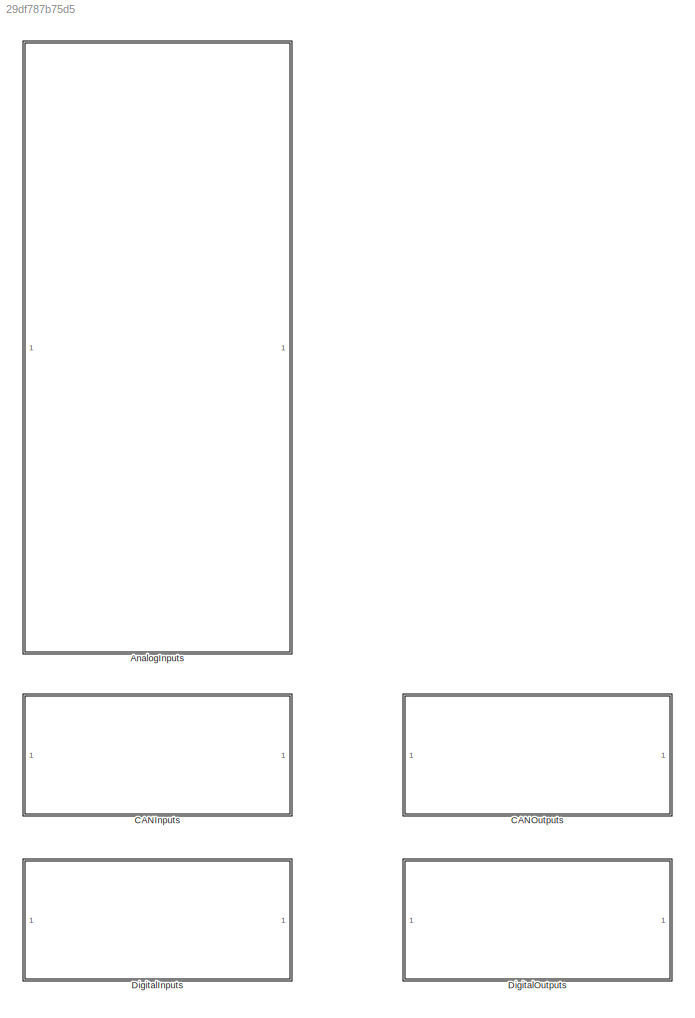
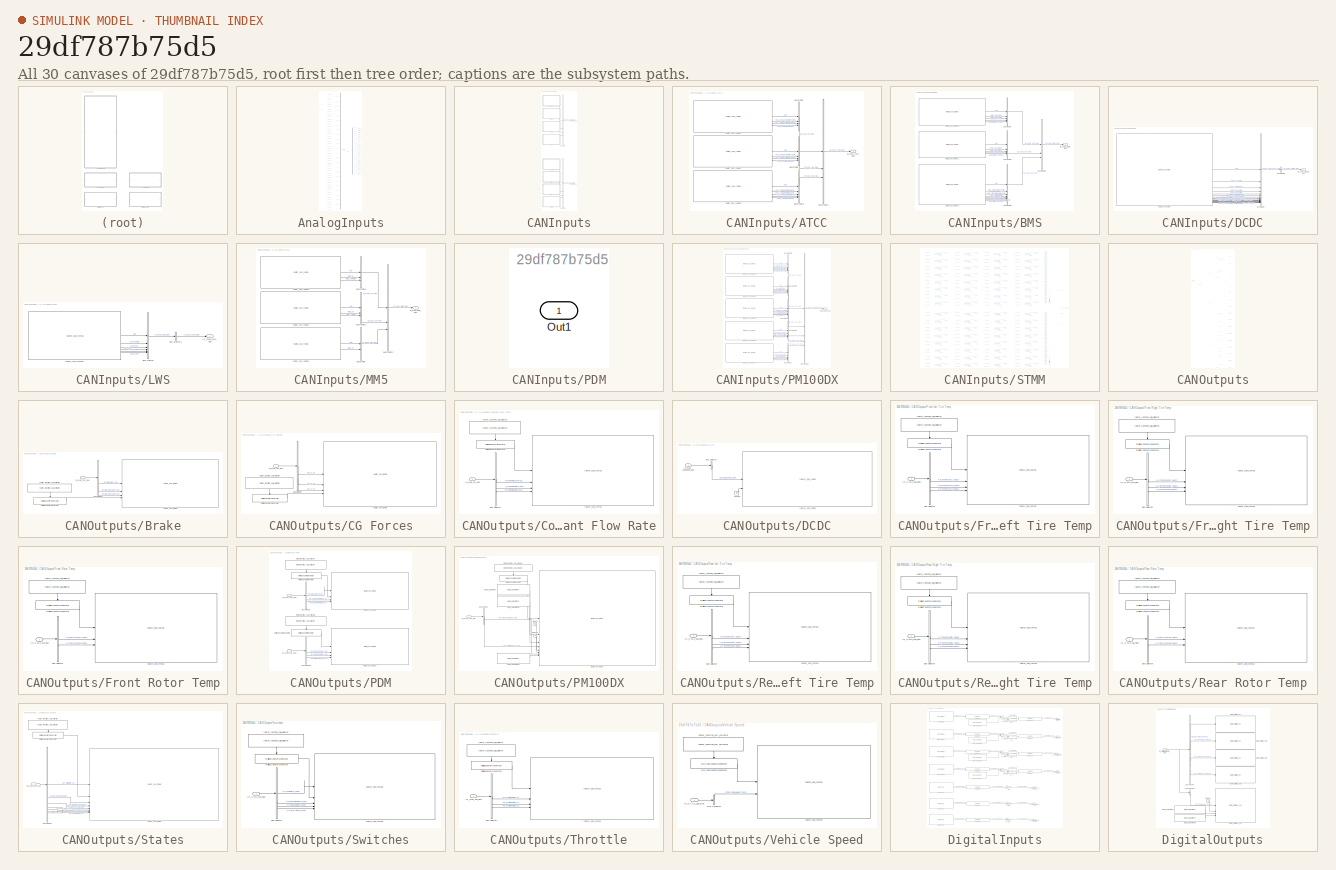
[diagram: thumbnail index - all 30 canvases of the model, root first then tree order]
MODEL slx_29df787b75d5
KIND library
CONFIG AbsTol = auto
CONFIG EnableMultiTasking = off
CONFIG FixedStep = auto
CONFIG MaxStep = auto
CONFIG MinStep = auto
CONFIG RelTol = 1e-3
CONFIG SampleTimeConstraint = Unconstrained
CONFIG SolverName = VariableStepAuto
CONFIG StartTime = 0.0
CONFIG StopTime = 10.0
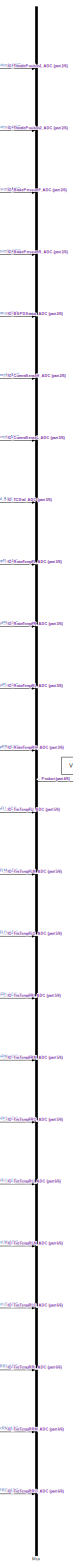
[diagram: AnalogInputs - part 1/6, center side, full height]
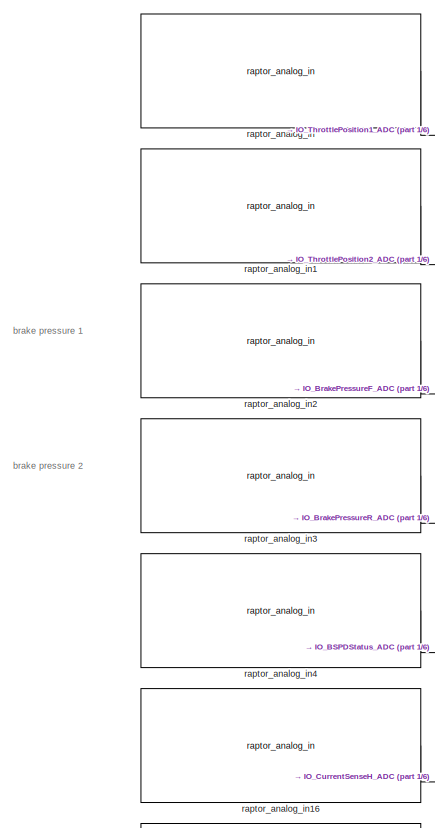
[diagram: AnalogInputs - part 2/6, top left region]
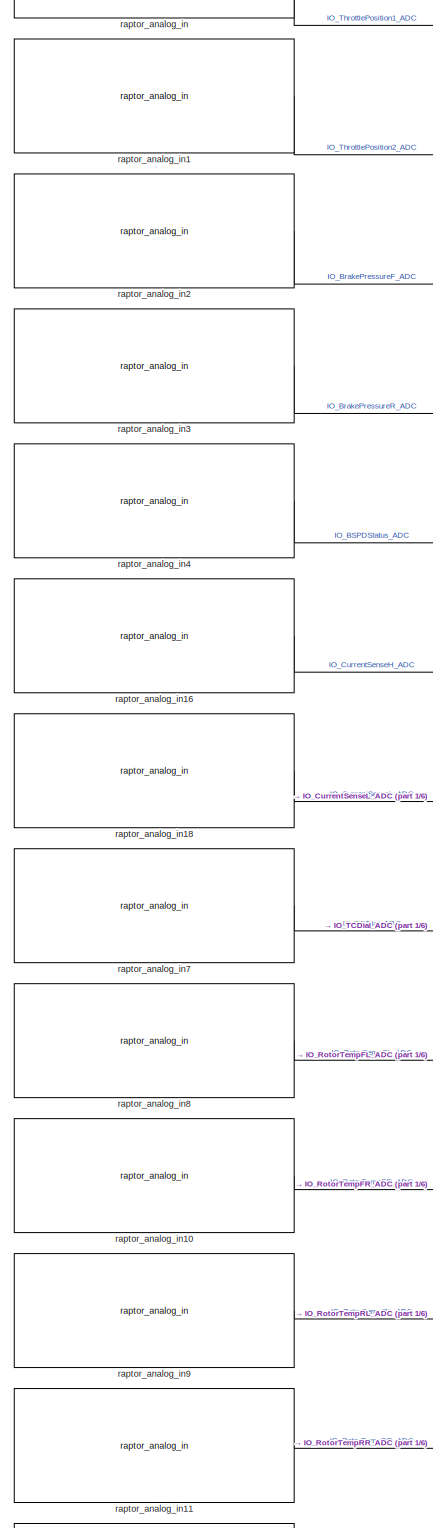
[diagram: AnalogInputs - part 3/6, top left region]
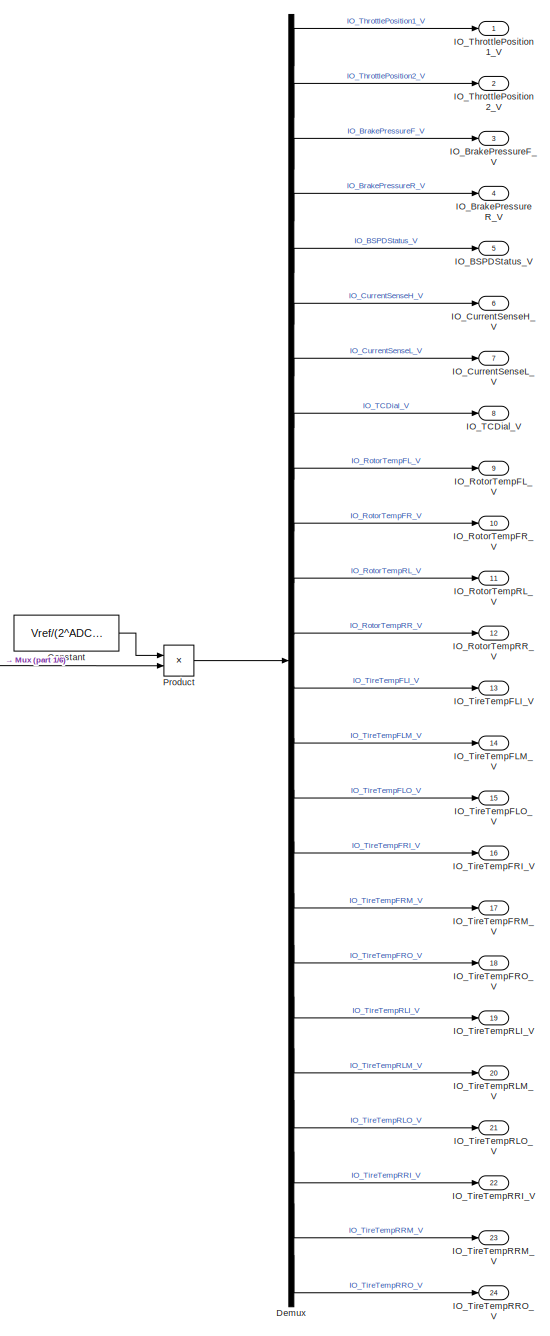
[diagram: AnalogInputs - part 4/6, middle right region]
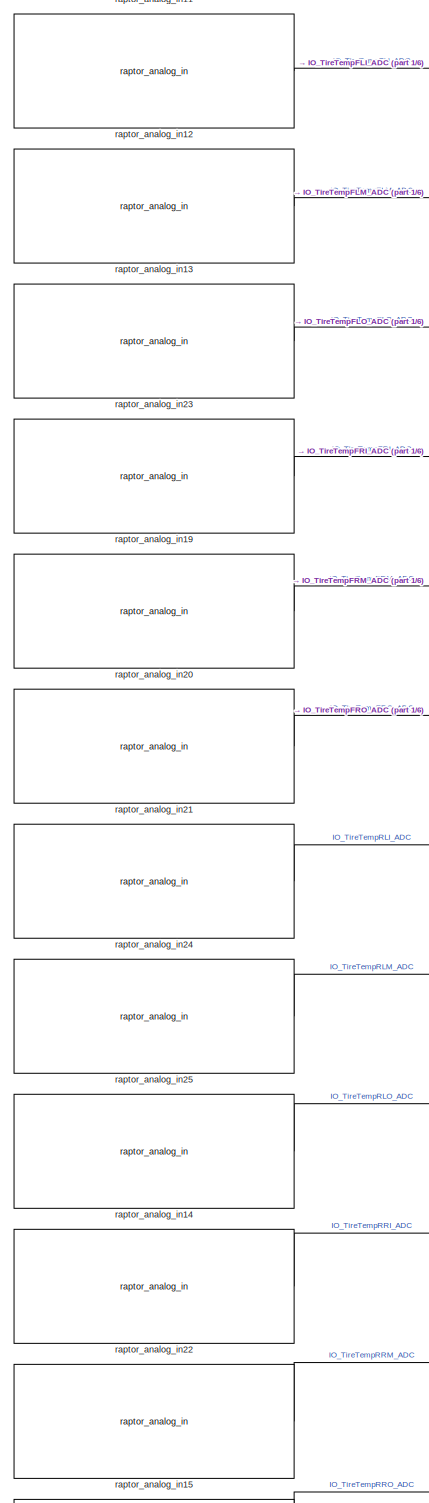
[diagram: AnalogInputs - part 5/6, bottom left region]
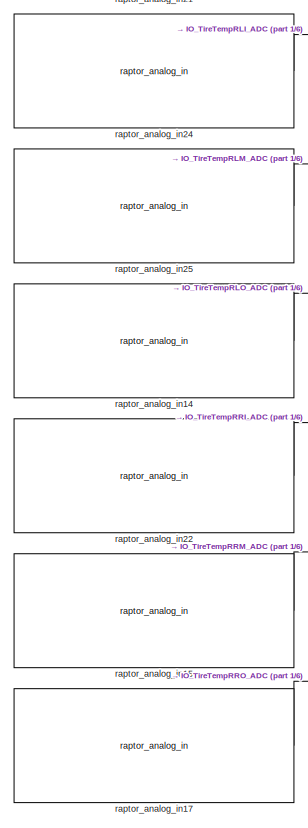
[diagram: AnalogInputs - part 6/6, bottom left region]
BLOCK [SubSystem] AnalogInputs
BLOCK [Constant] AnalogInputs/Constant
  Value = Vref/(2^ADCBits-1)
BLOCK [Demux] AnalogInputs/Demux
  Outputs = 24
BLOCK [Outport] AnalogInputs/IO_BSPDStatus_V
  Port = 5
BLOCK [Outport] AnalogInputs/IO_BrakePressureF_V
  Port = 3
BLOCK [Outport] AnalogInputs/IO_BrakePressureR_V
  Port = 4
BLOCK [Outport] AnalogInputs/IO_CurrentSenseH_V
  Port = 6
BLOCK [Outport] AnalogInputs/IO_CurrentSenseL_V
  Port = 7
BLOCK [Outport] AnalogInputs/IO_RotorTempFL_V
  Port = 9
BLOCK [Outport] AnalogInputs/IO_RotorTempFR_V
  Port = 10
BLOCK [Outport] AnalogInputs/IO_RotorTempRL_V
  Port = 11
BLOCK [Outport] AnalogInputs/IO_RotorTempRR_V
  Port = 12
BLOCK [Outport] AnalogInputs/IO_TCDial_V
  Port = 8
BLOCK [Outport] AnalogInputs/IO_ThrottlePosition1_V
BLOCK [Outport] AnalogInputs/IO_ThrottlePosition2_V
  Port = 2
BLOCK [Outport] AnalogInputs/IO_TireTempFLI_V
  Port = 13
BLOCK [Outport] AnalogInputs/IO_TireTempFLM_V
  Port = 14
BLOCK [Outport] AnalogInputs/IO_TireTempFLO_V
  Port = 15
BLOCK [Outport] AnalogInputs/IO_TireTempFRI_V
  Port = 16
BLOCK [Outport] AnalogInputs/IO_TireTempFRM_V
  Port = 17
BLOCK [Outport] AnalogInputs/IO_TireTempFRO_V
  Port = 18
BLOCK [Outport] AnalogInputs/IO_TireTempRLI_V
  Port = 19
BLOCK [Outport] AnalogInputs/IO_TireTempRLM_V
  Port = 20
BLOCK [Outport] AnalogInputs/IO_TireTempRLO_V
  Port = 21
BLOCK [Outport] AnalogInputs/IO_TireTempRRI_V
  Port = 22
BLOCK [Outport] AnalogInputs/IO_TireTempRRM_V
  Port = 23
BLOCK [Outport] AnalogInputs/IO_TireTempRRO_V
  Port = 24
BLOCK [Mux] AnalogInputs/Mux
  DisplayOption = bar
  Inputs = 24
BLOCK [Product] AnalogInputs/Product
BLOCK [Reference] AnalogInputs/raptor_analog_in  REF=Raptor_lib/Input & Output/raptor_analog_in
  SourceBlock = Raptor_lib/Input & Output/raptor_analog_in
  SourceProductName = Raptor
  SourceType = Analog Input
BLOCK [Reference] AnalogInputs/raptor_analog_in1  REF=Raptor_lib/Input & Output/raptor_analog_in
  SourceBlock = Raptor_lib/Input & Output/raptor_analog_in
  SourceProductName = Raptor
  SourceType = Analog Input
BLOCK [Reference] AnalogInputs/raptor_analog_in10  REF=Raptor_lib/Input & Output/raptor_analog_in
  SourceBlock = Raptor_lib/Input & Output/raptor_analog_in
  SourceProductName = Raptor
  SourceType = Analog Input
BLOCK [Reference] AnalogInputs/raptor_analog_in11  REF=Raptor_lib/Input & Output/raptor_analog_in
  SourceBlock = Raptor_lib/Input & Output/raptor_analog_in
  SourceProductName = Raptor
  SourceType = Analog Input
BLOCK [Reference] AnalogInputs/raptor_analog_in12  REF=Raptor_lib/Input & Output/raptor_analog_in
  SourceBlock = Raptor_lib/Input & Output/raptor_analog_in
  SourceProductName = Raptor
  SourceType = Analog Input
BLOCK [Reference] AnalogInputs/raptor_analog_in13  REF=Raptor_lib/Input & Output/raptor_analog_in
  SourceBlock = Raptor_lib/Input & Output/raptor_analog_in
  SourceProductName = Raptor
  SourceType = Analog Input
BLOCK [Reference] AnalogInputs/raptor_analog_in14  REF=Raptor_lib/Input & Output/raptor_analog_in
  SourceBlock = Raptor_lib/Input & Output/raptor_analog_in
  SourceProductName = Raptor
  SourceType = Analog Input
BLOCK [Reference] AnalogInputs/raptor_analog_in15  REF=Raptor_lib/Input & Output/raptor_analog_in
  SourceBlock = Raptor_lib/Input & Output/raptor_analog_in
  SourceProductName = Raptor
  SourceType = Analog Input
BLOCK [Reference] AnalogInputs/raptor_analog_in16  REF=Raptor_lib/Input & Output/raptor_analog_in
  SourceBlock = Raptor_lib/Input & Output/raptor_analog_in
  SourceProductName = Raptor
  SourceType = Analog Input
BLOCK [Reference] AnalogInputs/raptor_analog_in17  REF=Raptor_lib/Input & Output/raptor_analog_in
  SourceBlock = Raptor_lib/Input & Output/raptor_analog_in
  SourceProductName = Raptor
  SourceType = Analog Input
BLOCK [Reference] AnalogInputs/raptor_analog_in18  REF=Raptor_lib/Input & Output/raptor_analog_in
  SourceBlock = Raptor_lib/Input & Output/raptor_analog_in
  SourceProductName = Raptor
  SourceType = Analog Input
BLOCK [Reference] AnalogInputs/raptor_analog_in19  REF=Raptor_lib/Input & Output/raptor_analog_in
  SourceBlock = Raptor_lib/Input & Output/raptor_analog_in
  SourceProductName = Raptor
  SourceType = Analog Input
BLOCK [Reference] AnalogInputs/raptor_analog_in2  REF=Raptor_lib/Input & Output/raptor_analog_in
  SourceBlock = Raptor_lib/Input & Output/raptor_analog_in
  SourceProductName = Raptor
  SourceType = Analog Input
BLOCK [Reference] AnalogInputs/raptor_analog_in20  REF=Raptor_lib/Input & Output/raptor_analog_in
  SourceBlock = Raptor_lib/Input & Output/raptor_analog_in
  SourceProductName = Raptor
  SourceType = Analog Input
BLOCK [Reference] AnalogInputs/raptor_analog_in21  REF=Raptor_lib/Input & Output/raptor_analog_in
  SourceBlock = Raptor_lib/Input & Output/raptor_analog_in
  SourceProductName = Raptor
  SourceType = Analog Input
BLOCK [Reference] AnalogInputs/raptor_analog_in22  REF=Raptor_lib/Input & Output/raptor_analog_in
  SourceBlock = Raptor_lib/Input & Output/raptor_analog_in
  SourceProductName = Raptor
  SourceType = Analog Input
BLOCK [Reference] AnalogInputs/raptor_analog_in23  REF=Raptor_lib/Input & Output/raptor_analog_in
  SourceBlock = Raptor_lib/Input & Output/raptor_analog_in
  SourceProductName = Raptor
  SourceType = Analog Input
BLOCK [Reference] AnalogInputs/raptor_analog_in24  REF=Raptor_lib/Input & Output/raptor_analog_in
  SourceBlock = Raptor_lib/Input & Output/raptor_analog_in
  SourceProductName = Raptor
  SourceType = Analog Input
BLOCK [Reference] AnalogInputs/raptor_analog_in25  REF=Raptor_lib/Input & Output/raptor_analog_in
  SourceBlock = Raptor_lib/Input & Output/raptor_analog_in
  SourceProductName = Raptor
  SourceType = Analog Input
BLOCK [Reference] AnalogInputs/raptor_analog_in3  REF=Raptor_lib/Input & Output/raptor_analog_in
  SourceBlock = Raptor_lib/Input & Output/raptor_analog_in
  SourceProductName = Raptor
  SourceType = Analog Input
BLOCK [Reference] AnalogInputs/raptor_analog_in4  REF=Raptor_lib/Input & Output/raptor_analog_in
  SourceBlock = Raptor_lib/Input & Output/raptor_analog_in
  SourceProductName = Raptor
  SourceType = Analog Input
BLOCK [Reference] AnalogInputs/raptor_analog_in7  REF=Raptor_lib/Input & Output/raptor_analog_in
  SourceBlock = Raptor_lib/Input & Output/raptor_analog_in
  SourceProductName = Raptor
  SourceType = Analog Input
BLOCK [Reference] AnalogInputs/raptor_analog_in8  REF=Raptor_lib/Input & Output/raptor_analog_in
  SourceBlock = Raptor_lib/Input & Output/raptor_analog_in
  SourceProductName = Raptor
  SourceType = Analog Input
BLOCK [Reference] AnalogInputs/raptor_analog_in9  REF=Raptor_lib/Input & Output/raptor_analog_in
  SourceBlock = Raptor_lib/Input & Output/raptor_analog_in
  SourceProductName = Raptor
  SourceType = Analog Input
BLOCK [SubSystem] CANInputs
BLOCK [SubSystem] CANInputs/ATCC
BLOCK [BusCreator] CANInputs/ATCC/Bus Creator
  DisplayOption = bar
  InheritFromInputs = on
  Inputs = 4
BLOCK [BusCreator] CANInputs/ATCC/Bus Creator1
  DisplayOption = bar
  InheritFromInputs = on
  Inputs = 4
BLOCK [BusCreator] CANInputs/ATCC/Bus Creator2
  DisplayOption = bar
  InheritFromInputs = on
  Inputs = 5
BLOCK [BusCreator] CANInputs/ATCC/Bus Creator3
  DisplayOption = bar
  InheritFromInputs = on
  Inputs = 3
BLOCK [Outport] CANInputs/ATCC/IO_CAN1_ATCC_Bus
BLOCK [Reference] CANInputs/ATCC/raptor_can_rxmsg1  REF=Raptor_lib/CAN/raptor_can_rxmsg
  SourceBlock = Raptor_lib/CAN/raptor_can_rxmsg
  SourceProductName = Raptor
  SourceType = CAN Receive Message
BLOCK [Reference] CANInputs/ATCC/raptor_can_rxmsg2  REF=Raptor_lib/CAN/raptor_can_rxmsg
  SourceBlock = Raptor_lib/CAN/raptor_can_rxmsg
  SourceProductName = Raptor
  SourceType = CAN Receive Message
BLOCK [Reference] CANInputs/ATCC/raptor_can_rxmsg3  REF=Raptor_lib/CAN/raptor_can_rxmsg
  SourceBlock = Raptor_lib/CAN/raptor_can_rxmsg
  SourceProductName = Raptor
  SourceType = CAN Receive Message
BLOCK [SubSystem] CANInputs/BMS
BLOCK [BusCreator] CANInputs/BMS/Bus Creator
  DisplayOption = bar
  InheritFromInputs = on
  Inputs = 5
BLOCK [BusCreator] CANInputs/BMS/Bus Creator1
  DisplayOption = bar
  InheritFromInputs = on
  Inputs = 5
BLOCK [BusCreator] CANInputs/BMS/Bus Creator2
  DisplayOption = bar
  InheritFromInputs = on
  Inputs = 8
BLOCK [BusCreator] CANInputs/BMS/Bus Creator3
  DisplayOption = bar
  InheritFromInputs = on
  Inputs = 3
BLOCK [Outport] CANInputs/BMS/IO_CAN2_BMS_Bus
BLOCK [Reference] CANInputs/BMS/raptor_can_rxmsg1  REF=Raptor_lib/CAN/raptor_can_rxmsg
  SourceBlock = Raptor_lib/CAN/raptor_can_rxmsg
  SourceProductName = Raptor
  SourceType = CAN Receive Message
BLOCK [Reference] CANInputs/BMS/raptor_can_rxmsg2  REF=Raptor_lib/CAN/raptor_can_rxmsg
  SourceBlock = Raptor_lib/CAN/raptor_can_rxmsg
  SourceProductName = Raptor
  SourceType = CAN Receive Message
BLOCK [Reference] CANInputs/BMS/raptor_can_rxmsg3  REF=Raptor_lib/CAN/raptor_can_rxmsg
  SourceBlock = Raptor_lib/CAN/raptor_can_rxmsg
  SourceProductName = Raptor
  SourceType = CAN Receive Message
BLOCK [BusCreator] CANInputs/Bus Creator
  DisplayOption = bar
  InheritFromInputs = on
  Inputs = 4
BLOCK [BusCreator] CANInputs/Bus Creator1
  DisplayOption = bar
  InheritFromInputs = on
  Inputs = 4
BLOCK [SubSystem] CANInputs/DCDC
BLOCK [BusCreator] CANInputs/DCDC/Bus Creator
  DisplayOption = bar
  InheritFromInputs = on
  Inputs = 19
BLOCK [BusCreator] CANInputs/DCDC/Bus Creator1
  DisplayOption = bar
  InheritFromInputs = on
  Inputs = 1
BLOCK [Outport] CANInputs/DCDC/IO_CAN1_DCDC_Bus
BLOCK [Reference] CANInputs/DCDC/raptor_can_rxmsg  REF=Raptor_lib/CAN/raptor_can_rxmsg
  SourceBlock = Raptor_lib/CAN/raptor_can_rxmsg
  SourceProductName = Raptor
  SourceType = CAN Receive Message
BLOCK [Outport] CANInputs/IO_CAN1_Bus
BLOCK [Outport] CANInputs/IO_CAN2_Bus
  Port = 2
BLOCK [SubSystem] CANInputs/LWS
BLOCK [BusCreator] CANInputs/LWS/Bus Creator
  DisplayOption = bar
  InheritFromInputs = on
  Inputs = 6
BLOCK [BusCreator] CANInputs/LWS/Bus Creator1
  DisplayOption = bar
  InheritFromInputs = on
  Inputs = 1
BLOCK [Outport] CANInputs/LWS/IO_CAN1_LWS_Bus
BLOCK [Reference] CANInputs/LWS/raptor_can_rxmsg2  REF=Raptor_lib/CAN/raptor_can_rxmsg
  SourceBlock = Raptor_lib/CAN/raptor_can_rxmsg
  SourceProductName = Raptor
  SourceType = CAN Receive Message
BLOCK [SubSystem] CANInputs/MM5
BLOCK [BusCreator] CANInputs/MM5/Bus Creator
  DisplayOption = bar
  InheritFromInputs = on
  Inputs = 2
BLOCK [BusCreator] CANInputs/MM5/Bus Creator1
  DisplayOption = bar
  InheritFromInputs = on
  Inputs = 3
BLOCK [BusCreator] CANInputs/MM5/Bus Creator2
  DisplayOption = bar
  InheritFromInputs = on
  Inputs = 3
BLOCK [BusCreator] CANInputs/MM5/Bus Creator3
  DisplayOption = bar
  InheritFromInputs = on
  Inputs = 3
BLOCK [Outport] CANInputs/MM5/IO_CAN2_MM5_Bus
BLOCK [Reference] CANInputs/MM5/raptor_can_rxmsg1  REF=Raptor_lib/CAN/raptor_can_rxmsg
  SourceBlock = Raptor_lib/CAN/raptor_can_rxmsg
  SourceProductName = Raptor
  SourceType = CAN Receive Message
BLOCK [Reference] CANInputs/MM5/raptor_can_rxmsg2  REF=Raptor_lib/CAN/raptor_can_rxmsg
  SourceBlock = Raptor_lib/CAN/raptor_can_rxmsg
  SourceProductName = Raptor
  SourceType = CAN Receive Message
BLOCK [Reference] CANInputs/MM5/raptor_can_rxmsg4  REF=Raptor_lib/CAN/raptor_can_rxmsg
  SourceBlock = Raptor_lib/CAN/raptor_can_rxmsg
  SourceProductName = Raptor
  SourceType = CAN Receive Message
BLOCK [SubSystem] CANInputs/PDM
  Commented = on
BLOCK [Outport] CANInputs/PDM/Out1
BLOCK [SubSystem] CANInputs/PM100DX
BLOCK [BusCreator] CANInputs/PM100DX/Bus Creator
  DisplayOption = bar
  InheritFromInputs = on
  Inputs = 5
BLOCK [BusCreator] CANInputs/PM100DX/Bus Creator1
  DisplayOption = bar
  InheritFromInputs = on
  Inputs = 5
BLOCK [BusCreator] CANInputs/PM100DX/Bus Creator2
  DisplayOption = bar
  InheritFromInputs = on
  Inputs = 5
BLOCK [BusCreator] CANInputs/PM100DX/Bus Creator3
  DisplayOption = bar
  InheritFromInputs = on
  Inputs = 5
BLOCK [BusCreator] CANInputs/PM100DX/Bus Creator4
  DisplayOption = bar
  InheritFromInputs = on
  Inputs = 5
BLOCK [BusCreator] CANInputs/PM100DX/Bus Creator5
  DisplayOption = bar
  InheritFromInputs = on
  Inputs = 5
BLOCK [Outport] CANInputs/PM100DX/IO_CAN1_PM100DX_Bus
BLOCK [Reference] CANInputs/PM100DX/raptor_can_rxmsg  REF=Raptor_lib/CAN/raptor_can_rxmsg
  SourceBlock = Raptor_lib/CAN/raptor_can_rxmsg
  SourceProductName = Raptor
  SourceType = CAN Receive Message
BLOCK [Reference] CANInputs/PM100DX/raptor_can_rxmsg1  REF=Raptor_lib/CAN/raptor_can_rxmsg
  SourceBlock = Raptor_lib/CAN/raptor_can_rxmsg
  SourceProductName = Raptor
  SourceType = CAN Receive Message
BLOCK [Reference] CANInputs/PM100DX/raptor_can_rxmsg2  REF=Raptor_lib/CAN/raptor_can_rxmsg
  SourceBlock = Raptor_lib/CAN/raptor_can_rxmsg
  SourceProductName = Raptor
  SourceType = CAN Receive Message
BLOCK [Reference] CANInputs/PM100DX/raptor_can_rxmsg3  REF=Raptor_lib/CAN/raptor_can_rxmsg
  SourceBlock = Raptor_lib/CAN/raptor_can_rxmsg
  SourceProductName = Raptor
  SourceType = CAN Receive Message
BLOCK [Reference] CANInputs/PM100DX/raptor_can_rxmsg4  REF=Raptor_lib/CAN/raptor_can_rxmsg
  SourceBlock = Raptor_lib/CAN/raptor_can_rxmsg
  SourceProductName = Raptor
  SourceType = CAN Receive Message
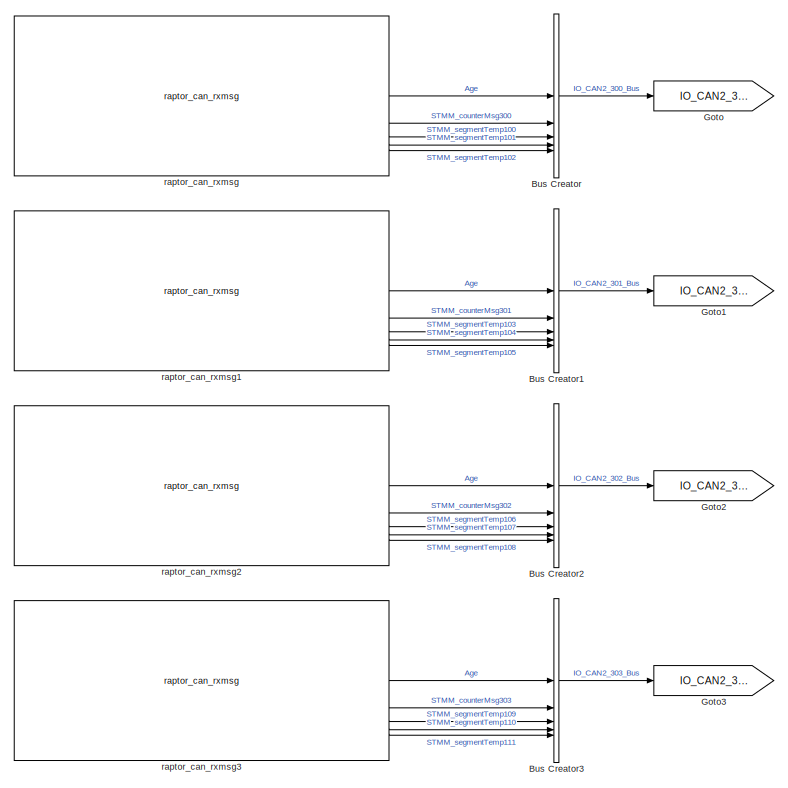
[diagram: CANInputs/STMM - part 1/19, top left region]
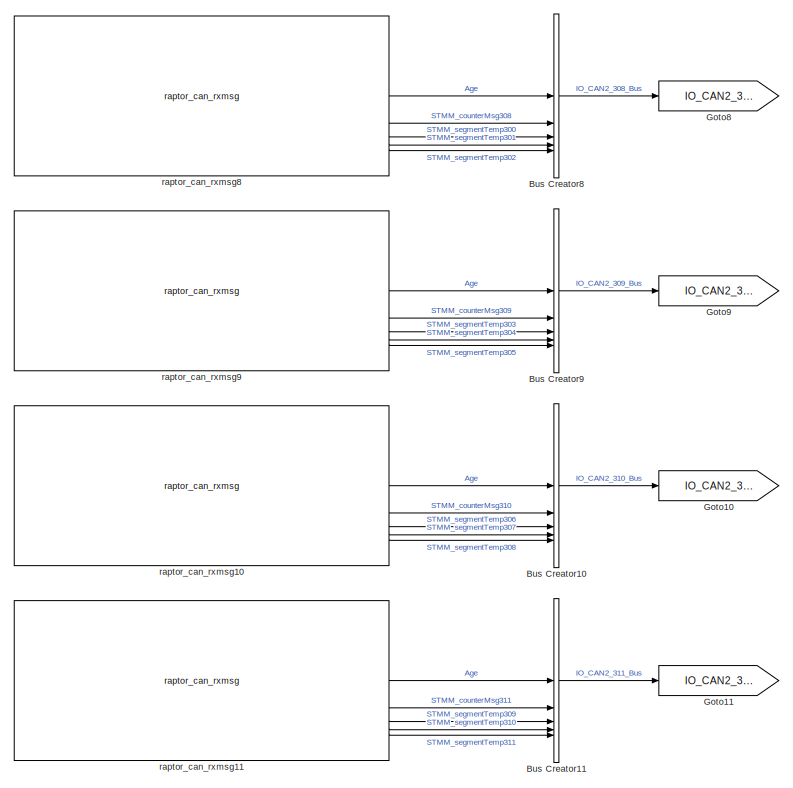
[diagram: CANInputs/STMM - part 2/19, top left region]
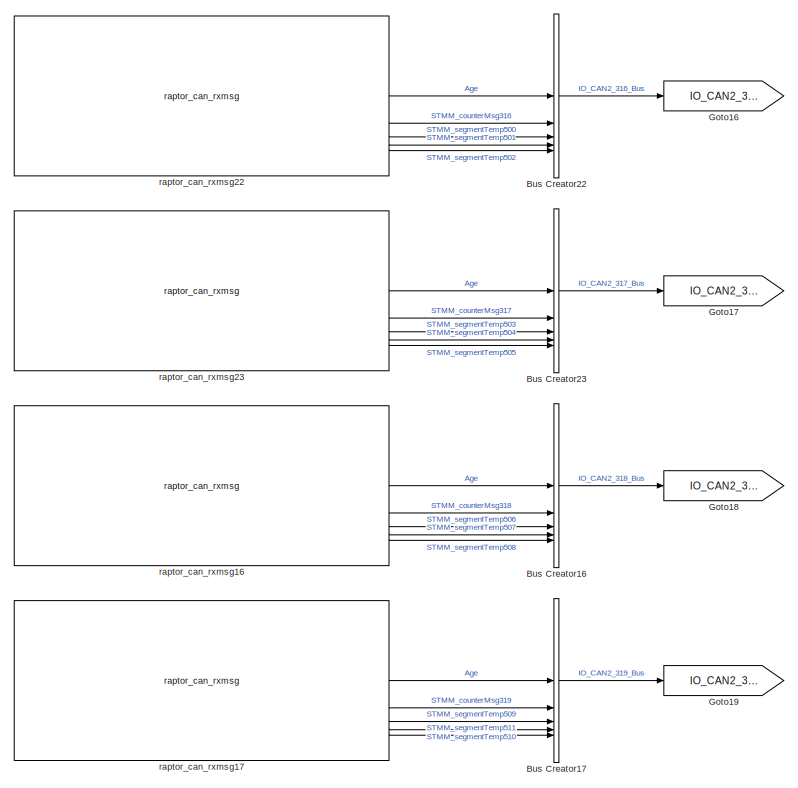
[diagram: CANInputs/STMM - part 3/19, top center region]
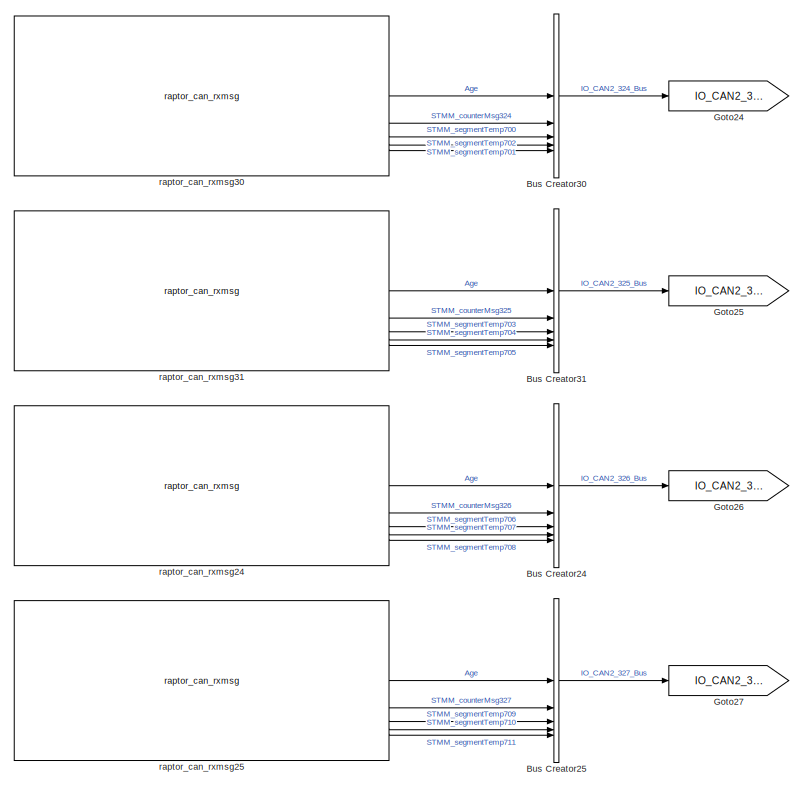
[diagram: CANInputs/STMM - part 4/19, top right region]
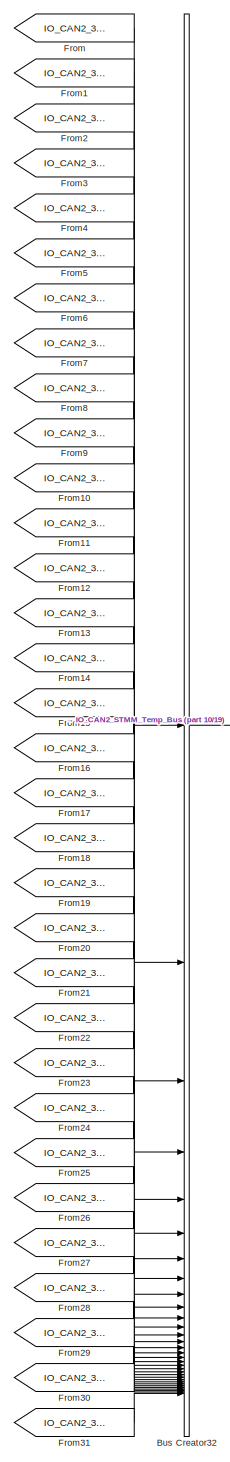
[diagram: CANInputs/STMM - part 5/19, top right region]
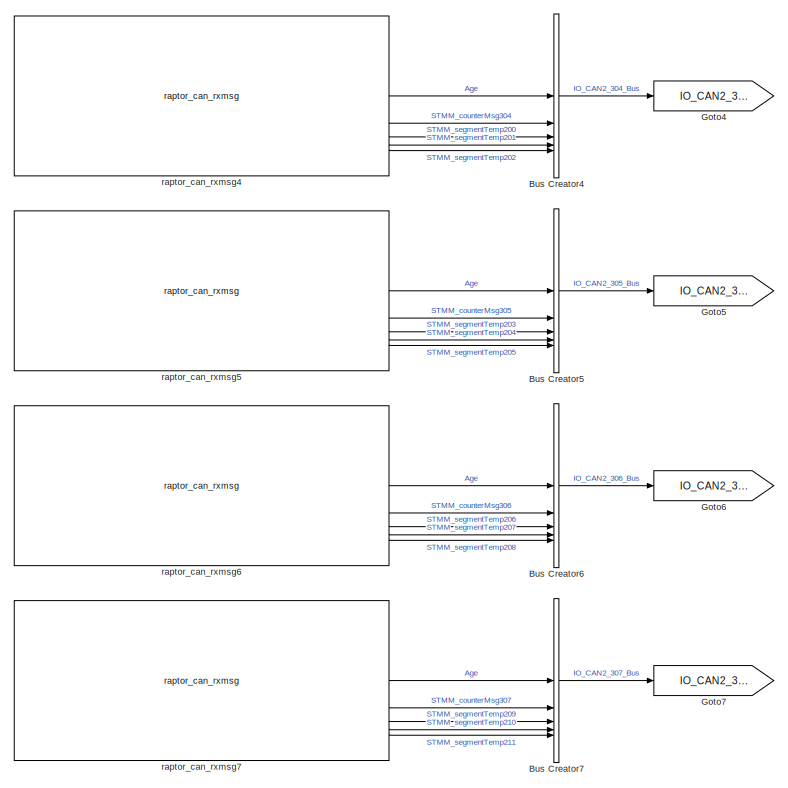
[diagram: CANInputs/STMM - part 6/19, middle left region]
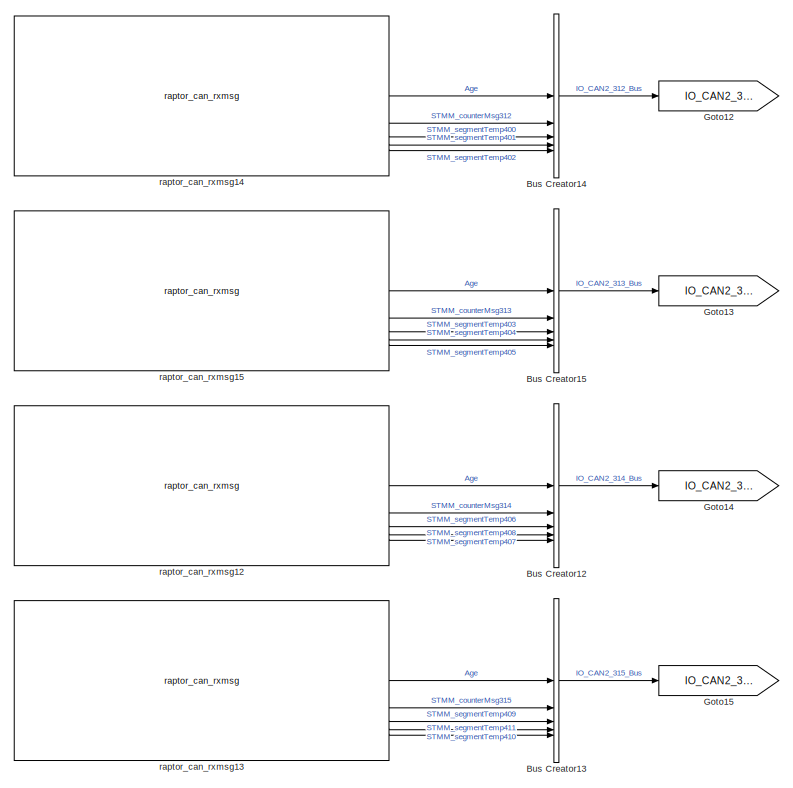
[diagram: CANInputs/STMM - part 7/19, middle left region]
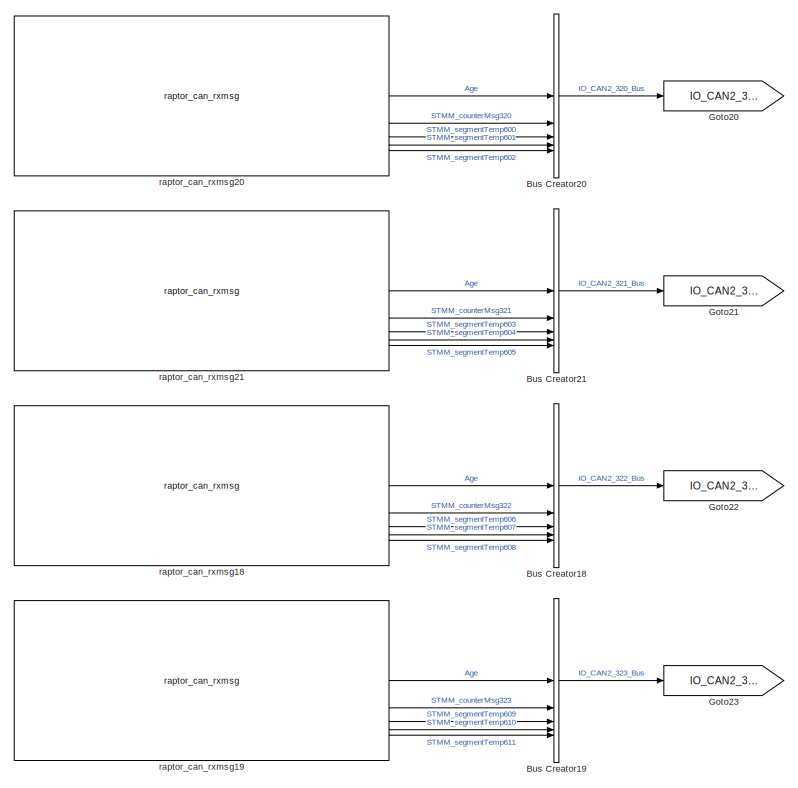
[diagram: CANInputs/STMM - part 8/19, central region]
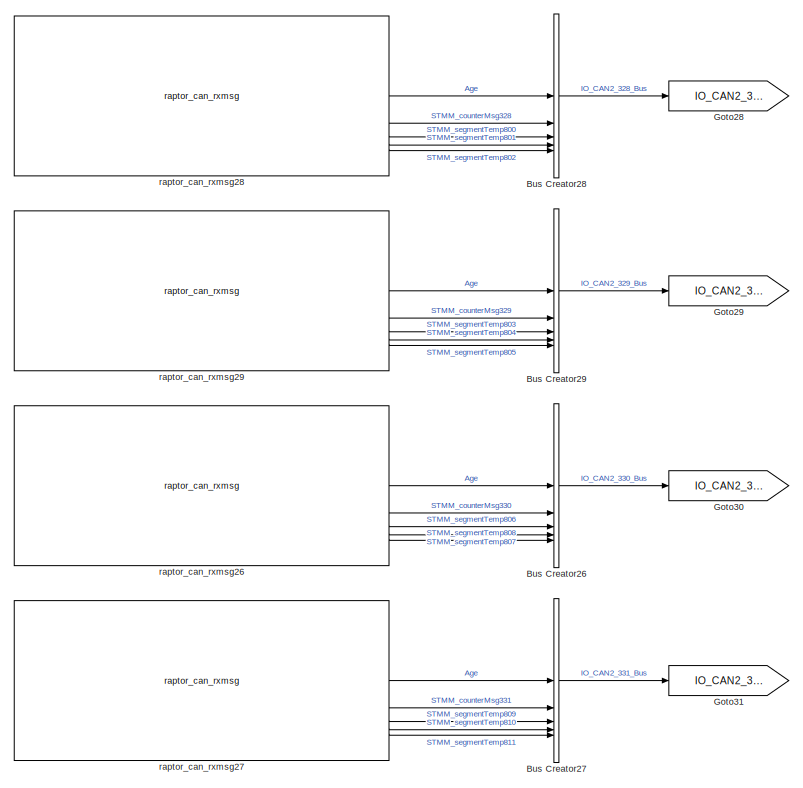
[diagram: CANInputs/STMM - part 9/19, middle right region]
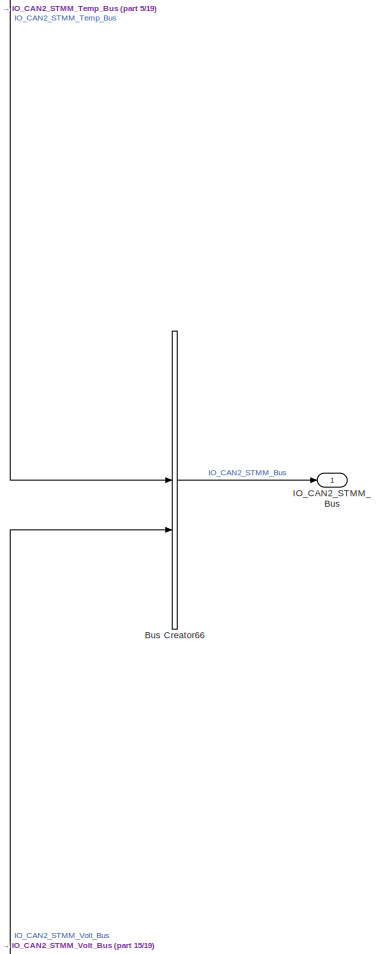
[diagram: CANInputs/STMM - part 10/19, middle right region]
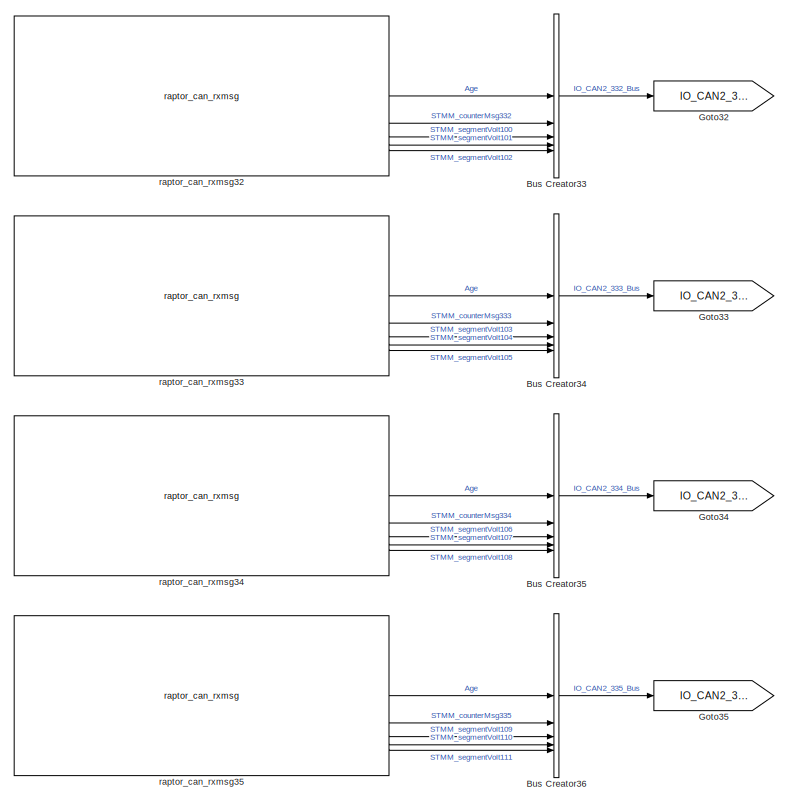
[diagram: CANInputs/STMM - part 11/19, middle left region]
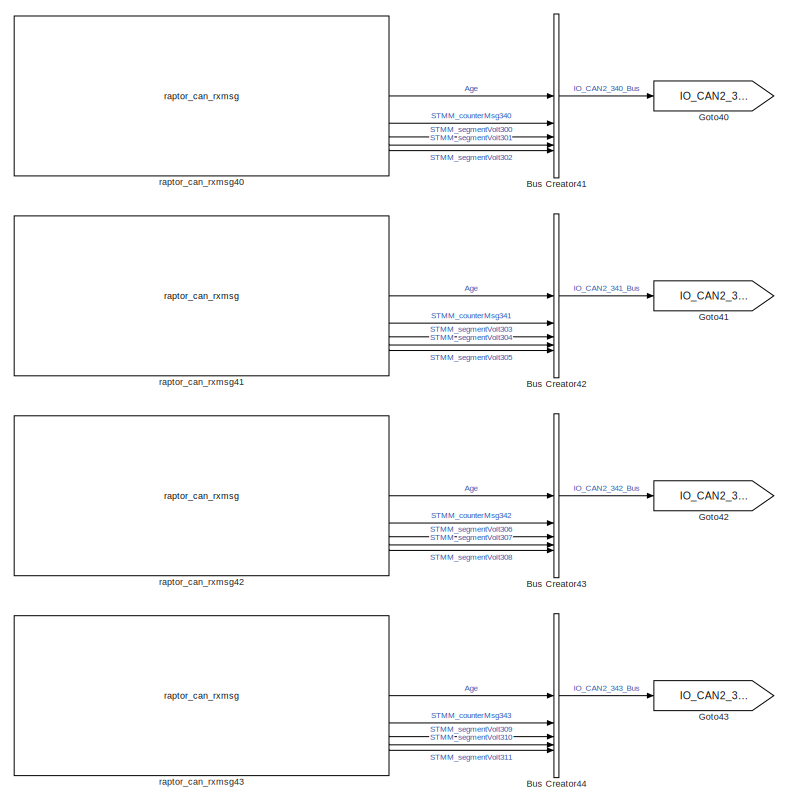
[diagram: CANInputs/STMM - part 12/19, middle left region]
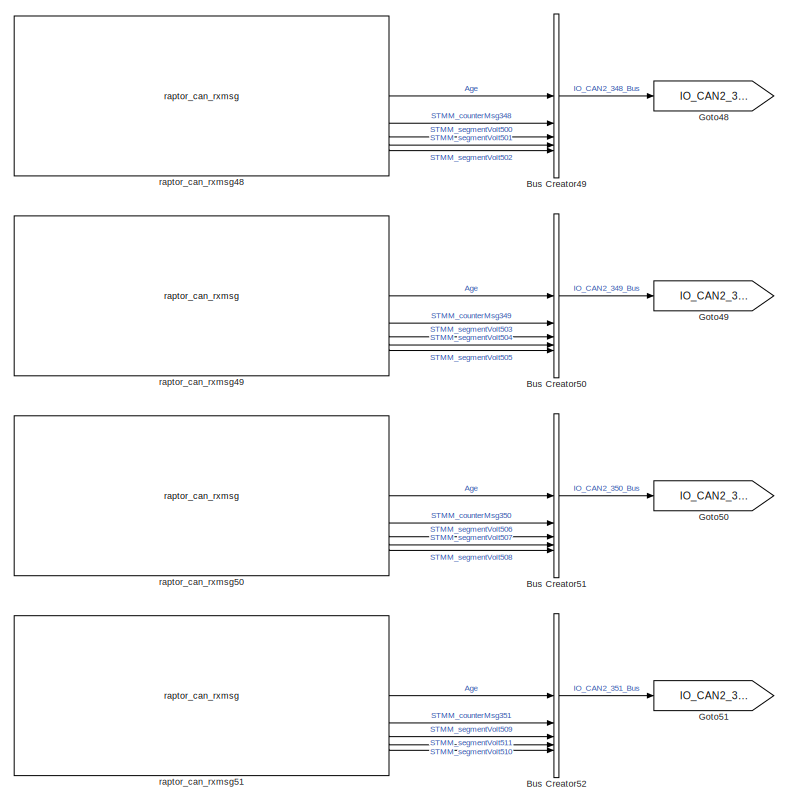
[diagram: CANInputs/STMM - part 13/19, central region]
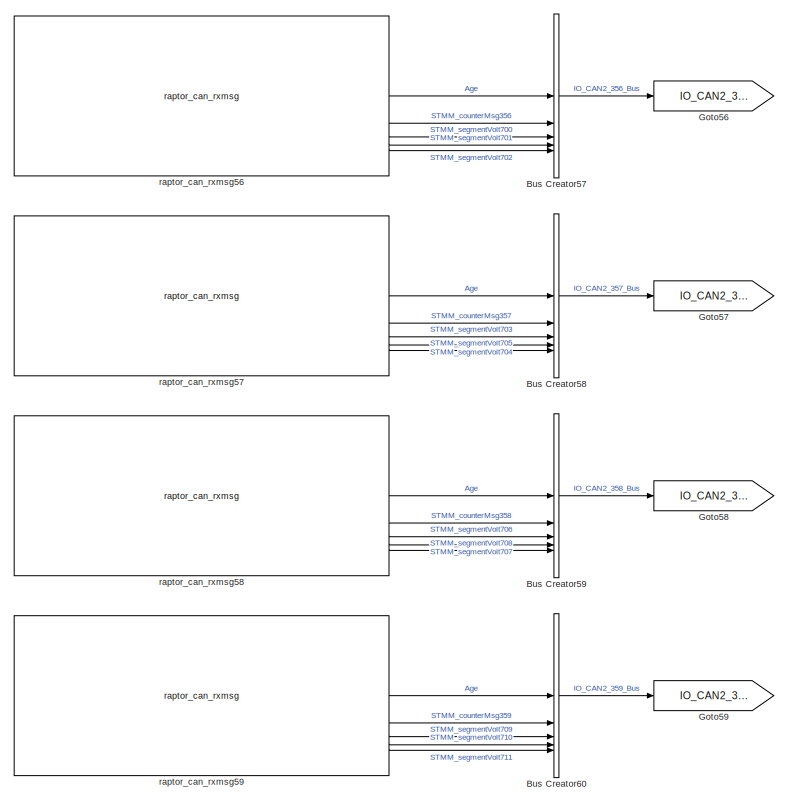
[diagram: CANInputs/STMM - part 14/19, middle right region]
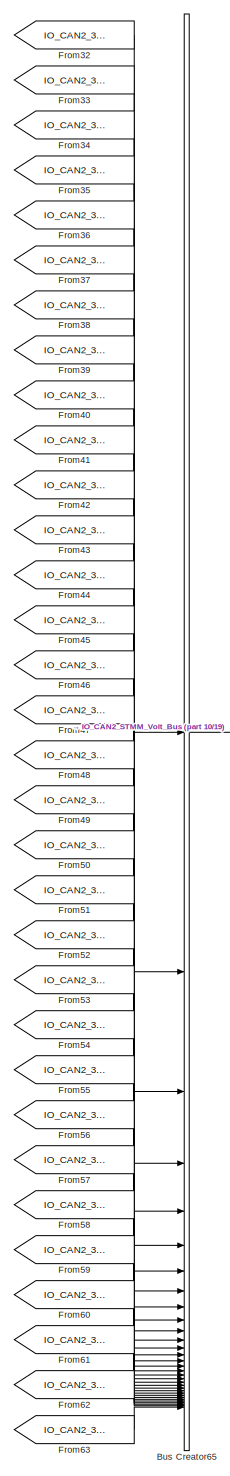
[diagram: CANInputs/STMM - part 15/19, bottom right region]
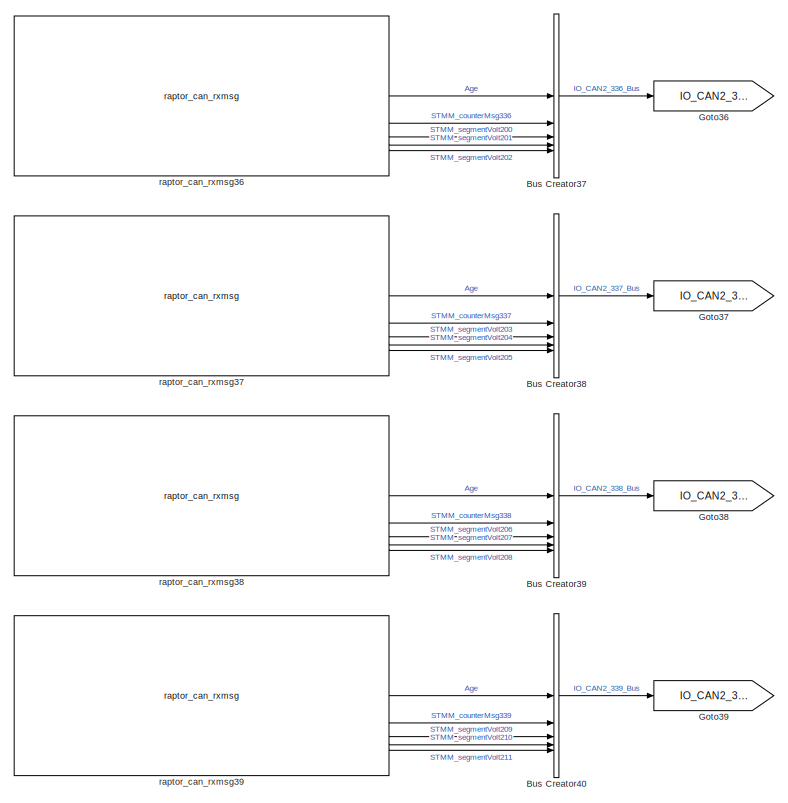
[diagram: CANInputs/STMM - part 16/19, bottom left region]
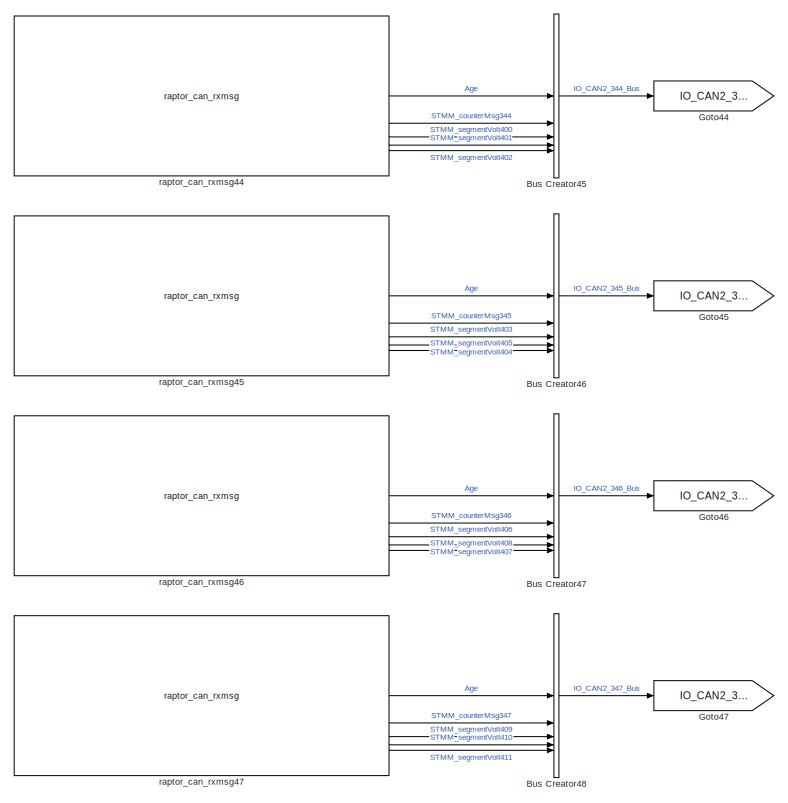
[diagram: CANInputs/STMM - part 17/19, bottom left region]
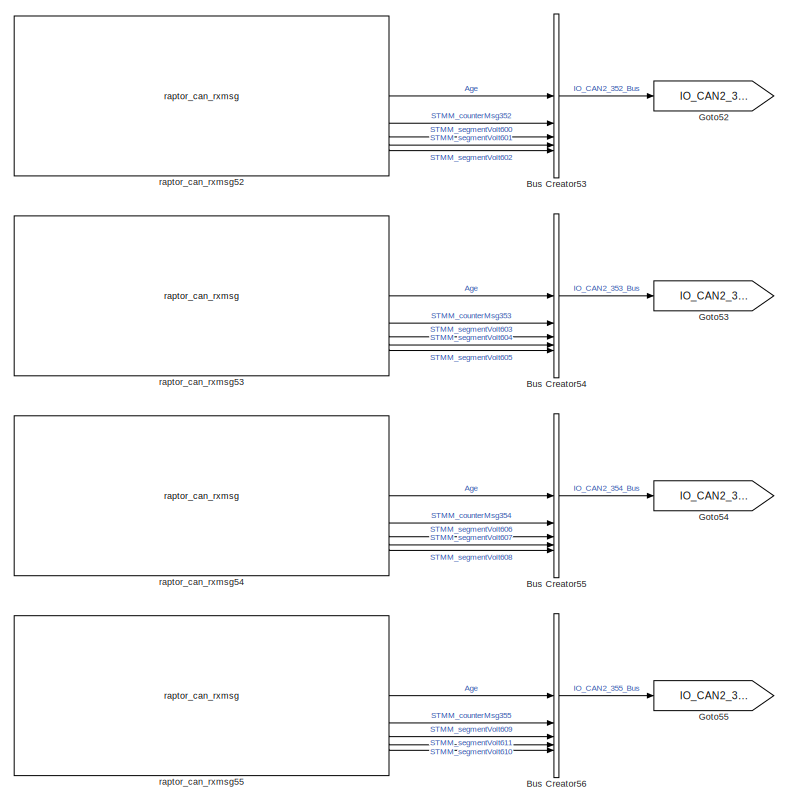
[diagram: CANInputs/STMM - part 18/19, bottom center region]
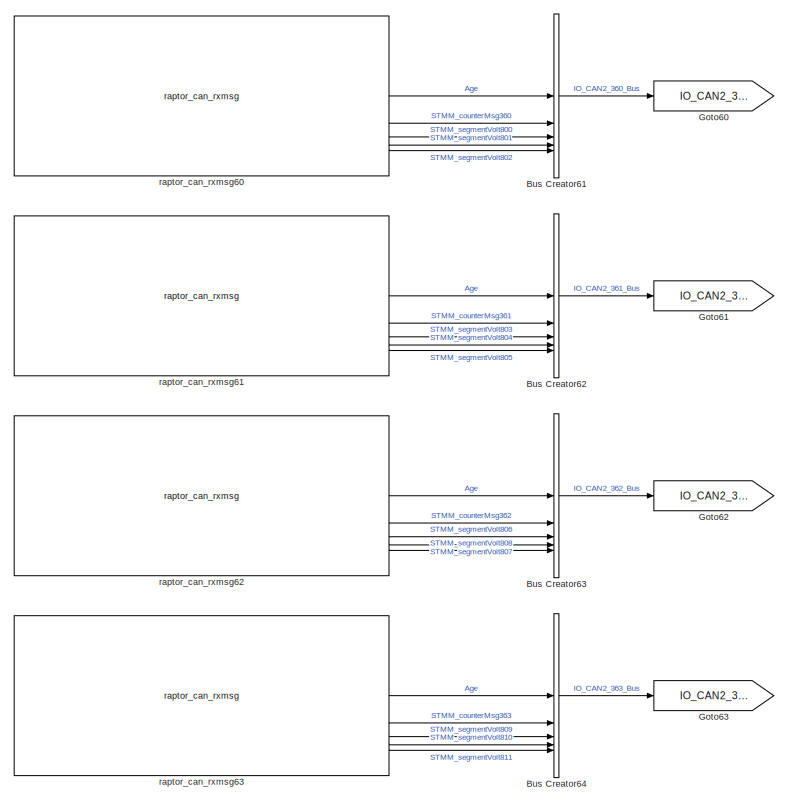
[diagram: CANInputs/STMM - part 19/19, bottom right region]
BLOCK [SubSystem] CANInputs/STMM
BLOCK [BusCreator] CANInputs/STMM/Bus Creator
  DisplayOption = bar
  InheritFromInputs = on
  Inputs = 5
BLOCK [BusCreator] CANInputs/STMM/Bus Creator1
  DisplayOption = bar
  InheritFromInputs = on
  Inputs = 5
BLOCK [BusCreator] CANInputs/STMM/Bus Creator10
  DisplayOption = bar
  InheritFromInputs = on
  Inputs = 5
BLOCK [BusCreator] CANInputs/STMM/Bus Creator11
  DisplayOption = bar
  InheritFromInputs = on
  Inputs = 5
BLOCK [BusCreator] CANInputs/STMM/Bus Creator12
  DisplayOption = bar
  InheritFromInputs = on
  Inputs = 5
BLOCK [BusCreator] CANInputs/STMM/Bus Creator13
  DisplayOption = bar
  InheritFromInputs = on
  Inputs = 5
BLOCK [BusCreator] CANInputs/STMM/Bus Creator14
  DisplayOption = bar
  InheritFromInputs = on
  Inputs = 5
BLOCK [BusCreator] CANInputs/STMM/Bus Creator15
  DisplayOption = bar
  InheritFromInputs = on
  Inputs = 5
BLOCK [BusCreator] CANInputs/STMM/Bus Creator16
  DisplayOption = bar
  InheritFromInputs = on
  Inputs = 5
BLOCK [BusCreator] CANInputs/STMM/Bus Creator17
  DisplayOption = bar
  InheritFromInputs = on
  Inputs = 5
BLOCK [BusCreator] CANInputs/STMM/Bus Creator18
  DisplayOption = bar
  InheritFromInputs = on
  Inputs = 5
BLOCK [BusCreator] CANInputs/STMM/Bus Creator19
  DisplayOption = bar
  InheritFromInputs = on
  Inputs = 5
BLOCK [BusCreator] CANInputs/STMM/Bus Creator2
  DisplayOption = bar
  InheritFromInputs = on
  Inputs = 5
BLOCK [BusCreator] CANInputs/STMM/Bus Creator20
  DisplayOption = bar
  InheritFromInputs = on
  Inputs = 5
BLOCK [BusCreator] CANInputs/STMM/Bus Creator21
  DisplayOption = bar
  InheritFromInputs = on
  Inputs = 5
BLOCK [BusCreator] CANInputs/STMM/Bus Creator22
  DisplayOption = bar
  InheritFromInputs = on
  Inputs = 5
BLOCK [BusCreator] CANInputs/STMM/Bus Creator23
  DisplayOption = bar
  InheritFromInputs = on
  Inputs = 5
BLOCK [BusCreator] CANInputs/STMM/Bus Creator24
  DisplayOption = bar
  InheritFromInputs = on
  Inputs = 5
BLOCK [BusCreator] CANInputs/STMM/Bus Creator25
  DisplayOption = bar
  InheritFromInputs = on
  Inputs = 5
BLOCK [BusCreator] CANInputs/STMM/Bus Creator26
  DisplayOption = bar
  InheritFromInputs = on
  Inputs = 5
BLOCK [BusCreator] CANInputs/STMM/Bus Creator27
  DisplayOption = bar
  InheritFromInputs = on
  Inputs = 5
BLOCK [BusCreator] CANInputs/STMM/Bus Creator28
  DisplayOption = bar
  InheritFromInputs = on
  Inputs = 5
BLOCK [BusCreator] CANInputs/STMM/Bus Creator29
  DisplayOption = bar
  InheritFromInputs = on
  Inputs = 5
BLOCK [BusCreator] CANInputs/STMM/Bus Creator3
  DisplayOption = bar
  InheritFromInputs = on
  Inputs = 5
BLOCK [BusCreator] CANInputs/STMM/Bus Creator30
  DisplayOption = bar
  InheritFromInputs = on
  Inputs = 5
BLOCK [BusCreator] CANInputs/STMM/Bus Creator31
  DisplayOption = bar
  InheritFromInputs = on
  Inputs = 5
BLOCK [BusCreator] CANInputs/STMM/Bus Creator32
  DisplayOption = bar
  InheritFromInputs = on
  Inputs = 32
BLOCK [BusCreator] CANInputs/STMM/Bus Creator33
  DisplayOption = bar
  InheritFromInputs = on
  Inputs = 5
BLOCK [BusCreator] CANInputs/STMM/Bus Creator34
  DisplayOption = bar
  InheritFromInputs = on
  Inputs = 5
BLOCK [BusCreator] CANInputs/STMM/Bus Creator35
  DisplayOption = bar
  InheritFromInputs = on
  Inputs = 5
BLOCK [BusCreator] CANInputs/STMM/Bus Creator36
  DisplayOption = bar
  InheritFromInputs = on
  Inputs = 5
BLOCK [BusCreator] CANInputs/STMM/Bus Creator37
  DisplayOption = bar
  InheritFromInputs = on
  Inputs = 5
BLOCK [BusCreator] CANInputs/STMM/Bus Creator38
  DisplayOption = bar
  InheritFromInputs = on
  Inputs = 5
BLOCK [BusCreator] CANInputs/STMM/Bus Creator39
  DisplayOption = bar
  InheritFromInputs = on
  Inputs = 5
BLOCK [BusCreator] CANInputs/STMM/Bus Creator4
  DisplayOption = bar
  InheritFromInputs = on
  Inputs = 5
BLOCK [BusCreator] CANInputs/STMM/Bus Creator40
  DisplayOption = bar
  InheritFromInputs = on
  Inputs = 5
BLOCK [BusCreator] CANInputs/STMM/Bus Creator41
  DisplayOption = bar
  InheritFromInputs = on
  Inputs = 5
BLOCK [BusCreator] CANInputs/STMM/Bus Creator42
  DisplayOption = bar
  InheritFromInputs = on
  Inputs = 5
BLOCK [BusCreator] CANInputs/STMM/Bus Creator43
  DisplayOption = bar
  InheritFromInputs = on
  Inputs = 5
BLOCK [BusCreator] CANInputs/STMM/Bus Creator44
  DisplayOption = bar
  InheritFromInputs = on
  Inputs = 5
BLOCK [BusCreator] CANInputs/STMM/Bus Creator45
  DisplayOption = bar
  InheritFromInputs = on
  Inputs = 5
BLOCK [BusCreator] CANInputs/STMM/Bus Creator46
  DisplayOption = bar
  InheritFromInputs = on
  Inputs = 5
BLOCK [BusCreator] CANInputs/STMM/Bus Creator47
  DisplayOption = bar
  InheritFromInputs = on
  Inputs = 5
BLOCK [BusCreator] CANInputs/STMM/Bus Creator48
  DisplayOption = bar
  InheritFromInputs = on
  Inputs = 5
BLOCK [BusCreator] CANInputs/STMM/Bus Creator49
  DisplayOption = bar
  InheritFromInputs = on
  Inputs = 5
BLOCK [BusCreator] CANInputs/STMM/Bus Creator5
  DisplayOption = bar
  InheritFromInputs = on
  Inputs = 5
BLOCK [BusCreator] CANInputs/STMM/Bus Creator50
  DisplayOption = bar
  InheritFromInputs = on
  Inputs = 5
BLOCK [BusCreator] CANInputs/STMM/Bus Creator51
  DisplayOption = bar
  InheritFromInputs = on
  Inputs = 5
BLOCK [BusCreator] CANInputs/STMM/Bus Creator52
  DisplayOption = bar
  InheritFromInputs = on
  Inputs = 5
BLOCK [BusCreator] CANInputs/STMM/Bus Creator53
  DisplayOption = bar
  InheritFromInputs = on
  Inputs = 5
BLOCK [BusCreator] CANInputs/STMM/Bus Creator54
  DisplayOption = bar
  InheritFromInputs = on
  Inputs = 5
BLOCK [BusCreator] CANInputs/STMM/Bus Creator55
  DisplayOption = bar
  InheritFromInputs = on
  Inputs = 5
BLOCK [BusCreator] CANInputs/STMM/Bus Creator56
  DisplayOption = bar
  InheritFromInputs = on
  Inputs = 5
BLOCK [BusCreator] CANInputs/STMM/Bus Creator57
  DisplayOption = bar
  InheritFromInputs = on
  Inputs = 5
BLOCK [BusCreator] CANInputs/STMM/Bus Creator58
  DisplayOption = bar
  InheritFromInputs = on
  Inputs = 5
BLOCK [BusCreator] CANInputs/STMM/Bus Creator59
  DisplayOption = bar
  InheritFromInputs = on
  Inputs = 5
BLOCK [BusCreator] CANInputs/STMM/Bus Creator6
  DisplayOption = bar
  InheritFromInputs = on
  Inputs = 5
BLOCK [BusCreator] CANInputs/STMM/Bus Creator60
  DisplayOption = bar
  InheritFromInputs = on
  Inputs = 5
BLOCK [BusCreator] CANInputs/STMM/Bus Creator61
  DisplayOption = bar
  InheritFromInputs = on
  Inputs = 5
BLOCK [BusCreator] CANInputs/STMM/Bus Creator62
  DisplayOption = bar
  InheritFromInputs = on
  Inputs = 5
BLOCK [BusCreator] CANInputs/STMM/Bus Creator63
  DisplayOption = bar
  InheritFromInputs = on
  Inputs = 5
BLOCK [BusCreator] CANInputs/STMM/Bus Creator64
  DisplayOption = bar
  InheritFromInputs = on
  Inputs = 5
BLOCK [BusCreator] CANInputs/STMM/Bus Creator65
  DisplayOption = bar
  InheritFromInputs = on
  Inputs = 32
BLOCK [BusCreator] CANInputs/STMM/Bus Creator66
  DisplayOption = bar
  InheritFromInputs = on
  Inputs = 2
BLOCK [BusCreator] CANInputs/STMM/Bus Creator7
  DisplayOption = bar
  InheritFromInputs = on
  Inputs = 5
BLOCK [BusCreator] CANInputs/STMM/Bus Creator8
  DisplayOption = bar
  InheritFromInputs = on
  Inputs = 5
BLOCK [BusCreator] CANInputs/STMM/Bus Creator9
  DisplayOption = bar
  InheritFromInputs = on
  Inputs = 5
BLOCK [From] CANInputs/STMM/From
  GotoTag = IO_CAN2_300_Bus
BLOCK [From] CANInputs/STMM/From1
  GotoTag = IO_CAN2_301_Bus
BLOCK [From] CANInputs/STMM/From10
  GotoTag = IO_CAN2_310_Bus
BLOCK [From] CANInputs/STMM/From11
  GotoTag = IO_CAN2_311_Bus
BLOCK [From] CANInputs/STMM/From12
  GotoTag = IO_CAN2_312_Bus
BLOCK [From] CANInputs/STMM/From13
  GotoTag = IO_CAN2_313_Bus
BLOCK [From] CANInputs/STMM/From14
  GotoTag = IO_CAN2_314_Bus
BLOCK [From] CANInputs/STMM/From15
  GotoTag = IO_CAN2_315_Bus
BLOCK [From] CANInputs/STMM/From16
  GotoTag = IO_CAN2_316_Bus
BLOCK [From] CANInputs/STMM/From17
  GotoTag = IO_CAN2_317_Bus
BLOCK [From] CANInputs/STMM/From18
  GotoTag = IO_CAN2_318_Bus
BLOCK [From] CANInputs/STMM/From19
  GotoTag = IO_CAN2_319_Bus
BLOCK [From] CANInputs/STMM/From2
  GotoTag = IO_CAN2_302_Bus
BLOCK [From] CANInputs/STMM/From20
  GotoTag = IO_CAN2_320_Bus
BLOCK [From] CANInputs/STMM/From21
  GotoTag = IO_CAN2_321_Bus
BLOCK [From] CANInputs/STMM/From22
  GotoTag = IO_CAN2_322_Bus
BLOCK [From] CANInputs/STMM/From23
  GotoTag = IO_CAN2_323_Bus
BLOCK [From] CANInputs/STMM/From24
  GotoTag = IO_CAN2_324_Bus
BLOCK [From] CANInputs/STMM/From25
  GotoTag = IO_CAN2_325_Bus
BLOCK [From] CANInputs/STMM/From26
  GotoTag = IO_CAN2_326_Bus
BLOCK [From] CANInputs/STMM/From27
  GotoTag = IO_CAN2_327_Bus
BLOCK [From] CANInputs/STMM/From28
  GotoTag = IO_CAN2_328_Bus
BLOCK [From] CANInputs/STMM/From29
  GotoTag = IO_CAN2_329_Bus
BLOCK [From] CANInputs/STMM/From3
  GotoTag = IO_CAN2_303_Bus
BLOCK [From] CANInputs/STMM/From30
  GotoTag = IO_CAN2_330_Bus
BLOCK [From] CANInputs/STMM/From31
  GotoTag = IO_CAN2_331_Bus
BLOCK [From] CANInputs/STMM/From32
  GotoTag = IO_CAN2_332_Bus
BLOCK [From] CANInputs/STMM/From33
  GotoTag = IO_CAN2_333_Bus
BLOCK [From] CANInputs/STMM/From34
  GotoTag = IO_CAN2_334_Bus
BLOCK [From] CANInputs/STMM/From35
  GotoTag = IO_CAN2_335_Bus
BLOCK [From] CANInputs/STMM/From36
  GotoTag = IO_CAN2_336_Bus
BLOCK [From] CANInputs/STMM/From37
  GotoTag = IO_CAN2_337_Bus
BLOCK [From] CANInputs/STMM/From38
  GotoTag = IO_CAN2_338_Bus
BLOCK [From] CANInputs/STMM/From39
  GotoTag = IO_CAN2_339_Bus
BLOCK [From] CANInputs/STMM/From4
  GotoTag = IO_CAN2_304_Bus
BLOCK [From] CANInputs/STMM/From40
  GotoTag = IO_CAN2_340_Bus
BLOCK [From] CANInputs/STMM/From41
  GotoTag = IO_CAN2_341_Bus
BLOCK [From] CANInputs/STMM/From42
  GotoTag = IO_CAN2_342_Bus
BLOCK [From] CANInputs/STMM/From43
  GotoTag = IO_CAN2_343_Bus
BLOCK [From] CANInputs/STMM/From44
  GotoTag = IO_CAN2_344_Bus
BLOCK [From] CANInputs/STMM/From45
  GotoTag = IO_CAN2_345_Bus
BLOCK [From] CANInputs/STMM/From46
  GotoTag = IO_CAN2_346_Bus
BLOCK [From] CANInputs/STMM/From47
  GotoTag = IO_CAN2_347_Bus
BLOCK [From] CANInputs/STMM/From48
  GotoTag = IO_CAN2_348_Bus
BLOCK [From] CANInputs/STMM/From49
  GotoTag = IO_CAN2_349_Bus
BLOCK [From] CANInputs/STMM/From5
  GotoTag = IO_CAN2_305_Bus
BLOCK [From] CANInputs/STMM/From50
  GotoTag = IO_CAN2_350_Bus
BLOCK [From] CANInputs/STMM/From51
  GotoTag = IO_CAN2_351_Bus
BLOCK [From] CANInputs/STMM/From52
  GotoTag = IO_CAN2_352_Bus
BLOCK [From] CANInputs/STMM/From53
  GotoTag = IO_CAN2_353_Bus
BLOCK [From] CANInputs/STMM/From54
  GotoTag = IO_CAN2_354_Bus
BLOCK [From] CANInputs/STMM/From55
  GotoTag = IO_CAN2_355_Bus
BLOCK [From] CANInputs/STMM/From56
  GotoTag = IO_CAN2_356_Bus
BLOCK [From] CANInputs/STMM/From57
  GotoTag = IO_CAN2_357_Bus
BLOCK [From] CANInputs/STMM/From58
  GotoTag = IO_CAN2_358_Bus
BLOCK [From] CANInputs/STMM/From59
  GotoTag = IO_CAN2_359_Bus
BLOCK [From] CANInputs/STMM/From6
  GotoTag = IO_CAN2_306_Bus
BLOCK [From] CANInputs/STMM/From60
  GotoTag = IO_CAN2_360_Bus
BLOCK [From] CANInputs/STMM/From61
  GotoTag = IO_CAN2_361_Bus
BLOCK [From] CANInputs/STMM/From62
  GotoTag = IO_CAN2_362_Bus
BLOCK [From] CANInputs/STMM/From63
  GotoTag = IO_CAN2_363_Bus
BLOCK [From] CANInputs/STMM/From7
  GotoTag = IO_CAN2_307_Bus
BLOCK [From] CANInputs/STMM/From8
  GotoTag = IO_CAN2_308_Bus
BLOCK [From] CANInputs/STMM/From9
  GotoTag = IO_CAN2_309_Bus
BLOCK [Goto] CANInputs/STMM/Goto
  GotoTag = IO_CAN2_300_Bus
BLOCK [Goto] CANInputs/STMM/Goto1
  GotoTag = IO_CAN2_301_Bus
BLOCK [Goto] CANInputs/STMM/Goto10
  GotoTag = IO_CAN2_310_Bus
BLOCK [Goto] CANInputs/STMM/Goto11
  GotoTag = IO_CAN2_311_Bus
BLOCK [Goto] CANInputs/STMM/Goto12
  GotoTag = IO_CAN2_312_Bus
BLOCK [Goto] CANInputs/STMM/Goto13
  GotoTag = IO_CAN2_313_Bus
BLOCK [Goto] CANInputs/STMM/Goto14
  GotoTag = IO_CAN2_314_Bus
BLOCK [Goto] CANInputs/STMM/Goto15
  GotoTag = IO_CAN2_315_Bus
BLOCK [Goto] CANInputs/STMM/Goto16
  GotoTag = IO_CAN2_316_Bus
BLOCK [Goto] CANInputs/STMM/Goto17
  GotoTag = IO_CAN2_317_Bus
BLOCK [Goto] CANInputs/STMM/Goto18
  GotoTag = IO_CAN2_318_Bus
BLOCK [Goto] CANInputs/STMM/Goto19
  GotoTag = IO_CAN2_319_Bus
BLOCK [Goto] CANInputs/STMM/Goto2
  GotoTag = IO_CAN2_302_Bus
BLOCK [Goto] CANInputs/STMM/Goto20
  GotoTag = IO_CAN2_320_Bus
BLOCK [Goto] CANInputs/STMM/Goto21
  GotoTag = IO_CAN2_321_Bus
BLOCK [Goto] CANInputs/STMM/Goto22
  GotoTag = IO_CAN2_322_Bus
BLOCK [Goto] CANInputs/STMM/Goto23
  GotoTag = IO_CAN2_323_Bus
BLOCK [Goto] CANInputs/STMM/Goto24
  GotoTag = IO_CAN2_324_Bus
BLOCK [Goto] CANInputs/STMM/Goto25
  GotoTag = IO_CAN2_325_Bus
BLOCK [Goto] CANInputs/STMM/Goto26
  GotoTag = IO_CAN2_326_Bus
BLOCK [Goto] CANInputs/STMM/Goto27
  GotoTag = IO_CAN2_327_Bus
BLOCK [Goto] CANInputs/STMM/Goto28
  GotoTag = IO_CAN2_328_Bus
BLOCK [Goto] CANInputs/STMM/Goto29
  GotoTag = IO_CAN2_329_Bus
BLOCK [Goto] CANInputs/STMM/Goto3
  GotoTag = IO_CAN2_303_Bus
BLOCK [Goto] CANInputs/STMM/Goto30
  GotoTag = IO_CAN2_330_Bus
BLOCK [Goto] CANInputs/STMM/Goto31
  GotoTag = IO_CAN2_331_Bus
BLOCK [Goto] CANInputs/STMM/Goto32
  GotoTag = IO_CAN2_332_Bus
BLOCK [Goto] CANInputs/STMM/Goto33
  GotoTag = IO_CAN2_333_Bus
BLOCK [Goto] CANInputs/STMM/Goto34
  GotoTag = IO_CAN2_334_Bus
BLOCK [Goto] CANInputs/STMM/Goto35
  GotoTag = IO_CAN2_335_Bus
BLOCK [Goto] CANInputs/STMM/Goto36
  GotoTag = IO_CAN2_336_Bus
BLOCK [Goto] CANInputs/STMM/Goto37
  GotoTag = IO_CAN2_337_Bus
BLOCK [Goto] CANInputs/STMM/Goto38
  GotoTag = IO_CAN2_338_Bus
BLOCK [Goto] CANInputs/STMM/Goto39
  GotoTag = IO_CAN2_339_Bus
BLOCK [Goto] CANInputs/STMM/Goto4
  GotoTag = IO_CAN2_304_Bus
BLOCK [Goto] CANInputs/STMM/Goto40
  GotoTag = IO_CAN2_340_Bus
BLOCK [Goto] CANInputs/STMM/Goto41
  GotoTag = IO_CAN2_341_Bus
BLOCK [Goto] CANInputs/STMM/Goto42
  GotoTag = IO_CAN2_342_Bus
BLOCK [Goto] CANInputs/STMM/Goto43
  GotoTag = IO_CAN2_343_Bus
BLOCK [Goto] CANInputs/STMM/Goto44
  GotoTag = IO_CAN2_344_Bus
BLOCK [Goto] CANInputs/STMM/Goto45
  GotoTag = IO_CAN2_345_Bus
BLOCK [Goto] CANInputs/STMM/Goto46
  GotoTag = IO_CAN2_346_Bus
BLOCK [Goto] CANInputs/STMM/Goto47
  GotoTag = IO_CAN2_347_Bus
BLOCK [Goto] CANInputs/STMM/Goto48
  GotoTag = IO_CAN2_348_Bus
BLOCK [Goto] CANInputs/STMM/Goto49
  GotoTag = IO_CAN2_349_Bus
BLOCK [Goto] CANInputs/STMM/Goto5
  GotoTag = IO_CAN2_305_Bus
BLOCK [Goto] CANInputs/STMM/Goto50
  GotoTag = IO_CAN2_350_Bus
BLOCK [Goto] CANInputs/STMM/Goto51
  GotoTag = IO_CAN2_351_Bus
BLOCK [Goto] CANInputs/STMM/Goto52
  GotoTag = IO_CAN2_352_Bus
BLOCK [Goto] CANInputs/STMM/Goto53
  GotoTag = IO_CAN2_353_Bus
BLOCK [Goto] CANInputs/STMM/Goto54
  GotoTag = IO_CAN2_354_Bus
BLOCK [Goto] CANInputs/STMM/Goto55
  GotoTag = IO_CAN2_355_Bus
BLOCK [Goto] CANInputs/STMM/Goto56
  GotoTag = IO_CAN2_356_Bus
BLOCK [Goto] CANInputs/STMM/Goto57
  GotoTag = IO_CAN2_357_Bus
BLOCK [Goto] CANInputs/STMM/Goto58
  GotoTag = IO_CAN2_358_Bus
BLOCK [Goto] CANInputs/STMM/Goto59
  GotoTag = IO_CAN2_359_Bus
BLOCK [Goto] CANInputs/STMM/Goto6
  GotoTag = IO_CAN2_306_Bus
BLOCK [Goto] CANInputs/STMM/Goto60
  GotoTag = IO_CAN2_360_Bus
BLOCK [Goto] CANInputs/STMM/Goto61
  GotoTag = IO_CAN2_361_Bus
BLOCK [Goto] CANInputs/STMM/Goto62
  GotoTag = IO_CAN2_362_Bus
BLOCK [Goto] CANInputs/STMM/Goto63
  GotoTag = IO_CAN2_363_Bus
BLOCK [Goto] CANInputs/STMM/Goto7
  GotoTag = IO_CAN2_307_Bus
BLOCK [Goto] CANInputs/STMM/Goto8
  GotoTag = IO_CAN2_308_Bus
BLOCK [Goto] CANInputs/STMM/Goto9
  GotoTag = IO_CAN2_309_Bus
BLOCK [Outport] CANInputs/STMM/IO_CAN2_STMM_Bus
BLOCK [Reference] CANInputs/STMM/raptor_can_rxmsg  REF=Raptor_lib/CAN/raptor_can_rxmsg
  SourceBlock = Raptor_lib/CAN/raptor_can_rxmsg
  SourceProductName = Raptor
  SourceType = CAN Receive Message
BLOCK [Reference] CANInputs/STMM/raptor_can_rxmsg1  REF=Raptor_lib/CAN/raptor_can_rxmsg
  SourceBlock = Raptor_lib/CAN/raptor_can_rxmsg
  SourceProductName = Raptor
  SourceType = CAN Receive Message
BLOCK [Reference] CANInputs/STMM/raptor_can_rxmsg10  REF=Raptor_lib/CAN/raptor_can_rxmsg
  SourceBlock = Raptor_lib/CAN/raptor_can_rxmsg
  SourceProductName = Raptor
  SourceType = CAN Receive Message
BLOCK [Reference] CANInputs/STMM/raptor_can_rxmsg11  REF=Raptor_lib/CAN/raptor_can_rxmsg
  SourceBlock = Raptor_lib/CAN/raptor_can_rxmsg
  SourceProductName = Raptor
  SourceType = CAN Receive Message
BLOCK [Reference] CANInputs/STMM/raptor_can_rxmsg12  REF=Raptor_lib/CAN/raptor_can_rxmsg
  SourceBlock = Raptor_lib/CAN/raptor_can_rxmsg
  SourceProductName = Raptor
  SourceType = CAN Receive Message
BLOCK [Reference] CANInputs/STMM/raptor_can_rxmsg13  REF=Raptor_lib/CAN/raptor_can_rxmsg
  SourceBlock = Raptor_lib/CAN/raptor_can_rxmsg
  SourceProductName = Raptor
  SourceType = CAN Receive Message
BLOCK [Reference] CANInputs/STMM/raptor_can_rxmsg14  REF=Raptor_lib/CAN/raptor_can_rxmsg
  SourceBlock = Raptor_lib/CAN/raptor_can_rxmsg
  SourceProductName = Raptor
  SourceType = CAN Receive Message
BLOCK [Reference] CANInputs/STMM/raptor_can_rxmsg15  REF=Raptor_lib/CAN/raptor_can_rxmsg
  SourceBlock = Raptor_lib/CAN/raptor_can_rxmsg
  SourceProductName = Raptor
  SourceType = CAN Receive Message
BLOCK [Reference] CANInputs/STMM/raptor_can_rxmsg16  REF=Raptor_lib/CAN/raptor_can_rxmsg
  SourceBlock = Raptor_lib/CAN/raptor_can_rxmsg
  SourceProductName = Raptor
  SourceType = CAN Receive Message
BLOCK [Reference] CANInputs/STMM/raptor_can_rxmsg17  REF=Raptor_lib/CAN/raptor_can_rxmsg
  SourceBlock = Raptor_lib/CAN/raptor_can_rxmsg
  SourceProductName = Raptor
  SourceType = CAN Receive Message
BLOCK [Reference] CANInputs/STMM/raptor_can_rxmsg18  REF=Raptor_lib/CAN/raptor_can_rxmsg
  SourceBlock = Raptor_lib/CAN/raptor_can_rxmsg
  SourceProductName = Raptor
  SourceType = CAN Receive Message
BLOCK [Reference] CANInputs/STMM/raptor_can_rxmsg19  REF=Raptor_lib/CAN/raptor_can_rxmsg
  SourceBlock = Raptor_lib/CAN/raptor_can_rxmsg
  SourceProductName = Raptor
  SourceType = CAN Receive Message
BLOCK [Reference] CANInputs/STMM/raptor_can_rxmsg2  REF=Raptor_lib/CAN/raptor_can_rxmsg
  SourceBlock = Raptor_lib/CAN/raptor_can_rxmsg
  SourceProductName = Raptor
  SourceType = CAN Receive Message
BLOCK [Reference] CANInputs/STMM/raptor_can_rxmsg20  REF=Raptor_lib/CAN/raptor_can_rxmsg
  SourceBlock = Raptor_lib/CAN/raptor_can_rxmsg
  SourceProductName = Raptor
  SourceType = CAN Receive Message
BLOCK [Reference] CANInputs/STMM/raptor_can_rxmsg21  REF=Raptor_lib/CAN/raptor_can_rxmsg
  SourceBlock = Raptor_lib/CAN/raptor_can_rxmsg
  SourceProductName = Raptor
  SourceType = CAN Receive Message
BLOCK [Reference] CANInputs/STMM/raptor_can_rxmsg22  REF=Raptor_lib/CAN/raptor_can_rxmsg
  SourceBlock = Raptor_lib/CAN/raptor_can_rxmsg
  SourceProductName = Raptor
  SourceType = CAN Receive Message
BLOCK [Reference] CANInputs/STMM/raptor_can_rxmsg23  REF=Raptor_lib/CAN/raptor_can_rxmsg
  SourceBlock = Raptor_lib/CAN/raptor_can_rxmsg
  SourceProductName = Raptor
  SourceType = CAN Receive Message
BLOCK [Reference] CANInputs/STMM/raptor_can_rxmsg24  REF=Raptor_lib/CAN/raptor_can_rxmsg
  SourceBlock = Raptor_lib/CAN/raptor_can_rxmsg
  SourceProductName = Raptor
  SourceType = CAN Receive Message
BLOCK [Reference] CANInputs/STMM/raptor_can_rxmsg25  REF=Raptor_lib/CAN/raptor_can_rxmsg
  SourceBlock = Raptor_lib/CAN/raptor_can_rxmsg
  SourceProductName = Raptor
  SourceType = CAN Receive Message
BLOCK [Reference] CANInputs/STMM/raptor_can_rxmsg26  REF=Raptor_lib/CAN/raptor_can_rxmsg
  SourceBlock = Raptor_lib/CAN/raptor_can_rxmsg
  SourceProductName = Raptor
  SourceType = CAN Receive Message
BLOCK [Reference] CANInputs/STMM/raptor_can_rxmsg27  REF=Raptor_lib/CAN/raptor_can_rxmsg
  SourceBlock = Raptor_lib/CAN/raptor_can_rxmsg
  SourceProductName = Raptor
  SourceType = CAN Receive Message
BLOCK [Reference] CANInputs/STMM/raptor_can_rxmsg28  REF=Raptor_lib/CAN/raptor_can_rxmsg
  SourceBlock = Raptor_lib/CAN/raptor_can_rxmsg
  SourceProductName = Raptor
  SourceType = CAN Receive Message
BLOCK [Reference] CANInputs/STMM/raptor_can_rxmsg29  REF=Raptor_lib/CAN/raptor_can_rxmsg
  SourceBlock = Raptor_lib/CAN/raptor_can_rxmsg
  SourceProductName = Raptor
  SourceType = CAN Receive Message
BLOCK [Reference] CANInputs/STMM/raptor_can_rxmsg3  REF=Raptor_lib/CAN/raptor_can_rxmsg
  SourceBlock = Raptor_lib/CAN/raptor_can_rxmsg
  SourceProductName = Raptor
  SourceType = CAN Receive Message
BLOCK [Reference] CANInputs/STMM/raptor_can_rxmsg30  REF=Raptor_lib/CAN/raptor_can_rxmsg
  SourceBlock = Raptor_lib/CAN/raptor_can_rxmsg
  SourceProductName = Raptor
  SourceType = CAN Receive Message
BLOCK [Reference] CANInputs/STMM/raptor_can_rxmsg31  REF=Raptor_lib/CAN/raptor_can_rxmsg
  SourceBlock = Raptor_lib/CAN/raptor_can_rxmsg
  SourceProductName = Raptor
  SourceType = CAN Receive Message
BLOCK [Reference] CANInputs/STMM/raptor_can_rxmsg32  REF=Raptor_lib/CAN/raptor_can_rxmsg
  SourceBlock = Raptor_lib/CAN/raptor_can_rxmsg
  SourceProductName = Raptor
  SourceType = CAN Receive Message
BLOCK [Reference] CANInputs/STMM/raptor_can_rxmsg33  REF=Raptor_lib/CAN/raptor_can_rxmsg
  SourceBlock = Raptor_lib/CAN/raptor_can_rxmsg
  SourceProductName = Raptor
  SourceType = CAN Receive Message
BLOCK [Reference] CANInputs/STMM/raptor_can_rxmsg34  REF=Raptor_lib/CAN/raptor_can_rxmsg
  SourceBlock = Raptor_lib/CAN/raptor_can_rxmsg
  SourceProductName = Raptor
  SourceType = CAN Receive Message
BLOCK [Reference] CANInputs/STMM/raptor_can_rxmsg35  REF=Raptor_lib/CAN/raptor_can_rxmsg
  SourceBlock = Raptor_lib/CAN/raptor_can_rxmsg
  SourceProductName = Raptor
  SourceType = CAN Receive Message
BLOCK [Reference] CANInputs/STMM/raptor_can_rxmsg36  REF=Raptor_lib/CAN/raptor_can_rxmsg
  SourceBlock = Raptor_lib/CAN/raptor_can_rxmsg
  SourceProductName = Raptor
  SourceType = CAN Receive Message
BLOCK [Reference] CANInputs/STMM/raptor_can_rxmsg37  REF=Raptor_lib/CAN/raptor_can_rxmsg
  SourceBlock = Raptor_lib/CAN/raptor_can_rxmsg
  SourceProductName = Raptor
  SourceType = CAN Receive Message
BLOCK [Reference] CANInputs/STMM/raptor_can_rxmsg38  REF=Raptor_lib/CAN/raptor_can_rxmsg
  SourceBlock = Raptor_lib/CAN/raptor_can_rxmsg
  SourceProductName = Raptor
  SourceType = CAN Receive Message
BLOCK [Reference] CANInputs/STMM/raptor_can_rxmsg39  REF=Raptor_lib/CAN/raptor_can_rxmsg
  SourceBlock = Raptor_lib/CAN/raptor_can_rxmsg
  SourceProductName = Raptor
  SourceType = CAN Receive Message
BLOCK [Reference] CANInputs/STMM/raptor_can_rxmsg4  REF=Raptor_lib/CAN/raptor_can_rxmsg
  SourceBlock = Raptor_lib/CAN/raptor_can_rxmsg
  SourceProductName = Raptor
  SourceType = CAN Receive Message
BLOCK [Reference] CANInputs/STMM/raptor_can_rxmsg40  REF=Raptor_lib/CAN/raptor_can_rxmsg
  SourceBlock = Raptor_lib/CAN/raptor_can_rxmsg
  SourceProductName = Raptor
  SourceType = CAN Receive Message
BLOCK [Reference] CANInputs/STMM/raptor_can_rxmsg41  REF=Raptor_lib/CAN/raptor_can_rxmsg
  SourceBlock = Raptor_lib/CAN/raptor_can_rxmsg
  SourceProductName = Raptor
  SourceType = CAN Receive Message
BLOCK [Reference] CANInputs/STMM/raptor_can_rxmsg42  REF=Raptor_lib/CAN/raptor_can_rxmsg
  SourceBlock = Raptor_lib/CAN/raptor_can_rxmsg
  SourceProductName = Raptor
  SourceType = CAN Receive Message
BLOCK [Reference] CANInputs/STMM/raptor_can_rxmsg43  REF=Raptor_lib/CAN/raptor_can_rxmsg
  SourceBlock = Raptor_lib/CAN/raptor_can_rxmsg
  SourceProductName = Raptor
  SourceType = CAN Receive Message
BLOCK [Reference] CANInputs/STMM/raptor_can_rxmsg44  REF=Raptor_lib/CAN/raptor_can_rxmsg
  SourceBlock = Raptor_lib/CAN/raptor_can_rxmsg
  SourceProductName = Raptor
  SourceType = CAN Receive Message
BLOCK [Reference] CANInputs/STMM/raptor_can_rxmsg45  REF=Raptor_lib/CAN/raptor_can_rxmsg
  SourceBlock = Raptor_lib/CAN/raptor_can_rxmsg
  SourceProductName = Raptor
  SourceType = CAN Receive Message
BLOCK [Reference] CANInputs/STMM/raptor_can_rxmsg46  REF=Raptor_lib/CAN/raptor_can_rxmsg
  SourceBlock = Raptor_lib/CAN/raptor_can_rxmsg
  SourceProductName = Raptor
  SourceType = CAN Receive Message
BLOCK [Reference] CANInputs/STMM/raptor_can_rxmsg47  REF=Raptor_lib/CAN/raptor_can_rxmsg
  SourceBlock = Raptor_lib/CAN/raptor_can_rxmsg
  SourceProductName = Raptor
  SourceType = CAN Receive Message
BLOCK [Reference] CANInputs/STMM/raptor_can_rxmsg48  REF=Raptor_lib/CAN/raptor_can_rxmsg
  SourceBlock = Raptor_lib/CAN/raptor_can_rxmsg
  SourceProductName = Raptor
  SourceType = CAN Receive Message
BLOCK [Reference] CANInputs/STMM/raptor_can_rxmsg49  REF=Raptor_lib/CAN/raptor_can_rxmsg
  SourceBlock = Raptor_lib/CAN/raptor_can_rxmsg
  SourceProductName = Raptor
  SourceType = CAN Receive Message
BLOCK [Reference] CANInputs/STMM/raptor_can_rxmsg5  REF=Raptor_lib/CAN/raptor_can_rxmsg
  SourceBlock = Raptor_lib/CAN/raptor_can_rxmsg
  SourceProductName = Raptor
  SourceType = CAN Receive Message
BLOCK [Reference] CANInputs/STMM/raptor_can_rxmsg50  REF=Raptor_lib/CAN/raptor_can_rxmsg
  SourceBlock = Raptor_lib/CAN/raptor_can_rxmsg
  SourceProductName = Raptor
  SourceType = CAN Receive Message
BLOCK [Reference] CANInputs/STMM/raptor_can_rxmsg51  REF=Raptor_lib/CAN/raptor_can_rxmsg
  SourceBlock = Raptor_lib/CAN/raptor_can_rxmsg
  SourceProductName = Raptor
  SourceType = CAN Receive Message
BLOCK [Reference] CANInputs/STMM/raptor_can_rxmsg52  REF=Raptor_lib/CAN/raptor_can_rxmsg
  SourceBlock = Raptor_lib/CAN/raptor_can_rxmsg
  SourceProductName = Raptor
  SourceType = CAN Receive Message
BLOCK [Reference] CANInputs/STMM/raptor_can_rxmsg53  REF=Raptor_lib/CAN/raptor_can_rxmsg
  SourceBlock = Raptor_lib/CAN/raptor_can_rxmsg
  SourceProductName = Raptor
  SourceType = CAN Receive Message
BLOCK [Reference] CANInputs/STMM/raptor_can_rxmsg54  REF=Raptor_lib/CAN/raptor_can_rxmsg
  SourceBlock = Raptor_lib/CAN/raptor_can_rxmsg
  SourceProductName = Raptor
  SourceType = CAN Receive Message
BLOCK [Reference] CANInputs/STMM/raptor_can_rxmsg55  REF=Raptor_lib/CAN/raptor_can_rxmsg
  SourceBlock = Raptor_lib/CAN/raptor_can_rxmsg
  SourceProductName = Raptor
  SourceType = CAN Receive Message
BLOCK [Reference] CANInputs/STMM/raptor_can_rxmsg56  REF=Raptor_lib/CAN/raptor_can_rxmsg
  SourceBlock = Raptor_lib/CAN/raptor_can_rxmsg
  SourceProductName = Raptor
  SourceType = CAN Receive Message
BLOCK [Reference] CANInputs/STMM/raptor_can_rxmsg57  REF=Raptor_lib/CAN/raptor_can_rxmsg
  SourceBlock = Raptor_lib/CAN/raptor_can_rxmsg
  SourceProductName = Raptor
  SourceType = CAN Receive Message
BLOCK [Reference] CANInputs/STMM/raptor_can_rxmsg58  REF=Raptor_lib/CAN/raptor_can_rxmsg
  SourceBlock = Raptor_lib/CAN/raptor_can_rxmsg
  SourceProductName = Raptor
  SourceType = CAN Receive Message
BLOCK [Reference] CANInputs/STMM/raptor_can_rxmsg59  REF=Raptor_lib/CAN/raptor_can_rxmsg
  SourceBlock = Raptor_lib/CAN/raptor_can_rxmsg
  SourceProductName = Raptor
  SourceType = CAN Receive Message
BLOCK [Reference] CANInputs/STMM/raptor_can_rxmsg6  REF=Raptor_lib/CAN/raptor_can_rxmsg
  SourceBlock = Raptor_lib/CAN/raptor_can_rxmsg
  SourceProductName = Raptor
  SourceType = CAN Receive Message
BLOCK [Reference] CANInputs/STMM/raptor_can_rxmsg60  REF=Raptor_lib/CAN/raptor_can_rxmsg
  SourceBlock = Raptor_lib/CAN/raptor_can_rxmsg
  SourceProductName = Raptor
  SourceType = CAN Receive Message
BLOCK [Reference] CANInputs/STMM/raptor_can_rxmsg61  REF=Raptor_lib/CAN/raptor_can_rxmsg
  SourceBlock = Raptor_lib/CAN/raptor_can_rxmsg
  SourceProductName = Raptor
  SourceType = CAN Receive Message
BLOCK [Reference] CANInputs/STMM/raptor_can_rxmsg62  REF=Raptor_lib/CAN/raptor_can_rxmsg
  SourceBlock = Raptor_lib/CAN/raptor_can_rxmsg
  SourceProductName = Raptor
  SourceType = CAN Receive Message
BLOCK [Reference] CANInputs/STMM/raptor_can_rxmsg63  REF=Raptor_lib/CAN/raptor_can_rxmsg
  SourceBlock = Raptor_lib/CAN/raptor_can_rxmsg
  SourceProductName = Raptor
  SourceType = CAN Receive Message
BLOCK [Reference] CANInputs/STMM/raptor_can_rxmsg7  REF=Raptor_lib/CAN/raptor_can_rxmsg
  SourceBlock = Raptor_lib/CAN/raptor_can_rxmsg
  SourceProductName = Raptor
  SourceType = CAN Receive Message
BLOCK [Reference] CANInputs/STMM/raptor_can_rxmsg8  REF=Raptor_lib/CAN/raptor_can_rxmsg
  SourceBlock = Raptor_lib/CAN/raptor_can_rxmsg
  SourceProductName = Raptor
  SourceType = CAN Receive Message
BLOCK [Reference] CANInputs/STMM/raptor_can_rxmsg9  REF=Raptor_lib/CAN/raptor_can_rxmsg
  SourceBlock = Raptor_lib/CAN/raptor_can_rxmsg
  SourceProductName = Raptor
  SourceType = CAN Receive Message
BLOCK [SubSystem] CANOutputs
BLOCK [SubSystem] CANOutputs/Brake
BLOCK [BusSelector] CANOutputs/Brake/Bus Selector
  OutputSignals = IO_BrakeBias_pct,IO_BrakePressureF_psi,IO_BrakePressureR_psi
BLOCK [Inport] CANOutputs/Brake/IO_CAN2_151_Bus
BLOCK [Reference] CANOutputs/Brake/RollingCounterGenerator  REF=Utilities/RollingCounterGenerator
  SourceBlock = Utilities/RollingCounterGenerator
BLOCK [Reference] CANOutputs/Brake/raptor_can_txmsg  REF=Raptor_lib/CAN/raptor_can_txmsg
  SourceBlock = Raptor_lib/CAN/raptor_can_txmsg
  SourceProductName = Raptor
  SourceType = CAN Send Message
BLOCK [Reference] CANOutputs/Brake/raptor_function_call_collector  REF=Raptor_lib/Triggers/raptor_function_call_collector
  NameLocation = left
  SourceBlock = Raptor_lib/Triggers/raptor_function_call_collector
  SourceProductName = Raptor
  SourceType = Function Call Collector Block
BLOCK [BusSelector] CANOutputs/Bus Selector
  OutputSignals = IO_CAN1_Bus,IO_CAN2_Bus
BLOCK [BusSelector] CANOutputs/Bus Selector1
  OutputSignals = IO_CAN1_18008FD0_Bus,IO_CAN1_192_Bus,IO_CAN1_200_Bus,IO_CAN1_201_Bus
BLOCK [BusSelector] CANOutputs/Bus Selector2
  OutputSignals = IO_CAN2_150_Bus,IO_CAN2_151_Bus,IO_CAN2_152_Bus,IO_CAN2_153_Bus,IO_CAN2_154_Bus,IO_CAN2_155_Bus,IO_CAN2_156_Bus,IO_CAN2_157_Bus,IO_CAN2_158_Bus,IO_CAN2_159_Bus,IO_CAN2_160_Bus,IO_CAN2_161_Bus,IO_CAN2_162_Bus
BLOCK [SubSystem] CANOutputs/CG Forces
BLOCK [BusSelector] CANOutputs/CG Forces/Bus Selector
  OutputSignals = IO_Ax_g,IO_Ay_g,IO_Az_g
BLOCK [Inport] CANOutputs/CG Forces/IO_CAN2_162_Bus
BLOCK [Reference] CANOutputs/CG Forces/RollingCounterGenerator  REF=Utilities/RollingCounterGenerator
  SourceBlock = Utilities/RollingCounterGenerator
BLOCK [Reference] CANOutputs/CG Forces/raptor_can_txmsg  REF=Raptor_lib/CAN/raptor_can_txmsg
  SourceBlock = Raptor_lib/CAN/raptor_can_txmsg
  SourceProductName = Raptor
  SourceType = CAN Send Message
BLOCK [Reference] CANOutputs/CG Forces/raptor_function_call_collector  REF=Raptor_lib/Triggers/raptor_function_call_collector
  NameLocation = left
  SourceBlock = Raptor_lib/Triggers/raptor_function_call_collector
  SourceProductName = Raptor
  SourceType = Function Call Collector Block
BLOCK [SubSystem] CANOutputs/Coolant Flow Rate
BLOCK [BusSelector] CANOutputs/Coolant Flow Rate/Bus Selector
  OutputSignals = IO_FlowRateInverterOut_lpm,IO_FlowRateMotorIn_lpm,IO_FlowRateMotorOut_lpm
BLOCK [Inport] CANOutputs/Coolant Flow Rate/IO_CAN2_161_Bus
BLOCK [Reference] CANOutputs/Coolant Flow Rate/RollingCounterGenerator  REF=Utilities/RollingCounterGenerator
  SourceBlock = Utilities/RollingCounterGenerator
BLOCK [Reference] CANOutputs/Coolant Flow Rate/raptor_can_txmsg  REF=Raptor_lib/CAN/raptor_can_txmsg
  SourceBlock = Raptor_lib/CAN/raptor_can_txmsg
  SourceProductName = Raptor
  SourceType = CAN Send Message
BLOCK [Reference] CANOutputs/Coolant Flow Rate/raptor_function_call_collector  REF=Raptor_lib/Triggers/raptor_function_call_collector
  NameLocation = left
  SourceBlock = Raptor_lib/Triggers/raptor_function_call_collector
  SourceProductName = Raptor
  SourceType = Function Call Collector Block
BLOCK [SubSystem] CANOutputs/DCDC
BLOCK [BusSelector] CANOutputs/DCDC/Bus Selector
  OutputSignals = IO_DCDCEnable_bool
BLOCK [Ground] CANOutputs/DCDC/Ground
BLOCK [Inport] CANOutputs/DCDC/IO_CAN1_18008FD0_Bus
BLOCK [Reference] CANOutputs/DCDC/raptor_can_txmsg  REF=Raptor_lib/CAN/raptor_can_txmsg
  SourceBlock = Raptor_lib/CAN/raptor_can_txmsg
  SourceProductName = Raptor
  SourceType = CAN Send Message
BLOCK [SubSystem] CANOutputs/Front Left Tire Temp
BLOCK [BusSelector] CANOutputs/Front Left Tire Temp/Bus Selector
  OutputSignals = IN_TireTempFLI_degC,IN_TireTempFLM_degC,IN_TireTempFLO_degC
BLOCK [Inport] CANOutputs/Front Left Tire Temp/IO_CAN2_156_Bus
BLOCK [Reference] CANOutputs/Front Left Tire Temp/RollingCounterGenerator  REF=Utilities/RollingCounterGenerator
  SourceBlock = Utilities/RollingCounterGenerator
BLOCK [Reference] CANOutputs/Front Left Tire Temp/raptor_can_txmsg  REF=Raptor_lib/CAN/raptor_can_txmsg
  SourceBlock = Raptor_lib/CAN/raptor_can_txmsg
  SourceProductName = Raptor
  SourceType = CAN Send Message
BLOCK [Reference] CANOutputs/Front Left Tire Temp/raptor_function_call_collector  REF=Raptor_lib/Triggers/raptor_function_call_collector
  NameLocation = left
  SourceBlock = Raptor_lib/Triggers/raptor_function_call_collector
  SourceProductName = Raptor
  SourceType = Function Call Collector Block
BLOCK [SubSystem] CANOutputs/Front Right Tire Temp
BLOCK [BusSelector] CANOutputs/Front Right Tire Temp/Bus Selector
  OutputSignals = IN_TireTempFRI_degC,IN_TireTempFRM_degC,IN_TireTempFRO_degC
BLOCK [Inport] CANOutputs/Front Right Tire Temp/IO_CAN2_157_Bus
BLOCK [Reference] CANOutputs/Front Right Tire Temp/RollingCounterGenerator  REF=Utilities/RollingCounterGenerator
  SourceBlock = Utilities/RollingCounterGenerator
BLOCK [Reference] CANOutputs/Front Right Tire Temp/raptor_can_txmsg  REF=Raptor_lib/CAN/raptor_can_txmsg
  SourceBlock = Raptor_lib/CAN/raptor_can_txmsg
  SourceProductName = Raptor
  SourceType = CAN Send Message
BLOCK [Reference] CANOutputs/Front Right Tire Temp/raptor_function_call_collector  REF=Raptor_lib/Triggers/raptor_function_call_collector
  NameLocation = left
  SourceBlock = Raptor_lib/Triggers/raptor_function_call_collector
  SourceProductName = Raptor
  SourceType = Function Call Collector Block
BLOCK [SubSystem] CANOutputs/Front Rotor Temp
BLOCK [BusSelector] CANOutputs/Front Rotor Temp/Bus Selector
  OutputSignals = IN_RotorTempFL_degC,IN_RotorTempFR_degC
BLOCK [Inport] CANOutputs/Front Rotor Temp/IO_CAN2_154_Bus
BLOCK [Reference] CANOutputs/Front Rotor Temp/RollingCounterGenerator  REF=Utilities/RollingCounterGenerator
  SourceBlock = Utilities/RollingCounterGenerator
BLOCK [Reference] CANOutputs/Front Rotor Temp/raptor_can_txmsg  REF=Raptor_lib/CAN/raptor_can_txmsg
  SourceBlock = Raptor_lib/CAN/raptor_can_txmsg
  SourceProductName = Raptor
  SourceType = CAN Send Message
BLOCK [Reference] CANOutputs/Front Rotor Temp/raptor_function_call_collector  REF=Raptor_lib/Triggers/raptor_function_call_collector
  NameLocation = left
  SourceBlock = Raptor_lib/Triggers/raptor_function_call_collector
  SourceProductName = Raptor
  SourceType = Function Call Collector Block
BLOCK [Inport] CANOutputs/IO_CANOutputs_Bus
BLOCK [SubSystem] CANOutputs/PDM
BLOCK [BusSelector] CANOutputs/PDM/Bus Selector
  OutputSignals = IO_BrakeLight_bool,IO_SegmentHalf1Duty_pct,IO_SegmentHalf2Duty_pct
BLOCK [BusSelector] CANOutputs/PDM/Bus Selector1
  OutputSignals = IO_RadFanLDuty_pct,IO_RadFanRDuty_pct,IO_WaterPumpDuty_pct
BLOCK [Inport] CANOutputs/PDM/IO_CAN1_200_Bus
BLOCK [Inport] CANOutputs/PDM/IO_CAN1_201_Bus
  Port = 2
BLOCK [Reference] CANOutputs/PDM/RollingCounterGenerator  REF=Utilities/RollingCounterGenerator
  SourceBlock = Utilities/RollingCounterGenerator
BLOCK [Reference] CANOutputs/PDM/RollingCounterGenerator1  REF=Utilities/RollingCounterGenerator
  SourceBlock = Utilities/RollingCounterGenerator
BLOCK [Reference] CANOutputs/PDM/raptor_can_txmsg  REF=Raptor_lib/CAN/raptor_can_txmsg
  SourceBlock = Raptor_lib/CAN/raptor_can_txmsg
  SourceProductName = Raptor
  SourceType = CAN Send Message
BLOCK [Reference] CANOutputs/PDM/raptor_can_txmsg1  REF=Raptor_lib/CAN/raptor_can_txmsg
  SourceBlock = Raptor_lib/CAN/raptor_can_txmsg
  SourceProductName = Raptor
  SourceType = CAN Send Message
BLOCK [Reference] CANOutputs/PDM/raptor_function_call_collector  REF=Raptor_lib/Triggers/raptor_function_call_collector
  NameLocation = left
  SourceBlock = Raptor_lib/Triggers/raptor_function_call_collector
  SourceProductName = Raptor
  SourceType = Function Call Collector Block
BLOCK [Reference] CANOutputs/PDM/raptor_function_call_collector1  REF=Raptor_lib/Triggers/raptor_function_call_collector
  NameLocation = left
  SourceBlock = Raptor_lib/Triggers/raptor_function_call_collector
  SourceProductName = Raptor
  SourceType = Function Call Collector Block
BLOCK [SubSystem] CANOutputs/PM100DX
BLOCK [BusSelector] CANOutputs/PM100DX/Bus Selector
  OutputSignals = IO_InverterEnable_bool,IO_TorqueCommand_Nm
BLOCK [Ground] CANOutputs/PM100DX/Ground
BLOCK [Ground] CANOutputs/PM100DX/Ground1
BLOCK [Inport] CANOutputs/PM100DX/IO_CAN1_192_Bus
BLOCK [Reference] CANOutputs/PM100DX/RollingCounterGenerator  REF=Utilities/RollingCounterGenerator
  SourceBlock = Utilities/RollingCounterGenerator
BLOCK [Reference] CANOutputs/PM100DX/raptor_adjustment  REF=Raptor_lib/Data Storage/raptor_adjustment
  SourceBlock = Raptor_lib/Data Storage/raptor_adjustment
  SourceProductName = Raptor
  SourceType = Adjustment
BLOCK [Reference] CANOutputs/PM100DX/raptor_adjustment1  REF=Raptor_lib/Data Storage/raptor_adjustment
  SourceBlock = Raptor_lib/Data Storage/raptor_adjustment
  SourceProductName = Raptor
  SourceType = Adjustment
BLOCK [Reference] CANOutputs/PM100DX/raptor_adjustment2  REF=Raptor_lib/Data Storage/raptor_adjustment
  SourceBlock = Raptor_lib/Data Storage/raptor_adjustment
  SourceProductName = Raptor
  SourceType = Adjustment
BLOCK [Reference] CANOutputs/PM100DX/raptor_can_txmsg  REF=Raptor_lib/CAN/raptor_can_txmsg
  SourceBlock = Raptor_lib/CAN/raptor_can_txmsg
  SourceProductName = Raptor
  SourceType = CAN Send Message
BLOCK [Reference] CANOutputs/PM100DX/raptor_function_call_collector  REF=Raptor_lib/Triggers/raptor_function_call_collector
  NameLocation = left
  SourceBlock = Raptor_lib/Triggers/raptor_function_call_collector
  SourceProductName = Raptor
  SourceType = Function Call Collector Block
BLOCK [SubSystem] CANOutputs/Rear Left Tire Temp
BLOCK [BusSelector] CANOutputs/Rear Left Tire Temp/Bus Selector
  OutputSignals = IN_TireTempRLI_degC,IN_TireTempRLM_degC,IN_TireTempRLO_degC
BLOCK [Inport] CANOutputs/Rear Left Tire Temp/IO_CAN2_158_Bus
BLOCK [Reference] CANOutputs/Rear Left Tire Temp/RollingCounterGenerator  REF=Utilities/RollingCounterGenerator
  SourceBlock = Utilities/RollingCounterGenerator
BLOCK [Reference] CANOutputs/Rear Left Tire Temp/raptor_can_txmsg  REF=Raptor_lib/CAN/raptor_can_txmsg
  SourceBlock = Raptor_lib/CAN/raptor_can_txmsg
  SourceProductName = Raptor
  SourceType = CAN Send Message
BLOCK [Reference] CANOutputs/Rear Left Tire Temp/raptor_function_call_collector  REF=Raptor_lib/Triggers/raptor_function_call_collector
  NameLocation = left
  SourceBlock = Raptor_lib/Triggers/raptor_function_call_collector
  SourceProductName = Raptor
  SourceType = Function Call Collector Block
BLOCK [SubSystem] CANOutputs/Rear Right Tire Temp
BLOCK [BusSelector] CANOutputs/Rear Right Tire Temp/Bus Selector
  OutputSignals = IN_TireTempRRI_degC,IN_TireTempRRM_degC,IN_TireTempRRO_degC
BLOCK [Inport] CANOutputs/Rear Right Tire Temp/IO_CAN2_159_Bus
BLOCK [Reference] CANOutputs/Rear Right Tire Temp/RollingCounterGenerator  REF=Utilities/RollingCounterGenerator
  SourceBlock = Utilities/RollingCounterGenerator
BLOCK [Reference] CANOutputs/Rear Right Tire Temp/raptor_can_txmsg  REF=Raptor_lib/CAN/raptor_can_txmsg
  SourceBlock = Raptor_lib/CAN/raptor_can_txmsg
  SourceProductName = Raptor
  SourceType = CAN Send Message
BLOCK [Reference] CANOutputs/Rear Right Tire Temp/raptor_function_call_collector  REF=Raptor_lib/Triggers/raptor_function_call_collector
  NameLocation = left
  SourceBlock = Raptor_lib/Triggers/raptor_function_call_collector
  SourceProductName = Raptor
  SourceType = Function Call Collector Block
BLOCK [SubSystem] CANOutputs/Rear Rotor Temp
BLOCK [BusSelector] CANOutputs/Rear Rotor Temp/Bus Selector
  OutputSignals = IN_RotorTempRL_degC,IN_RotorTempRR_degC
BLOCK [Inport] CANOutputs/Rear Rotor Temp/IO_CAN2_155_Bus
BLOCK [Reference] CANOutputs/Rear Rotor Temp/RollingCounterGenerator  REF=Utilities/RollingCounterGenerator
  SourceBlock = Utilities/RollingCounterGenerator
BLOCK [Reference] CANOutputs/Rear Rotor Temp/raptor_can_txmsg  REF=Raptor_lib/CAN/raptor_can_txmsg
  SourceBlock = Raptor_lib/CAN/raptor_can_txmsg
  SourceProductName = Raptor
  SourceType = CAN Send Message
BLOCK [Reference] CANOutputs/Rear Rotor Temp/raptor_function_call_collector  REF=Raptor_lib/Triggers/raptor_function_call_collector
  NameLocation = left
  SourceBlock = Raptor_lib/Triggers/raptor_function_call_collector
  SourceProductName = Raptor
  SourceType = Function Call Collector Block
BLOCK [SubSystem] CANOutputs/States
BLOCK [BusSelector] CANOutputs/States/Bus Selector
  OutputSignals = IO_ShifterState_en,IO_DischargeContactorState_en,IO_MainMinusContactorState_en,IO_MainPlusContactorState_en,IO_PrechargeContactorState_en,IO_RTMSound_bool,IO_VehicleState_en
BLOCK [Inport] CANOutputs/States/IO_CAN2_152_Bus
BLOCK [Reference] CANOutputs/States/RollingCounterGenerator  REF=Utilities/RollingCounterGenerator
  SourceBlock = Utilities/RollingCounterGenerator
BLOCK [Reference] CANOutputs/States/raptor_can_txmsg  REF=Raptor_lib/CAN/raptor_can_txmsg
  SourceBlock = Raptor_lib/CAN/raptor_can_txmsg
  SourceProductName = Raptor
  SourceType = CAN Send Message
BLOCK [Reference] CANOutputs/States/raptor_function_call_collector  REF=Raptor_lib/Triggers/raptor_function_call_collector
  NameLocation = left
  SourceBlock = Raptor_lib/Triggers/raptor_function_call_collector
  SourceProductName = Raptor
  SourceType = Function Call Collector Block
BLOCK [SubSystem] CANOutputs/Switches
BLOCK [BusSelector] CANOutputs/Switches/Bus Selector
  OutputSignals = IO_CoolSwitch_bool,IO_PwrDownSwitch_bool,IO_PwrUpSwitch_bool,IO_StartSwitch_bool
BLOCK [Inport] CANOutputs/Switches/IO_CAN2_153_Bus
BLOCK [Reference] CANOutputs/Switches/RollingCounterGenerator  REF=Utilities/RollingCounterGenerator
  SourceBlock = Utilities/RollingCounterGenerator
BLOCK [Reference] CANOutputs/Switches/raptor_can_txmsg  REF=Raptor_lib/CAN/raptor_can_txmsg
  SourceBlock = Raptor_lib/CAN/raptor_can_txmsg
  SourceProductName = Raptor
  SourceType = CAN Send Message
BLOCK [Reference] CANOutputs/Switches/raptor_function_call_collector  REF=Raptor_lib/Triggers/raptor_function_call_collector
  NameLocation = left
  SourceBlock = Raptor_lib/Triggers/raptor_function_call_collector
  SourceProductName = Raptor
  SourceType = Function Call Collector Block
BLOCK [SubSystem] CANOutputs/Throttle
BLOCK [BusSelector] CANOutputs/Throttle/Bus Selector
  OutputSignals = IO_ThrottlePosition_pct,IO_ThrottlePosition1_pct,IO_ThrottlePosition2_pct
BLOCK [Inport] CANOutputs/Throttle/IO_CAN2_150_Bus
BLOCK [Reference] CANOutputs/Throttle/RollingCounterGenerator  REF=Utilities/RollingCounterGenerator
  SourceBlock = Utilities/RollingCounterGenerator
BLOCK [Reference] CANOutputs/Throttle/raptor_can_txmsg  REF=Raptor_lib/CAN/raptor_can_txmsg
  SourceBlock = Raptor_lib/CAN/raptor_can_txmsg
  SourceProductName = Raptor
  SourceType = CAN Send Message
BLOCK [Reference] CANOutputs/Throttle/raptor_function_call_collector  REF=Raptor_lib/Triggers/raptor_function_call_collector
  NameLocation = left
  SourceBlock = Raptor_lib/Triggers/raptor_function_call_collector
  SourceProductName = Raptor
  SourceType = Function Call Collector Block
BLOCK [SubSystem] CANOutputs/Vehicle Speed
BLOCK [BusSelector] CANOutputs/Vehicle Speed/Bus Selector
  OutputSignals = CTRL_DriveSpeed_mph
BLOCK [Inport] CANOutputs/Vehicle Speed/IO_CAN2_160_Bus
BLOCK [Reference] CANOutputs/Vehicle Speed/RollingCounterGenerator  REF=Utilities/RollingCounterGenerator
  SourceBlock = Utilities/RollingCounterGenerator
BLOCK [Reference] CANOutputs/Vehicle Speed/raptor_can_txmsg  REF=Raptor_lib/CAN/raptor_can_txmsg
  SourceBlock = Raptor_lib/CAN/raptor_can_txmsg
  SourceProductName = Raptor
  SourceType = CAN Send Message
BLOCK [Reference] CANOutputs/Vehicle Speed/raptor_function_call_collector  REF=Raptor_lib/Triggers/raptor_function_call_collector
  NameLocation = left
  SourceBlock = Raptor_lib/Triggers/raptor_function_call_collector
  SourceProductName = Raptor
  SourceType = Function Call Collector Block
BLOCK [SubSystem] DigitalInputs
BLOCK [Constant] DigitalInputs/Constant
  Value = dt
BLOCK [Constant] DigitalInputs/Constant1
  Value = dt
BLOCK [Constant] DigitalInputs/Constant2
  Value = dt
BLOCK [Constant] DigitalInputs/Constant3
  Value = dt
BLOCK [Reference] DigitalInputs/CoolButtonLatch  REF=Cooling/CoolButtonLatch
  Commented = on
  SourceBlock = Cooling/CoolButtonLatch
  SourceType = SubSystem
BLOCK [Gain] DigitalInputs/Gain
  Gain = 1/100
  OutDataTypeStr = single
BLOCK [Gain] DigitalInputs/Gain1
  Gain = 1/100
  OutDataTypeStr = single
BLOCK [Gain] DigitalInputs/Gain2
  Gain = 1/100
  OutDataTypeStr = single
BLOCK [Outport] DigitalInputs/IO_CoolSwitch_bool
  Port = 4
BLOCK [Outport] DigitalInputs/IO_FlowRateInverterOut_Hz
  Port = 5
BLOCK [Outport] DigitalInputs/IO_FlowRateMotorIn_Hz
  Port = 6
BLOCK [Outport] DigitalInputs/IO_FlowRateMotorOut_Hz
  Port = 7
BLOCK [Outport] DigitalInputs/IO_PwrDownSwitch_bool
  Port = 3
BLOCK [Outport] DigitalInputs/IO_PwrUpSwitch_bool
  Port = 2
BLOCK [Outport] DigitalInputs/IO_StartSwitch_bool
BLOCK [Reference] DigitalInputs/OverMeas  REF=Utilities/OverMeas
  SourceBlock = Utilities/OverMeas
BLOCK [Reference] DigitalInputs/OverMeas1  REF=Utilities/OverMeas
  SourceBlock = Utilities/OverMeas
BLOCK [Reference] DigitalInputs/OverMeas10  REF=Utilities/OverMeas
  SourceBlock = Utilities/OverMeas
BLOCK [Reference] DigitalInputs/OverMeas11  REF=Utilities/OverMeas
  SourceBlock = Utilities/OverMeas
BLOCK [Reference] DigitalInputs/OverMeas12  REF=Utilities/OverMeas
  SourceBlock = Utilities/OverMeas
BLOCK [Reference] DigitalInputs/OverMeas2  REF=Utilities/OverMeas
  SourceBlock = Utilities/OverMeas
BLOCK [Reference] DigitalInputs/OverMeas3  REF=Utilities/OverMeas
  SourceBlock = Utilities/OverMeas
BLOCK [Reference] DigitalInputs/OverMeas4  REF=Utilities/OverMeas
  SourceBlock = Utilities/OverMeas
BLOCK [Reference] DigitalInputs/OverMeas5  REF=Utilities/OverMeas
  SourceBlock = Utilities/OverMeas
BLOCK [Reference] DigitalInputs/OverMeas6  REF=Utilities/OverMeas
  SourceBlock = Utilities/OverMeas
BLOCK [Reference] DigitalInputs/OverMeas7  REF=Utilities/OverMeas
  SourceBlock = Utilities/OverMeas
BLOCK [Reference] DigitalInputs/ToggleSwitch  REF=Utilities/ToggleSwitch
  Commented = on
  SourceBlock = Utilities/ToggleSwitch
  SourceType = SubSystem
BLOCK [Reference] DigitalInputs/ToggleSwitch1  REF=Utilities/ToggleSwitch
  Commented = on
  SourceBlock = Utilities/ToggleSwitch
  SourceType = SubSystem
BLOCK [Reference] DigitalInputs/ToggleSwitch2  REF=Utilities/ToggleSwitch
  Commented = on
  SourceBlock = Utilities/ToggleSwitch
  SourceType = SubSystem
BLOCK [Logic] DigitalInputs/XOR
  AllPortsSameDT = off
  Operator = XOR
  OutDataTypeStr = boolean
BLOCK [Logic] DigitalInputs/XOR1
  AllPortsSameDT = off
  Operator = XOR
  OutDataTypeStr = boolean
BLOCK [Logic] DigitalInputs/XOR2
  AllPortsSameDT = off
  Operator = XOR
  OutDataTypeStr = boolean
BLOCK [Logic] DigitalInputs/XOR3
  AllPortsSameDT = off
  Operator = XOR
  OutDataTypeStr = boolean
BLOCK [Reference] DigitalInputs/raptor_adjustment  REF=Raptor_lib/Data Storage/raptor_adjustment
  SourceBlock = Raptor_lib/Data Storage/raptor_adjustment
  SourceProductName = Raptor
  SourceType = Adjustment
BLOCK [Reference] DigitalInputs/raptor_adjustment1  REF=Raptor_lib/Data Storage/raptor_adjustment
  SourceBlock = Raptor_lib/Data Storage/raptor_adjustment
  SourceProductName = Raptor
  SourceType = Adjustment
BLOCK [Reference] DigitalInputs/raptor_adjustment2  REF=Raptor_lib/Data Storage/raptor_adjustment
  SourceBlock = Raptor_lib/Data Storage/raptor_adjustment
  SourceProductName = Raptor
  SourceType = Adjustment
BLOCK [Reference] DigitalInputs/raptor_adjustment3  REF=Raptor_lib/Data Storage/raptor_adjustment
  SourceBlock = Raptor_lib/Data Storage/raptor_adjustment
  SourceProductName = Raptor
  SourceType = Adjustment
BLOCK [Reference] DigitalInputs/raptor_digital_in  REF=Raptor_lib/Input & Output/raptor_digital_in
  SourceBlock = Raptor_lib/Input & Output/raptor_digital_in
  SourceProductName = Raptor
  SourceType = Digital Input Block
BLOCK [Reference] DigitalInputs/raptor_digital_in1  REF=Raptor_lib/Input & Output/raptor_digital_in
  SourceBlock = Raptor_lib/Input & Output/raptor_digital_in
  SourceProductName = Raptor
  SourceType = Digital Input Block
BLOCK [Reference] DigitalInputs/raptor_digital_in2  REF=Raptor_lib/Input & Output/raptor_digital_in
  SourceBlock = Raptor_lib/Input & Output/raptor_digital_in
  SourceProductName = Raptor
  SourceType = Digital Input Block
BLOCK [Reference] DigitalInputs/raptor_digital_in3  REF=Raptor_lib/Input & Output/raptor_digital_in
  SourceBlock = Raptor_lib/Input & Output/raptor_digital_in
  SourceProductName = Raptor
  SourceType = Digital Input Block
BLOCK [Reference] DigitalInputs/raptor_freq_in  REF=Raptor_lib/Input & Output/raptor_freq_in
  SourceBlock = Raptor_lib/Input & Output/raptor_freq_in
  SourceProductName = Raptor
  SourceType = Frequency Input Block
BLOCK [Reference] DigitalInputs/raptor_freq_in1  REF=Raptor_lib/Input & Output/raptor_freq_in
  SourceBlock = Raptor_lib/Input & Output/raptor_freq_in
  SourceProductName = Raptor
  SourceType = Frequency Input Block
BLOCK [Reference] DigitalInputs/raptor_freq_in2  REF=Raptor_lib/Input & Output/raptor_freq_in
  SourceBlock = Raptor_lib/Input & Output/raptor_freq_in
  SourceProductName = Raptor
  SourceType = Frequency Input Block
BLOCK [SubSystem] DigitalOutputs
BLOCK [BusSelector] DigitalOutputs/Bus Selector
  OutputSignals = IO_Contactor_Bus.IO_DischargeContactor_bool,IO_Contactor_Bus.IO_PrechargeContactor_bool,IO_Contactor_Bus.IO_MainPlusContactor_bool,IO_Contactor_Bus.IO_MainMinusContactor_bool
BLOCK [BusSelector] DigitalOutputs/Bus Selector1
  OutputSignals = IO_RTMSound_bool
BLOCK [Ground] DigitalOutputs/Ground
BLOCK [Inport] DigitalOutputs/IO_DigitalOutputs_Bus
BLOCK [Reference] DigitalOutputs/raptor_adjustment  REF=Raptor_lib/Data Storage/raptor_adjustment
  SourceBlock = Raptor_lib/Data Storage/raptor_adjustment
  SourceProductName = Raptor
  SourceType = Adjustment
BLOCK [Reference] DigitalOutputs/raptor_adjustment1  REF=Raptor_lib/Data Storage/raptor_adjustment
  SourceBlock = Raptor_lib/Data Storage/raptor_adjustment
  SourceProductName = Raptor
  SourceType = Adjustment
BLOCK [Reference] DigitalOutputs/raptor_digital_out  REF=Raptor_lib/Input & Output/raptor_digital_out
  SourceBlock = Raptor_lib/Input & Output/raptor_digital_out
  SourceProductName = Raptor
  SourceType = Digital Output
BLOCK [Reference] DigitalOutputs/raptor_digital_out1  REF=Raptor_lib/Input & Output/raptor_digital_out
  SourceBlock = Raptor_lib/Input & Output/raptor_digital_out
  SourceProductName = Raptor
  SourceType = Digital Output
BLOCK [Reference] DigitalOutputs/raptor_digital_out2  REF=Raptor_lib/Input & Output/raptor_digital_out
  SourceBlock = Raptor_lib/Input & Output/raptor_digital_out
  SourceProductName = Raptor
  SourceType = Digital Output
BLOCK [Reference] DigitalOutputs/raptor_digital_out3  REF=Raptor_lib/Input & Output/raptor_digital_out
  SourceBlock = Raptor_lib/Input & Output/raptor_digital_out
  SourceProductName = Raptor
  SourceType = Digital Output
BLOCK [Reference] DigitalOutputs/raptor_hbridge_out  REF=Raptor_lib/Input & Output/raptor_hbridge_out
  SourceBlock = Raptor_lib/Input & Output/raptor_hbridge_out
  SourceProductName = Raptor
  SourceType = H-Bridge Output Block
ANNOTATION AnalogInputs: brake pressure 1
ANNOTATION AnalogInputs: brake pressure 2
ANNOTATION DigitalInputs: sticky
ANNOTATION DigitalInputs: toggle
LINE AnalogInputs/Constant:1 -> AnalogInputs/Product:1
LINE AnalogInputs/Demux:1 -> AnalogInputs/IO_ThrottlePosition1_V:1
LINE AnalogInputs/Demux:10 -> AnalogInputs/IO_RotorTempFR_V:1
LINE AnalogInputs/Demux:11 -> AnalogInputs/IO_RotorTempRL_V:1
LINE AnalogInputs/Demux:12 -> AnalogInputs/IO_RotorTempRR_V:1
LINE AnalogInputs/Demux:13 -> AnalogInputs/IO_TireTempFLI_V:1
LINE AnalogInputs/Demux:14 -> AnalogInputs/IO_TireTempFLM_V:1
LINE AnalogInputs/Demux:15 -> AnalogInputs/IO_TireTempFLO_V:1
LINE AnalogInputs/Demux:16 -> AnalogInputs/IO_TireTempFRI_V:1
LINE AnalogInputs/Demux:17 -> AnalogInputs/IO_TireTempFRM_V:1
LINE AnalogInputs/Demux:18 -> AnalogInputs/IO_TireTempFRO_V:1
LINE AnalogInputs/Demux:19 -> AnalogInputs/IO_TireTempRLI_V:1
LINE AnalogInputs/Demux:2 -> AnalogInputs/IO_ThrottlePosition2_V:1
LINE AnalogInputs/Demux:20 -> AnalogInputs/IO_TireTempRLM_V:1
LINE AnalogInputs/Demux:21 -> AnalogInputs/IO_TireTempRLO_V:1
LINE AnalogInputs/Demux:22 -> AnalogInputs/IO_TireTempRRI_V:1
LINE AnalogInputs/Demux:23 -> AnalogInputs/IO_TireTempRRM_V:1
LINE AnalogInputs/Demux:24 -> AnalogInputs/IO_TireTempRRO_V:1
LINE AnalogInputs/Demux:3 -> AnalogInputs/IO_BrakePressureF_V:1
LINE AnalogInputs/Demux:4 -> AnalogInputs/IO_BrakePressureR_V:1
LINE AnalogInputs/Demux:5 -> AnalogInputs/IO_BSPDStatus_V:1
LINE AnalogInputs/Demux:6 -> AnalogInputs/IO_CurrentSenseH_V:1
LINE AnalogInputs/Demux:7 -> AnalogInputs/IO_CurrentSenseL_V:1
LINE AnalogInputs/Demux:8 -> AnalogInputs/IO_TCDial_V:1
LINE AnalogInputs/Demux:9 -> AnalogInputs/IO_RotorTempFL_V:1
LINE AnalogInputs/Mux:1 -> AnalogInputs/Product:2
LINE AnalogInputs/Product:1 -> AnalogInputs/Demux:1
LINE AnalogInputs/raptor_analog_in10:1 -> AnalogInputs/Mux:10
LINE AnalogInputs/raptor_analog_in11:1 -> AnalogInputs/Mux:12
LINE AnalogInputs/raptor_analog_in12:1 -> AnalogInputs/Mux:13
LINE AnalogInputs/raptor_analog_in13:1 -> AnalogInputs/Mux:14
LINE AnalogInputs/raptor_analog_in14:1 -> AnalogInputs/Mux:21
LINE AnalogInputs/raptor_analog_in15:1 -> AnalogInputs/Mux:23
LINE AnalogInputs/raptor_analog_in16:1 -> AnalogInputs/Mux:6
LINE AnalogInputs/raptor_analog_in17:1 -> AnalogInputs/Mux:24
LINE AnalogInputs/raptor_analog_in18:1 -> AnalogInputs/Mux:7
LINE AnalogInputs/raptor_analog_in19:1 -> AnalogInputs/Mux:16
LINE AnalogInputs/raptor_analog_in1:1 -> AnalogInputs/Mux:2
LINE AnalogInputs/raptor_analog_in20:1 -> AnalogInputs/Mux:17
LINE AnalogInputs/raptor_analog_in21:1 -> AnalogInputs/Mux:18
LINE AnalogInputs/raptor_analog_in22:1 -> AnalogInputs/Mux:22
LINE AnalogInputs/raptor_analog_in23:1 -> AnalogInputs/Mux:15
LINE AnalogInputs/raptor_analog_in24:1 -> AnalogInputs/Mux:19
LINE AnalogInputs/raptor_analog_in25:1 -> AnalogInputs/Mux:20
LINE AnalogInputs/raptor_analog_in2:1 -> AnalogInputs/Mux:3
LINE AnalogInputs/raptor_analog_in3:1 -> AnalogInputs/Mux:4
LINE AnalogInputs/raptor_analog_in4:1 -> AnalogInputs/Mux:5
LINE AnalogInputs/raptor_analog_in7:1 -> AnalogInputs/Mux:8
LINE AnalogInputs/raptor_analog_in8:1 -> AnalogInputs/Mux:9
LINE AnalogInputs/raptor_analog_in9:1 -> AnalogInputs/Mux:11
LINE AnalogInputs/raptor_analog_in:1 -> AnalogInputs/Mux:1
LINE CANInputs/ATCC/Bus Creator1:1 -> CANInputs/ATCC/Bus Creator3:2
LINE CANInputs/ATCC/Bus Creator2:1 -> CANInputs/ATCC/Bus Creator3:3
LINE CANInputs/ATCC/Bus Creator3:1 -> CANInputs/ATCC/IO_CAN1_ATCC_Bus:1
LINE CANInputs/ATCC/Bus Creator:1 -> CANInputs/ATCC/Bus Creator3:1
LINE CANInputs/ATCC/raptor_can_rxmsg1:1 -> CANInputs/ATCC/Bus Creator1:1
LINE CANInputs/ATCC/raptor_can_rxmsg1:2 -> CANInputs/ATCC/Bus Creator1:2
LINE CANInputs/ATCC/raptor_can_rxmsg1:3 -> CANInputs/ATCC/Bus Creator1:3
LINE CANInputs/ATCC/raptor_can_rxmsg1:4 -> CANInputs/ATCC/Bus Creator1:4
LINE CANInputs/ATCC/raptor_can_rxmsg2:1 -> CANInputs/ATCC/Bus Creator:1
LINE CANInputs/ATCC/raptor_can_rxmsg2:2 -> CANInputs/ATCC/Bus Creator:2
LINE CANInputs/ATCC/raptor_can_rxmsg2:3 -> CANInputs/ATCC/Bus Creator:3
LINE CANInputs/ATCC/raptor_can_rxmsg2:4 -> CANInputs/ATCC/Bus Creator:4
LINE CANInputs/ATCC/raptor_can_rxmsg3:1 -> CANInputs/ATCC/Bus Creator2:1
LINE CANInputs/ATCC/raptor_can_rxmsg3:2 -> CANInputs/ATCC/Bus Creator2:2
LINE CANInputs/ATCC/raptor_can_rxmsg3:3 -> CANInputs/ATCC/Bus Creator2:3
LINE CANInputs/ATCC/raptor_can_rxmsg3:4 -> CANInputs/ATCC/Bus Creator2:4
LINE CANInputs/ATCC/raptor_can_rxmsg3:5 -> CANInputs/ATCC/Bus Creator2:5
LINE CANInputs/ATCC:1 -> CANInputs/Bus Creator:3
LINE CANInputs/BMS/Bus Creator1:1 -> CANInputs/BMS/Bus Creator3:2
LINE CANInputs/BMS/Bus Creator2:1 -> CANInputs/BMS/Bus Creator3:3
LINE CANInputs/BMS/Bus Creator3:1 -> CANInputs/BMS/IO_CAN2_BMS_Bus:1
LINE CANInputs/BMS/Bus Creator:1 -> CANInputs/BMS/Bus Creator3:1
LINE CANInputs/BMS/raptor_can_rxmsg1:1 -> CANInputs/BMS/Bus Creator1:1
LINE CANInputs/BMS/raptor_can_rxmsg1:2 -> CANInputs/BMS/Bus Creator1:2
LINE CANInputs/BMS/raptor_can_rxmsg1:3 -> CANInputs/BMS/Bus Creator1:3
LINE CANInputs/BMS/raptor_can_rxmsg1:4 -> CANInputs/BMS/Bus Creator1:4
LINE CANInputs/BMS/raptor_can_rxmsg1:5 -> CANInputs/BMS/Bus Creator1:5
LINE CANInputs/BMS/raptor_can_rxmsg2:1 -> CANInputs/BMS/Bus Creator:1
LINE CANInputs/BMS/raptor_can_rxmsg2:2 -> CANInputs/BMS/Bus Creator:2
LINE CANInputs/BMS/raptor_can_rxmsg2:3 -> CANInputs/BMS/Bus Creator:3
LINE CANInputs/BMS/raptor_can_rxmsg2:4 -> CANInputs/BMS/Bus Creator:4
LINE CANInputs/BMS/raptor_can_rxmsg2:5 -> CANInputs/BMS/Bus Creator:5
LINE CANInputs/BMS/raptor_can_rxmsg3:1 -> CANInputs/BMS/Bus Creator2:1
LINE CANInputs/BMS/raptor_can_rxmsg3:2 -> CANInputs/BMS/Bus Creator2:2
LINE CANInputs/BMS/raptor_can_rxmsg3:3 -> CANInputs/BMS/Bus Creator2:3
LINE CANInputs/BMS/raptor_can_rxmsg3:4 -> CANInputs/BMS/Bus Creator2:4
LINE CANInputs/BMS/raptor_can_rxmsg3:5 -> CANInputs/BMS/Bus Creator2:5
LINE CANInputs/BMS/raptor_can_rxmsg3:6 -> CANInputs/BMS/Bus Creator2:6
LINE CANInputs/BMS/raptor_can_rxmsg3:7 -> CANInputs/BMS/Bus Creator2:7
LINE CANInputs/BMS/raptor_can_rxmsg3:8 -> CANInputs/BMS/Bus Creator2:8
LINE CANInputs/BMS:1 -> CANInputs/Bus Creator1:3
LINE CANInputs/Bus Creator1:1 -> CANInputs/IO_CAN2_Bus:1
LINE CANInputs/Bus Creator:1 -> CANInputs/IO_CAN1_Bus:1
LINE CANInputs/DCDC/Bus Creator1:1 -> CANInputs/DCDC/IO_CAN1_DCDC_Bus:1
LINE CANInputs/DCDC/Bus Creator:1 -> CANInputs/DCDC/Bus Creator1:1
LINE CANInputs/DCDC/raptor_can_rxmsg:1 -> CANInputs/DCDC/Bus Creator:1
LINE CANInputs/DCDC/raptor_can_rxmsg:10 -> CANInputs/DCDC/Bus Creator:10
LINE CANInputs/DCDC/raptor_can_rxmsg:11 -> CANInputs/DCDC/Bus Creator:11
LINE CANInputs/DCDC/raptor_can_rxmsg:12 -> CANInputs/DCDC/Bus Creator:12
LINE CANInputs/DCDC/raptor_can_rxmsg:13 -> CANInputs/DCDC/Bus Creator:13
LINE CANInputs/DCDC/raptor_can_rxmsg:14 -> CANInputs/DCDC/Bus Creator:14
LINE CANInputs/DCDC/raptor_can_rxmsg:15 -> CANInputs/DCDC/Bus Creator:15
LINE CANInputs/DCDC/raptor_can_rxmsg:16 -> CANInputs/DCDC/Bus Creator:16
LINE CANInputs/DCDC/raptor_can_rxmsg:17 -> CANInputs/DCDC/Bus Creator:17
LINE CANInputs/DCDC/raptor_can_rxmsg:18 -> CANInputs/DCDC/Bus Creator:18
LINE CANInputs/DCDC/raptor_can_rxmsg:19 -> CANInputs/DCDC/Bus Creator:19
LINE CANInputs/DCDC/raptor_can_rxmsg:2 -> CANInputs/DCDC/Bus Creator:2
LINE CANInputs/DCDC/raptor_can_rxmsg:3 -> CANInputs/DCDC/Bus Creator:3
LINE CANInputs/DCDC/raptor_can_rxmsg:4 -> CANInputs/DCDC/Bus Creator:4
LINE CANInputs/DCDC/raptor_can_rxmsg:5 -> CANInputs/DCDC/Bus Creator:5
LINE CANInputs/DCDC/raptor_can_rxmsg:6 -> CANInputs/DCDC/Bus Creator:6
LINE CANInputs/DCDC/raptor_can_rxmsg:7 -> CANInputs/DCDC/Bus Creator:7
LINE CANInputs/DCDC/raptor_can_rxmsg:8 -> CANInputs/DCDC/Bus Creator:8
LINE CANInputs/DCDC/raptor_can_rxmsg:9 -> CANInputs/DCDC/Bus Creator:9
LINE CANInputs/DCDC:1 -> CANInputs/Bus Creator:2
LINE CANInputs/LWS/Bus Creator1:1 -> CANInputs/LWS/IO_CAN1_LWS_Bus:1
LINE CANInputs/LWS/Bus Creator:1 -> CANInputs/LWS/Bus Creator1:1
LINE CANInputs/LWS/raptor_can_rxmsg2:1 -> CANInputs/LWS/Bus Creator:1
LINE CANInputs/LWS/raptor_can_rxmsg2:2 -> CANInputs/LWS/Bus Creator:2
LINE CANInputs/LWS/raptor_can_rxmsg2:3 -> CANInputs/LWS/Bus Creator:3
LINE CANInputs/LWS/raptor_can_rxmsg2:4 -> CANInputs/LWS/Bus Creator:4
LINE CANInputs/LWS/raptor_can_rxmsg2:5 -> CANInputs/LWS/Bus Creator:5
LINE CANInputs/LWS/raptor_can_rxmsg2:6 -> CANInputs/LWS/Bus Creator:6
LINE CANInputs/LWS:1 -> CANInputs/Bus Creator:4
LINE CANInputs/MM5/Bus Creator1:1 -> CANInputs/MM5/Bus Creator3:2
LINE CANInputs/MM5/Bus Creator2:1 -> CANInputs/MM5/Bus Creator3:1
LINE CANInputs/MM5/Bus Creator3:1 -> CANInputs/MM5/IO_CAN2_MM5_Bus:1
LINE CANInputs/MM5/Bus Creator:1 -> CANInputs/MM5/Bus Creator3:3
LINE CANInputs/MM5/raptor_can_rxmsg1:1 -> CANInputs/MM5/Bus Creator1:1
LINE CANInputs/MM5/raptor_can_rxmsg1:2 -> CANInputs/MM5/Bus Creator1:2
LINE CANInputs/MM5/raptor_can_rxmsg1:3 -> CANInputs/MM5/Bus Creator1:3
LINE CANInputs/MM5/raptor_can_rxmsg2:1 -> CANInputs/MM5/Bus Creator2:1
LINE CANInputs/MM5/raptor_can_rxmsg2:2 -> CANInputs/MM5/Bus Creator2:2
LINE CANInputs/MM5/raptor_can_rxmsg2:3 -> CANInputs/MM5/Bus Creator2:3
LINE CANInputs/MM5/raptor_can_rxmsg4:1 -> CANInputs/MM5/Bus Creator:1
LINE CANInputs/MM5/raptor_can_rxmsg4:2 -> CANInputs/MM5/Bus Creator:2
LINE CANInputs/MM5:1 -> CANInputs/Bus Creator1:2
LINE CANInputs/PDM:1 -> CANInputs/Bus Creator1:4
LINE CANInputs/PM100DX/Bus Creator1:1 -> CANInputs/PM100DX/IO_CAN1_PM100DX_Bus:1
LINE CANInputs/PM100DX/Bus Creator2:1 -> CANInputs/PM100DX/Bus Creator1:2
LINE CANInputs/PM100DX/Bus Creator3:1 -> CANInputs/PM100DX/Bus Creator1:1
LINE CANInputs/PM100DX/Bus Creator4:1 -> CANInputs/PM100DX/Bus Creator1:4
LINE CANInputs/PM100DX/Bus Creator5:1 -> CANInputs/PM100DX/Bus Creator1:3
LINE CANInputs/PM100DX/Bus Creator:1 -> CANInputs/PM100DX/Bus Creator1:5
LINE CANInputs/PM100DX/raptor_can_rxmsg1:1 -> CANInputs/PM100DX/Bus Creator2:1
LINE CANInputs/PM100DX/raptor_can_rxmsg1:2 -> CANInputs/PM100DX/Bus Creator2:2
LINE CANInputs/PM100DX/raptor_can_rxmsg1:3 -> CANInputs/PM100DX/Bus Creator2:3
LINE CANInputs/PM100DX/raptor_can_rxmsg1:4 -> CANInputs/PM100DX/Bus Creator2:4
LINE CANInputs/PM100DX/raptor_can_rxmsg1:5 -> CANInputs/PM100DX/Bus Creator2:5
LINE CANInputs/PM100DX/raptor_can_rxmsg2:1 -> CANInputs/PM100DX/Bus Creator3:1
LINE CANInputs/PM100DX/raptor_can_rxmsg2:2 -> CANInputs/PM100DX/Bus Creator3:2
LINE CANInputs/PM100DX/raptor_can_rxmsg2:3 -> CANInputs/PM100DX/Bus Creator3:3
LINE CANInputs/PM100DX/raptor_can_rxmsg2:4 -> CANInputs/PM100DX/Bus Creator3:4
LINE CANInputs/PM100DX/raptor_can_rxmsg2:5 -> CANInputs/PM100DX/Bus Creator3:5
LINE CANInputs/PM100DX/raptor_can_rxmsg3:1 -> CANInputs/PM100DX/Bus Creator4:1
LINE CANInputs/PM100DX/raptor_can_rxmsg3:2 -> CANInputs/PM100DX/Bus Creator4:2
LINE CANInputs/PM100DX/raptor_can_rxmsg3:3 -> CANInputs/PM100DX/Bus Creator4:3
LINE CANInputs/PM100DX/raptor_can_rxmsg3:4 -> CANInputs/PM100DX/Bus Creator4:4
LINE CANInputs/PM100DX/raptor_can_rxmsg3:5 -> CANInputs/PM100DX/Bus Creator4:5
LINE CANInputs/PM100DX/raptor_can_rxmsg4:1 -> CANInputs/PM100DX/Bus Creator5:1
LINE CANInputs/PM100DX/raptor_can_rxmsg4:2 -> CANInputs/PM100DX/Bus Creator5:2
LINE CANInputs/PM100DX/raptor_can_rxmsg4:3 -> CANInputs/PM100DX/Bus Creator5:3
LINE CANInputs/PM100DX/raptor_can_rxmsg4:4 -> CANInputs/PM100DX/Bus Creator5:4
LINE CANInputs/PM100DX/raptor_can_rxmsg4:5 -> CANInputs/PM100DX/Bus Creator5:5
LINE CANInputs/PM100DX/raptor_can_rxmsg:1 -> CANInputs/PM100DX/Bus Creator:1
LINE CANInputs/PM100DX/raptor_can_rxmsg:2 -> CANInputs/PM100DX/Bus Creator:2
LINE CANInputs/PM100DX/raptor_can_rxmsg:3 -> CANInputs/PM100DX/Bus Creator:3
LINE CANInputs/PM100DX/raptor_can_rxmsg:4 -> CANInputs/PM100DX/Bus Creator:4
LINE CANInputs/PM100DX/raptor_can_rxmsg:5 -> CANInputs/PM100DX/Bus Creator:5
LINE CANInputs/PM100DX:1 -> CANInputs/Bus Creator:1
LINE CANInputs/STMM/Bus Creator10:1 -> CANInputs/STMM/Goto10:1
LINE CANInputs/STMM/Bus Creator11:1 -> CANInputs/STMM/Goto11:1
LINE CANInputs/STMM/Bus Creator12:1 -> CANInputs/STMM/Goto14:1
LINE CANInputs/STMM/Bus Creator13:1 -> CANInputs/STMM/Goto15:1
LINE CANInputs/STMM/Bus Creator14:1 -> CANInputs/STMM/Goto12:1
LINE CANInputs/STMM/Bus Creator15:1 -> CANInputs/STMM/Goto13:1
LINE CANInputs/STMM/Bus Creator16:1 -> CANInputs/STMM/Goto18:1
LINE CANInputs/STMM/Bus Creator17:1 -> CANInputs/STMM/Goto19:1
LINE CANInputs/STMM/Bus Creator18:1 -> CANInputs/STMM/Goto22:1
LINE CANInputs/STMM/Bus Creator19:1 -> CANInputs/STMM/Goto23:1
LINE CANInputs/STMM/Bus Creator1:1 -> CANInputs/STMM/Goto1:1
LINE CANInputs/STMM/Bus Creator20:1 -> CANInputs/STMM/Goto20:1
LINE CANInputs/STMM/Bus Creator21:1 -> CANInputs/STMM/Goto21:1
LINE CANInputs/STMM/Bus Creator22:1 -> CANInputs/STMM/Goto16:1
LINE CANInputs/STMM/Bus Creator23:1 -> CANInputs/STMM/Goto17:1
LINE CANInputs/STMM/Bus Creator24:1 -> CANInputs/STMM/Goto26:1
LINE CANInputs/STMM/Bus Creator25:1 -> CANInputs/STMM/Goto27:1
LINE CANInputs/STMM/Bus Creator26:1 -> CANInputs/STMM/Goto30:1
LINE CANInputs/STMM/Bus Creator27:1 -> CANInputs/STMM/Goto31:1
LINE CANInputs/STMM/Bus Creator28:1 -> CANInputs/STMM/Goto28:1
LINE CANInputs/STMM/Bus Creator29:1 -> CANInputs/STMM/Goto29:1
LINE CANInputs/STMM/Bus Creator2:1 -> CANInputs/STMM/Goto2:1
LINE CANInputs/STMM/Bus Creator30:1 -> CANInputs/STMM/Goto24:1
LINE CANInputs/STMM/Bus Creator31:1 -> CANInputs/STMM/Goto25:1
LINE CANInputs/STMM/Bus Creator32:1 -> CANInputs/STMM/Bus Creator66:1
LINE CANInputs/STMM/Bus Creator33:1 -> CANInputs/STMM/Goto32:1
LINE CANInputs/STMM/Bus Creator34:1 -> CANInputs/STMM/Goto33:1
LINE CANInputs/STMM/Bus Creator35:1 -> CANInputs/STMM/Goto34:1
LINE CANInputs/STMM/Bus Creator36:1 -> CANInputs/STMM/Goto35:1
LINE CANInputs/STMM/Bus Creator37:1 -> CANInputs/STMM/Goto36:1
LINE CANInputs/STMM/Bus Creator38:1 -> CANInputs/STMM/Goto37:1
LINE CANInputs/STMM/Bus Creator39:1 -> CANInputs/STMM/Goto38:1
LINE CANInputs/STMM/Bus Creator3:1 -> CANInputs/STMM/Goto3:1
LINE CANInputs/STMM/Bus Creator40:1 -> CANInputs/STMM/Goto39:1
LINE CANInputs/STMM/Bus Creator41:1 -> CANInputs/STMM/Goto40:1
LINE CANInputs/STMM/Bus Creator42:1 -> CANInputs/STMM/Goto41:1
LINE CANInputs/STMM/Bus Creator43:1 -> CANInputs/STMM/Goto42:1
LINE CANInputs/STMM/Bus Creator44:1 -> CANInputs/STMM/Goto43:1
LINE CANInputs/STMM/Bus Creator45:1 -> CANInputs/STMM/Goto44:1
LINE CANInputs/STMM/Bus Creator46:1 -> CANInputs/STMM/Goto45:1
LINE CANInputs/STMM/Bus Creator47:1 -> CANInputs/STMM/Goto46:1
LINE CANInputs/STMM/Bus Creator48:1 -> CANInputs/STMM/Goto47:1
LINE CANInputs/STMM/Bus Creator49:1 -> CANInputs/STMM/Goto48:1
LINE CANInputs/STMM/Bus Creator4:1 -> CANInputs/STMM/Goto4:1
LINE CANInputs/STMM/Bus Creator50:1 -> CANInputs/STMM/Goto49:1
LINE CANInputs/STMM/Bus Creator51:1 -> CANInputs/STMM/Goto50:1
LINE CANInputs/STMM/Bus Creator52:1 -> CANInputs/STMM/Goto51:1
LINE CANInputs/STMM/Bus Creator53:1 -> CANInputs/STMM/Goto52:1
LINE CANInputs/STMM/Bus Creator54:1 -> CANInputs/STMM/Goto53:1
LINE CANInputs/STMM/Bus Creator55:1 -> CANInputs/STMM/Goto54:1
LINE CANInputs/STMM/Bus Creator56:1 -> CANInputs/STMM/Goto55:1
LINE CANInputs/STMM/Bus Creator57:1 -> CANInputs/STMM/Goto56:1
LINE CANInputs/STMM/Bus Creator58:1 -> CANInputs/STMM/Goto57:1
LINE CANInputs/STMM/Bus Creator59:1 -> CANInputs/STMM/Goto58:1
LINE CANInputs/STMM/Bus Creator5:1 -> CANInputs/STMM/Goto5:1
LINE CANInputs/STMM/Bus Creator60:1 -> CANInputs/STMM/Goto59:1
LINE CANInputs/STMM/Bus Creator61:1 -> CANInputs/STMM/Goto60:1
LINE CANInputs/STMM/Bus Creator62:1 -> CANInputs/STMM/Goto61:1
LINE CANInputs/STMM/Bus Creator63:1 -> CANInputs/STMM/Goto62:1
LINE CANInputs/STMM/Bus Creator64:1 -> CANInputs/STMM/Goto63:1
LINE CANInputs/STMM/Bus Creator65:1 -> CANInputs/STMM/Bus Creator66:2
LINE CANInputs/STMM/Bus Creator66:1 -> CANInputs/STMM/IO_CAN2_STMM_Bus:1
LINE CANInputs/STMM/Bus Creator6:1 -> CANInputs/STMM/Goto6:1
LINE CANInputs/STMM/Bus Creator7:1 -> CANInputs/STMM/Goto7:1
LINE CANInputs/STMM/Bus Creator8:1 -> CANInputs/STMM/Goto8:1
LINE CANInputs/STMM/Bus Creator9:1 -> CANInputs/STMM/Goto9:1
LINE CANInputs/STMM/Bus Creator:1 -> CANInputs/STMM/Goto:1
LINE CANInputs/STMM/From10:1 -> CANInputs/STMM/Bus Creator32:11
LINE CANInputs/STMM/From11:1 -> CANInputs/STMM/Bus Creator32:12
LINE CANInputs/STMM/From12:1 -> CANInputs/STMM/Bus Creator32:13
LINE CANInputs/STMM/From13:1 -> CANInputs/STMM/Bus Creator32:14
LINE CANInputs/STMM/From14:1 -> CANInputs/STMM/Bus Creator32:15
LINE CANInputs/STMM/From15:1 -> CANInputs/STMM/Bus Creator32:16
LINE CANInputs/STMM/From16:1 -> CANInputs/STMM/Bus Creator32:17
LINE CANInputs/STMM/From17:1 -> CANInputs/STMM/Bus Creator32:18
LINE CANInputs/STMM/From18:1 -> CANInputs/STMM/Bus Creator32:19
LINE CANInputs/STMM/From19:1 -> CANInputs/STMM/Bus Creator32:20
LINE CANInputs/STMM/From1:1 -> CANInputs/STMM/Bus Creator32:2
LINE CANInputs/STMM/From20:1 -> CANInputs/STMM/Bus Creator32:21
LINE CANInputs/STMM/From21:1 -> CANInputs/STMM/Bus Creator32:22
LINE CANInputs/STMM/From22:1 -> CANInputs/STMM/Bus Creator32:23
LINE CANInputs/STMM/From23:1 -> CANInputs/STMM/Bus Creator32:24
LINE CANInputs/STMM/From24:1 -> CANInputs/STMM/Bus Creator32:25
LINE CANInputs/STMM/From25:1 -> CANInputs/STMM/Bus Creator32:26
LINE CANInputs/STMM/From26:1 -> CANInputs/STMM/Bus Creator32:27
LINE CANInputs/STMM/From27:1 -> CANInputs/STMM/Bus Creator32:28
LINE CANInputs/STMM/From28:1 -> CANInputs/STMM/Bus Creator32:29
LINE CANInputs/STMM/From29:1 -> CANInputs/STMM/Bus Creator32:30
LINE CANInputs/STMM/From2:1 -> CANInputs/STMM/Bus Creator32:3
LINE CANInputs/STMM/From30:1 -> CANInputs/STMM/Bus Creator32:31
LINE CANInputs/STMM/From31:1 -> CANInputs/STMM/Bus Creator32:32
LINE CANInputs/STMM/From32:1 -> CANInputs/STMM/Bus Creator65:1
LINE CANInputs/STMM/From33:1 -> CANInputs/STMM/Bus Creator65:2
LINE CANInputs/STMM/From34:1 -> CANInputs/STMM/Bus Creator65:3
LINE CANInputs/STMM/From35:1 -> CANInputs/STMM/Bus Creator65:4
LINE CANInputs/STMM/From36:1 -> CANInputs/STMM/Bus Creator65:5
LINE CANInputs/STMM/From37:1 -> CANInputs/STMM/Bus Creator65:6
LINE CANInputs/STMM/From38:1 -> CANInputs/STMM/Bus Creator65:7
LINE CANInputs/STMM/From39:1 -> CANInputs/STMM/Bus Creator65:8
LINE CANInputs/STMM/From3:1 -> CANInputs/STMM/Bus Creator32:4
LINE CANInputs/STMM/From40:1 -> CANInputs/STMM/Bus Creator65:9
LINE CANInputs/STMM/From41:1 -> CANInputs/STMM/Bus Creator65:10
LINE CANInputs/STMM/From42:1 -> CANInputs/STMM/Bus Creator65:11
LINE CANInputs/STMM/From43:1 -> CANInputs/STMM/Bus Creator65:12
LINE CANInputs/STMM/From44:1 -> CANInputs/STMM/Bus Creator65:13
LINE CANInputs/STMM/From45:1 -> CANInputs/STMM/Bus Creator65:14
LINE CANInputs/STMM/From46:1 -> CANInputs/STMM/Bus Creator65:15
LINE CANInputs/STMM/From47:1 -> CANInputs/STMM/Bus Creator65:16
LINE CANInputs/STMM/From48:1 -> CANInputs/STMM/Bus Creator65:17
LINE CANInputs/STMM/From49:1 -> CANInputs/STMM/Bus Creator65:18
LINE CANInputs/STMM/From4:1 -> CANInputs/STMM/Bus Creator32:5
LINE CANInputs/STMM/From50:1 -> CANInputs/STMM/Bus Creator65:19
LINE CANInputs/STMM/From51:1 -> CANInputs/STMM/Bus Creator65:20
LINE CANInputs/STMM/From52:1 -> CANInputs/STMM/Bus Creator65:21
LINE CANInputs/STMM/From53:1 -> CANInputs/STMM/Bus Creator65:22
LINE CANInputs/STMM/From54:1 -> CANInputs/STMM/Bus Creator65:23
LINE CANInputs/STMM/From55:1 -> CANInputs/STMM/Bus Creator65:24
LINE CANInputs/STMM/From56:1 -> CANInputs/STMM/Bus Creator65:25
LINE CANInputs/STMM/From57:1 -> CANInputs/STMM/Bus Creator65:26
LINE CANInputs/STMM/From58:1 -> CANInputs/STMM/Bus Creator65:27
LINE CANInputs/STMM/From59:1 -> CANInputs/STMM/Bus Creator65:28
LINE CANInputs/STMM/From5:1 -> CANInputs/STMM/Bus Creator32:6
LINE CANInputs/STMM/From60:1 -> CANInputs/STMM/Bus Creator65:29
LINE CANInputs/STMM/From61:1 -> CANInputs/STMM/Bus Creator65:30
LINE CANInputs/STMM/From62:1 -> CANInputs/STMM/Bus Creator65:31
LINE CANInputs/STMM/From63:1 -> CANInputs/STMM/Bus Creator65:32
LINE CANInputs/STMM/From6:1 -> CANInputs/STMM/Bus Creator32:7
LINE CANInputs/STMM/From7:1 -> CANInputs/STMM/Bus Creator32:8
LINE CANInputs/STMM/From8:1 -> CANInputs/STMM/Bus Creator32:9
LINE CANInputs/STMM/From9:1 -> CANInputs/STMM/Bus Creator32:10
LINE CANInputs/STMM/From:1 -> CANInputs/STMM/Bus Creator32:1
LINE CANInputs/STMM/raptor_can_rxmsg10:1 -> CANInputs/STMM/Bus Creator10:1
LINE CANInputs/STMM/raptor_can_rxmsg10:2 -> CANInputs/STMM/Bus Creator10:2
LINE CANInputs/STMM/raptor_can_rxmsg10:3 -> CANInputs/STMM/Bus Creator10:3
LINE CANInputs/STMM/raptor_can_rxmsg10:4 -> CANInputs/STMM/Bus Creator10:4
LINE CANInputs/STMM/raptor_can_rxmsg10:5 -> CANInputs/STMM/Bus Creator10:5
LINE CANInputs/STMM/raptor_can_rxmsg11:1 -> CANInputs/STMM/Bus Creator11:1
LINE CANInputs/STMM/raptor_can_rxmsg11:2 -> CANInputs/STMM/Bus Creator11:2
LINE CANInputs/STMM/raptor_can_rxmsg11:3 -> CANInputs/STMM/Bus Creator11:3
LINE CANInputs/STMM/raptor_can_rxmsg11:4 -> CANInputs/STMM/Bus Creator11:4
LINE CANInputs/STMM/raptor_can_rxmsg11:5 -> CANInputs/STMM/Bus Creator11:5
LINE CANInputs/STMM/raptor_can_rxmsg12:1 -> CANInputs/STMM/Bus Creator12:1
LINE CANInputs/STMM/raptor_can_rxmsg12:2 -> CANInputs/STMM/Bus Creator12:2
LINE CANInputs/STMM/raptor_can_rxmsg12:3 -> CANInputs/STMM/Bus Creator12:3
LINE CANInputs/STMM/raptor_can_rxmsg12:4 -> CANInputs/STMM/Bus Creator12:4
LINE CANInputs/STMM/raptor_can_rxmsg12:5 -> CANInputs/STMM/Bus Creator12:5
LINE CANInputs/STMM/raptor_can_rxmsg13:1 -> CANInputs/STMM/Bus Creator13:1
LINE CANInputs/STMM/raptor_can_rxmsg13:2 -> CANInputs/STMM/Bus Creator13:2
LINE CANInputs/STMM/raptor_can_rxmsg13:3 -> CANInputs/STMM/Bus Creator13:3
LINE CANInputs/STMM/raptor_can_rxmsg13:4 -> CANInputs/STMM/Bus Creator13:4
LINE CANInputs/STMM/raptor_can_rxmsg13:5 -> CANInputs/STMM/Bus Creator13:5
LINE CANInputs/STMM/raptor_can_rxmsg14:1 -> CANInputs/STMM/Bus Creator14:1
LINE CANInputs/STMM/raptor_can_rxmsg14:2 -> CANInputs/STMM/Bus Creator14:2
LINE CANInputs/STMM/raptor_can_rxmsg14:3 -> CANInputs/STMM/Bus Creator14:3
LINE CANInputs/STMM/raptor_can_rxmsg14:4 -> CANInputs/STMM/Bus Creator14:4
LINE CANInputs/STMM/raptor_can_rxmsg14:5 -> CANInputs/STMM/Bus Creator14:5
LINE CANInputs/STMM/raptor_can_rxmsg15:1 -> CANInputs/STMM/Bus Creator15:1
LINE CANInputs/STMM/raptor_can_rxmsg15:2 -> CANInputs/STMM/Bus Creator15:2
LINE CANInputs/STMM/raptor_can_rxmsg15:3 -> CANInputs/STMM/Bus Creator15:3
LINE CANInputs/STMM/raptor_can_rxmsg15:4 -> CANInputs/STMM/Bus Creator15:4
LINE CANInputs/STMM/raptor_can_rxmsg15:5 -> CANInputs/STMM/Bus Creator15:5
LINE CANInputs/STMM/raptor_can_rxmsg16:1 -> CANInputs/STMM/Bus Creator16:1
LINE CANInputs/STMM/raptor_can_rxmsg16:2 -> CANInputs/STMM/Bus Creator16:2
LINE CANInputs/STMM/raptor_can_rxmsg16:3 -> CANInputs/STMM/Bus Creator16:3
LINE CANInputs/STMM/raptor_can_rxmsg16:4 -> CANInputs/STMM/Bus Creator16:4
LINE CANInputs/STMM/raptor_can_rxmsg16:5 -> CANInputs/STMM/Bus Creator16:5
LINE CANInputs/STMM/raptor_can_rxmsg17:1 -> CANInputs/STMM/Bus Creator17:1
LINE CANInputs/STMM/raptor_can_rxmsg17:2 -> CANInputs/STMM/Bus Creator17:2
LINE CANInputs/STMM/raptor_can_rxmsg17:3 -> CANInputs/STMM/Bus Creator17:3
LINE CANInputs/STMM/raptor_can_rxmsg17:4 -> CANInputs/STMM/Bus Creator17:4
LINE CANInputs/STMM/raptor_can_rxmsg17:5 -> CANInputs/STMM/Bus Creator17:5
LINE CANInputs/STMM/raptor_can_rxmsg18:1 -> CANInputs/STMM/Bus Creator18:1
LINE CANInputs/STMM/raptor_can_rxmsg18:2 -> CANInputs/STMM/Bus Creator18:2
LINE CANInputs/STMM/raptor_can_rxmsg18:3 -> CANInputs/STMM/Bus Creator18:3
LINE CANInputs/STMM/raptor_can_rxmsg18:4 -> CANInputs/STMM/Bus Creator18:4
LINE CANInputs/STMM/raptor_can_rxmsg18:5 -> CANInputs/STMM/Bus Creator18:5
LINE CANInputs/STMM/raptor_can_rxmsg19:1 -> CANInputs/STMM/Bus Creator19:1
LINE CANInputs/STMM/raptor_can_rxmsg19:2 -> CANInputs/STMM/Bus Creator19:2
LINE CANInputs/STMM/raptor_can_rxmsg19:3 -> CANInputs/STMM/Bus Creator19:3
LINE CANInputs/STMM/raptor_can_rxmsg19:4 -> CANInputs/STMM/Bus Creator19:4
LINE CANInputs/STMM/raptor_can_rxmsg19:5 -> CANInputs/STMM/Bus Creator19:5
LINE CANInputs/STMM/raptor_can_rxmsg1:1 -> CANInputs/STMM/Bus Creator1:1
LINE CANInputs/STMM/raptor_can_rxmsg1:2 -> CANInputs/STMM/Bus Creator1:2
LINE CANInputs/STMM/raptor_can_rxmsg1:3 -> CANInputs/STMM/Bus Creator1:3
LINE CANInputs/STMM/raptor_can_rxmsg1:4 -> CANInputs/STMM/Bus Creator1:4
LINE CANInputs/STMM/raptor_can_rxmsg1:5 -> CANInputs/STMM/Bus Creator1:5
LINE CANInputs/STMM/raptor_can_rxmsg20:1 -> CANInputs/STMM/Bus Creator20:1
LINE CANInputs/STMM/raptor_can_rxmsg20:2 -> CANInputs/STMM/Bus Creator20:2
LINE CANInputs/STMM/raptor_can_rxmsg20:3 -> CANInputs/STMM/Bus Creator20:3
LINE CANInputs/STMM/raptor_can_rxmsg20:4 -> CANInputs/STMM/Bus Creator20:4
LINE CANInputs/STMM/raptor_can_rxmsg20:5 -> CANInputs/STMM/Bus Creator20:5
LINE CANInputs/STMM/raptor_can_rxmsg21:1 -> CANInputs/STMM/Bus Creator21:1
LINE CANInputs/STMM/raptor_can_rxmsg21:2 -> CANInputs/STMM/Bus Creator21:2
LINE CANInputs/STMM/raptor_can_rxmsg21:3 -> CANInputs/STMM/Bus Creator21:3
LINE CANInputs/STMM/raptor_can_rxmsg21:4 -> CANInputs/STMM/Bus Creator21:4
LINE CANInputs/STMM/raptor_can_rxmsg21:5 -> CANInputs/STMM/Bus Creator21:5
LINE CANInputs/STMM/raptor_can_rxmsg22:1 -> CANInputs/STMM/Bus Creator22:1
LINE CANInputs/STMM/raptor_can_rxmsg22:2 -> CANInputs/STMM/Bus Creator22:2
LINE CANInputs/STMM/raptor_can_rxmsg22:3 -> CANInputs/STMM/Bus Creator22:3
LINE CANInputs/STMM/raptor_can_rxmsg22:4 -> CANInputs/STMM/Bus Creator22:4
LINE CANInputs/STMM/raptor_can_rxmsg22:5 -> CANInputs/STMM/Bus Creator22:5
LINE CANInputs/STMM/raptor_can_rxmsg23:1 -> CANInputs/STMM/Bus Creator23:1
LINE CANInputs/STMM/raptor_can_rxmsg23:2 -> CANInputs/STMM/Bus Creator23:2
LINE CANInputs/STMM/raptor_can_rxmsg23:3 -> CANInputs/STMM/Bus Creator23:3
LINE CANInputs/STMM/raptor_can_rxmsg23:4 -> CANInputs/STMM/Bus Creator23:4
LINE CANInputs/STMM/raptor_can_rxmsg23:5 -> CANInputs/STMM/Bus Creator23:5
LINE CANInputs/STMM/raptor_can_rxmsg24:1 -> CANInputs/STMM/Bus Creator24:1
LINE CANInputs/STMM/raptor_can_rxmsg24:2 -> CANInputs/STMM/Bus Creator24:2
LINE CANInputs/STMM/raptor_can_rxmsg24:3 -> CANInputs/STMM/Bus Creator24:3
LINE CANInputs/STMM/raptor_can_rxmsg24:4 -> CANInputs/STMM/Bus Creator24:4
LINE CANInputs/STMM/raptor_can_rxmsg24:5 -> CANInputs/STMM/Bus Creator24:5
LINE CANInputs/STMM/raptor_can_rxmsg25:1 -> CANInputs/STMM/Bus Creator25:1
LINE CANInputs/STMM/raptor_can_rxmsg25:2 -> CANInputs/STMM/Bus Creator25:2
LINE CANInputs/STMM/raptor_can_rxmsg25:3 -> CANInputs/STMM/Bus Creator25:3
LINE CANInputs/STMM/raptor_can_rxmsg25:4 -> CANInputs/STMM/Bus Creator25:4
LINE CANInputs/STMM/raptor_can_rxmsg25:5 -> CANInputs/STMM/Bus Creator25:5
LINE CANInputs/STMM/raptor_can_rxmsg26:1 -> CANInputs/STMM/Bus Creator26:1
LINE CANInputs/STMM/raptor_can_rxmsg26:2 -> CANInputs/STMM/Bus Creator26:2
LINE CANInputs/STMM/raptor_can_rxmsg26:3 -> CANInputs/STMM/Bus Creator26:3
LINE CANInputs/STMM/raptor_can_rxmsg26:4 -> CANInputs/STMM/Bus Creator26:4
LINE CANInputs/STMM/raptor_can_rxmsg26:5 -> CANInputs/STMM/Bus Creator26:5
LINE CANInputs/STMM/raptor_can_rxmsg27:1 -> CANInputs/STMM/Bus Creator27:1
LINE CANInputs/STMM/raptor_can_rxmsg27:2 -> CANInputs/STMM/Bus Creator27:2
LINE CANInputs/STMM/raptor_can_rxmsg27:3 -> CANInputs/STMM/Bus Creator27:3
LINE CANInputs/STMM/raptor_can_rxmsg27:4 -> CANInputs/STMM/Bus Creator27:4
LINE CANInputs/STMM/raptor_can_rxmsg27:5 -> CANInputs/STMM/Bus Creator27:5
LINE CANInputs/STMM/raptor_can_rxmsg28:1 -> CANInputs/STMM/Bus Creator28:1
LINE CANInputs/STMM/raptor_can_rxmsg28:2 -> CANInputs/STMM/Bus Creator28:2
LINE CANInputs/STMM/raptor_can_rxmsg28:3 -> CANInputs/STMM/Bus Creator28:3
LINE CANInputs/STMM/raptor_can_rxmsg28:4 -> CANInputs/STMM/Bus Creator28:4
LINE CANInputs/STMM/raptor_can_rxmsg28:5 -> CANInputs/STMM/Bus Creator28:5
LINE CANInputs/STMM/raptor_can_rxmsg29:1 -> CANInputs/STMM/Bus Creator29:1
LINE CANInputs/STMM/raptor_can_rxmsg29:2 -> CANInputs/STMM/Bus Creator29:2
LINE CANInputs/STMM/raptor_can_rxmsg29:3 -> CANInputs/STMM/Bus Creator29:3
LINE CANInputs/STMM/raptor_can_rxmsg29:4 -> CANInputs/STMM/Bus Creator29:4
LINE CANInputs/STMM/raptor_can_rxmsg29:5 -> CANInputs/STMM/Bus Creator29:5
LINE CANInputs/STMM/raptor_can_rxmsg2:1 -> CANInputs/STMM/Bus Creator2:1
LINE CANInputs/STMM/raptor_can_rxmsg2:2 -> CANInputs/STMM/Bus Creator2:2
LINE CANInputs/STMM/raptor_can_rxmsg2:3 -> CANInputs/STMM/Bus Creator2:3
LINE CANInputs/STMM/raptor_can_rxmsg2:4 -> CANInputs/STMM/Bus Creator2:4
LINE CANInputs/STMM/raptor_can_rxmsg2:5 -> CANInputs/STMM/Bus Creator2:5
LINE CANInputs/STMM/raptor_can_rxmsg30:1 -> CANInputs/STMM/Bus Creator30:1
LINE CANInputs/STMM/raptor_can_rxmsg30:2 -> CANInputs/STMM/Bus Creator30:2
LINE CANInputs/STMM/raptor_can_rxmsg30:3 -> CANInputs/STMM/Bus Creator30:3
LINE CANInputs/STMM/raptor_can_rxmsg30:4 -> CANInputs/STMM/Bus Creator30:4
LINE CANInputs/STMM/raptor_can_rxmsg30:5 -> CANInputs/STMM/Bus Creator30:5
LINE CANInputs/STMM/raptor_can_rxmsg31:1 -> CANInputs/STMM/Bus Creator31:1
LINE CANInputs/STMM/raptor_can_rxmsg31:2 -> CANInputs/STMM/Bus Creator31:2
LINE CANInputs/STMM/raptor_can_rxmsg31:3 -> CANInputs/STMM/Bus Creator31:3
LINE CANInputs/STMM/raptor_can_rxmsg31:4 -> CANInputs/STMM/Bus Creator31:4
LINE CANInputs/STMM/raptor_can_rxmsg31:5 -> CANInputs/STMM/Bus Creator31:5
LINE CANInputs/STMM/raptor_can_rxmsg32:1 -> CANInputs/STMM/Bus Creator33:1
LINE CANInputs/STMM/raptor_can_rxmsg32:2 -> CANInputs/STMM/Bus Creator33:2
LINE CANInputs/STMM/raptor_can_rxmsg32:3 -> CANInputs/STMM/Bus Creator33:3
LINE CANInputs/STMM/raptor_can_rxmsg32:4 -> CANInputs/STMM/Bus Creator33:4
LINE CANInputs/STMM/raptor_can_rxmsg32:5 -> CANInputs/STMM/Bus Creator33:5
LINE CANInputs/STMM/raptor_can_rxmsg33:1 -> CANInputs/STMM/Bus Creator34:1
LINE CANInputs/STMM/raptor_can_rxmsg33:2 -> CANInputs/STMM/Bus Creator34:2
LINE CANInputs/STMM/raptor_can_rxmsg33:3 -> CANInputs/STMM/Bus Creator34:3
LINE CANInputs/STMM/raptor_can_rxmsg33:4 -> CANInputs/STMM/Bus Creator34:4
LINE CANInputs/STMM/raptor_can_rxmsg33:5 -> CANInputs/STMM/Bus Creator34:5
LINE CANInputs/STMM/raptor_can_rxmsg34:1 -> CANInputs/STMM/Bus Creator35:1
LINE CANInputs/STMM/raptor_can_rxmsg34:2 -> CANInputs/STMM/Bus Creator35:2
LINE CANInputs/STMM/raptor_can_rxmsg34:3 -> CANInputs/STMM/Bus Creator35:3
LINE CANInputs/STMM/raptor_can_rxmsg34:4 -> CANInputs/STMM/Bus Creator35:4
LINE CANInputs/STMM/raptor_can_rxmsg34:5 -> CANInputs/STMM/Bus Creator35:5
LINE CANInputs/STMM/raptor_can_rxmsg35:1 -> CANInputs/STMM/Bus Creator36:1
LINE CANInputs/STMM/raptor_can_rxmsg35:2 -> CANInputs/STMM/Bus Creator36:2
LINE CANInputs/STMM/raptor_can_rxmsg35:3 -> CANInputs/STMM/Bus Creator36:3
LINE CANInputs/STMM/raptor_can_rxmsg35:4 -> CANInputs/STMM/Bus Creator36:4
LINE CANInputs/STMM/raptor_can_rxmsg35:5 -> CANInputs/STMM/Bus Creator36:5
LINE CANInputs/STMM/raptor_can_rxmsg36:1 -> CANInputs/STMM/Bus Creator37:1
LINE CANInputs/STMM/raptor_can_rxmsg36:2 -> CANInputs/STMM/Bus Creator37:2
LINE CANInputs/STMM/raptor_can_rxmsg36:3 -> CANInputs/STMM/Bus Creator37:3
LINE CANInputs/STMM/raptor_can_rxmsg36:4 -> CANInputs/STMM/Bus Creator37:4
LINE CANInputs/STMM/raptor_can_rxmsg36:5 -> CANInputs/STMM/Bus Creator37:5
LINE CANInputs/STMM/raptor_can_rxmsg37:1 -> CANInputs/STMM/Bus Creator38:1
LINE CANInputs/STMM/raptor_can_rxmsg37:2 -> CANInputs/STMM/Bus Creator38:2
LINE CANInputs/STMM/raptor_can_rxmsg37:3 -> CANInputs/STMM/Bus Creator38:3
LINE CANInputs/STMM/raptor_can_rxmsg37:4 -> CANInputs/STMM/Bus Creator38:4
LINE CANInputs/STMM/raptor_can_rxmsg37:5 -> CANInputs/STMM/Bus Creator38:5
LINE CANInputs/STMM/raptor_can_rxmsg38:1 -> CANInputs/STMM/Bus Creator39:1
LINE CANInputs/STMM/raptor_can_rxmsg38:2 -> CANInputs/STMM/Bus Creator39:2
LINE CANInputs/STMM/raptor_can_rxmsg38:3 -> CANInputs/STMM/Bus Creator39:3
LINE CANInputs/STMM/raptor_can_rxmsg38:4 -> CANInputs/STMM/Bus Creator39:4
LINE CANInputs/STMM/raptor_can_rxmsg38:5 -> CANInputs/STMM/Bus Creator39:5
LINE CANInputs/STMM/raptor_can_rxmsg39:1 -> CANInputs/STMM/Bus Creator40:1
LINE CANInputs/STMM/raptor_can_rxmsg39:2 -> CANInputs/STMM/Bus Creator40:2
LINE CANInputs/STMM/raptor_can_rxmsg39:3 -> CANInputs/STMM/Bus Creator40:3
LINE CANInputs/STMM/raptor_can_rxmsg39:4 -> CANInputs/STMM/Bus Creator40:4
LINE CANInputs/STMM/raptor_can_rxmsg39:5 -> CANInputs/STMM/Bus Creator40:5
LINE CANInputs/STMM/raptor_can_rxmsg3:1 -> CANInputs/STMM/Bus Creator3:1
LINE CANInputs/STMM/raptor_can_rxmsg3:2 -> CANInputs/STMM/Bus Creator3:2
LINE CANInputs/STMM/raptor_can_rxmsg3:3 -> CANInputs/STMM/Bus Creator3:3
LINE CANInputs/STMM/raptor_can_rxmsg3:4 -> CANInputs/STMM/Bus Creator3:4
LINE CANInputs/STMM/raptor_can_rxmsg3:5 -> CANInputs/STMM/Bus Creator3:5
LINE CANInputs/STMM/raptor_can_rxmsg40:1 -> CANInputs/STMM/Bus Creator41:1
LINE CANInputs/STMM/raptor_can_rxmsg40:2 -> CANInputs/STMM/Bus Creator41:2
LINE CANInputs/STMM/raptor_can_rxmsg40:3 -> CANInputs/STMM/Bus Creator41:3
LINE CANInputs/STMM/raptor_can_rxmsg40:4 -> CANInputs/STMM/Bus Creator41:4
LINE CANInputs/STMM/raptor_can_rxmsg40:5 -> CANInputs/STMM/Bus Creator41:5
LINE CANInputs/STMM/raptor_can_rxmsg41:1 -> CANInputs/STMM/Bus Creator42:1
LINE CANInputs/STMM/raptor_can_rxmsg41:2 -> CANInputs/STMM/Bus Creator42:2
LINE CANInputs/STMM/raptor_can_rxmsg41:3 -> CANInputs/STMM/Bus Creator42:3
LINE CANInputs/STMM/raptor_can_rxmsg41:4 -> CANInputs/STMM/Bus Creator42:4
LINE CANInputs/STMM/raptor_can_rxmsg41:5 -> CANInputs/STMM/Bus Creator42:5
LINE CANInputs/STMM/raptor_can_rxmsg42:1 -> CANInputs/STMM/Bus Creator43:1
LINE CANInputs/STMM/raptor_can_rxmsg42:2 -> CANInputs/STMM/Bus Creator43:2
LINE CANInputs/STMM/raptor_can_rxmsg42:3 -> CANInputs/STMM/Bus Creator43:3
LINE CANInputs/STMM/raptor_can_rxmsg42:4 -> CANInputs/STMM/Bus Creator43:4
LINE CANInputs/STMM/raptor_can_rxmsg42:5 -> CANInputs/STMM/Bus Creator43:5
LINE CANInputs/STMM/raptor_can_rxmsg43:1 -> CANInputs/STMM/Bus Creator44:1
LINE CANInputs/STMM/raptor_can_rxmsg43:2 -> CANInputs/STMM/Bus Creator44:2
LINE CANInputs/STMM/raptor_can_rxmsg43:3 -> CANInputs/STMM/Bus Creator44:3
LINE CANInputs/STMM/raptor_can_rxmsg43:4 -> CANInputs/STMM/Bus Creator44:4
LINE CANInputs/STMM/raptor_can_rxmsg43:5 -> CANInputs/STMM/Bus Creator44:5
LINE CANInputs/STMM/raptor_can_rxmsg44:1 -> CANInputs/STMM/Bus Creator45:1
LINE CANInputs/STMM/raptor_can_rxmsg44:2 -> CANInputs/STMM/Bus Creator45:2
LINE CANInputs/STMM/raptor_can_rxmsg44:3 -> CANInputs/STMM/Bus Creator45:3
LINE CANInputs/STMM/raptor_can_rxmsg44:4 -> CANInputs/STMM/Bus Creator45:4
LINE CANInputs/STMM/raptor_can_rxmsg44:5 -> CANInputs/STMM/Bus Creator45:5
LINE CANInputs/STMM/raptor_can_rxmsg45:1 -> CANInputs/STMM/Bus Creator46:1
LINE CANInputs/STMM/raptor_can_rxmsg45:2 -> CANInputs/STMM/Bus Creator46:2
LINE CANInputs/STMM/raptor_can_rxmsg45:3 -> CANInputs/STMM/Bus Creator46:3
LINE CANInputs/STMM/raptor_can_rxmsg45:4 -> CANInputs/STMM/Bus Creator46:4
LINE CANInputs/STMM/raptor_can_rxmsg45:5 -> CANInputs/STMM/Bus Creator46:5
LINE CANInputs/STMM/raptor_can_rxmsg46:1 -> CANInputs/STMM/Bus Creator47:1
LINE CANInputs/STMM/raptor_can_rxmsg46:2 -> CANInputs/STMM/Bus Creator47:2
LINE CANInputs/STMM/raptor_can_rxmsg46:3 -> CANInputs/STMM/Bus Creator47:3
LINE CANInputs/STMM/raptor_can_rxmsg46:4 -> CANInputs/STMM/Bus Creator47:4
LINE CANInputs/STMM/raptor_can_rxmsg46:5 -> CANInputs/STMM/Bus Creator47:5
LINE CANInputs/STMM/raptor_can_rxmsg47:1 -> CANInputs/STMM/Bus Creator48:1
LINE CANInputs/STMM/raptor_can_rxmsg47:2 -> CANInputs/STMM/Bus Creator48:2
LINE CANInputs/STMM/raptor_can_rxmsg47:3 -> CANInputs/STMM/Bus Creator48:3
LINE CANInputs/STMM/raptor_can_rxmsg47:4 -> CANInputs/STMM/Bus Creator48:4
LINE CANInputs/STMM/raptor_can_rxmsg47:5 -> CANInputs/STMM/Bus Creator48:5
LINE CANInputs/STMM/raptor_can_rxmsg48:1 -> CANInputs/STMM/Bus Creator49:1
LINE CANInputs/STMM/raptor_can_rxmsg48:2 -> CANInputs/STMM/Bus Creator49:2
LINE CANInputs/STMM/raptor_can_rxmsg48:3 -> CANInputs/STMM/Bus Creator49:3
LINE CANInputs/STMM/raptor_can_rxmsg48:4 -> CANInputs/STMM/Bus Creator49:4
LINE CANInputs/STMM/raptor_can_rxmsg48:5 -> CANInputs/STMM/Bus Creator49:5
LINE CANInputs/STMM/raptor_can_rxmsg49:1 -> CANInputs/STMM/Bus Creator50:1
LINE CANInputs/STMM/raptor_can_rxmsg49:2 -> CANInputs/STMM/Bus Creator50:2
LINE CANInputs/STMM/raptor_can_rxmsg49:3 -> CANInputs/STMM/Bus Creator50:3
LINE CANInputs/STMM/raptor_can_rxmsg49:4 -> CANInputs/STMM/Bus Creator50:4
LINE CANInputs/STMM/raptor_can_rxmsg49:5 -> CANInputs/STMM/Bus Creator50:5
LINE CANInputs/STMM/raptor_can_rxmsg4:1 -> CANInputs/STMM/Bus Creator4:1
LINE CANInputs/STMM/raptor_can_rxmsg4:2 -> CANInputs/STMM/Bus Creator4:2
LINE CANInputs/STMM/raptor_can_rxmsg4:3 -> CANInputs/STMM/Bus Creator4:3
LINE CANInputs/STMM/raptor_can_rxmsg4:4 -> CANInputs/STMM/Bus Creator4:4
LINE CANInputs/STMM/raptor_can_rxmsg4:5 -> CANInputs/STMM/Bus Creator4:5
LINE CANInputs/STMM/raptor_can_rxmsg50:1 -> CANInputs/STMM/Bus Creator51:1
LINE CANInputs/STMM/raptor_can_rxmsg50:2 -> CANInputs/STMM/Bus Creator51:2
LINE CANInputs/STMM/raptor_can_rxmsg50:3 -> CANInputs/STMM/Bus Creator51:3
LINE CANInputs/STMM/raptor_can_rxmsg50:4 -> CANInputs/STMM/Bus Creator51:4
LINE CANInputs/STMM/raptor_can_rxmsg50:5 -> CANInputs/STMM/Bus Creator51:5
LINE CANInputs/STMM/raptor_can_rxmsg51:1 -> CANInputs/STMM/Bus Creator52:1
LINE CANInputs/STMM/raptor_can_rxmsg51:2 -> CANInputs/STMM/Bus Creator52:2
LINE CANInputs/STMM/raptor_can_rxmsg51:3 -> CANInputs/STMM/Bus Creator52:3
LINE CANInputs/STMM/raptor_can_rxmsg51:4 -> CANInputs/STMM/Bus Creator52:4
LINE CANInputs/STMM/raptor_can_rxmsg51:5 -> CANInputs/STMM/Bus Creator52:5
LINE CANInputs/STMM/raptor_can_rxmsg52:1 -> CANInputs/STMM/Bus Creator53:1
LINE CANInputs/STMM/raptor_can_rxmsg52:2 -> CANInputs/STMM/Bus Creator53:2
LINE CANInputs/STMM/raptor_can_rxmsg52:3 -> CANInputs/STMM/Bus Creator53:3
LINE CANInputs/STMM/raptor_can_rxmsg52:4 -> CANInputs/STMM/Bus Creator53:4
LINE CANInputs/STMM/raptor_can_rxmsg52:5 -> CANInputs/STMM/Bus Creator53:5
LINE CANInputs/STMM/raptor_can_rxmsg53:1 -> CANInputs/STMM/Bus Creator54:1
LINE CANInputs/STMM/raptor_can_rxmsg53:2 -> CANInputs/STMM/Bus Creator54:2
LINE CANInputs/STMM/raptor_can_rxmsg53:3 -> CANInputs/STMM/Bus Creator54:3
LINE CANInputs/STMM/raptor_can_rxmsg53:4 -> CANInputs/STMM/Bus Creator54:4
LINE CANInputs/STMM/raptor_can_rxmsg53:5 -> CANInputs/STMM/Bus Creator54:5
LINE CANInputs/STMM/raptor_can_rxmsg54:1 -> CANInputs/STMM/Bus Creator55:1
LINE CANInputs/STMM/raptor_can_rxmsg54:2 -> CANInputs/STMM/Bus Creator55:2
LINE CANInputs/STMM/raptor_can_rxmsg54:3 -> CANInputs/STMM/Bus Creator55:3
LINE CANInputs/STMM/raptor_can_rxmsg54:4 -> CANInputs/STMM/Bus Creator55:4
LINE CANInputs/STMM/raptor_can_rxmsg54:5 -> CANInputs/STMM/Bus Creator55:5
LINE CANInputs/STMM/raptor_can_rxmsg55:1 -> CANInputs/STMM/Bus Creator56:1
LINE CANInputs/STMM/raptor_can_rxmsg55:2 -> CANInputs/STMM/Bus Creator56:2
LINE CANInputs/STMM/raptor_can_rxmsg55:3 -> CANInputs/STMM/Bus Creator56:3
LINE CANInputs/STMM/raptor_can_rxmsg55:4 -> CANInputs/STMM/Bus Creator56:4
LINE CANInputs/STMM/raptor_can_rxmsg55:5 -> CANInputs/STMM/Bus Creator56:5
LINE CANInputs/STMM/raptor_can_rxmsg56:1 -> CANInputs/STMM/Bus Creator57:1
LINE CANInputs/STMM/raptor_can_rxmsg56:2 -> CANInputs/STMM/Bus Creator57:2
LINE CANInputs/STMM/raptor_can_rxmsg56:3 -> CANInputs/STMM/Bus Creator57:3
LINE CANInputs/STMM/raptor_can_rxmsg56:4 -> CANInputs/STMM/Bus Creator57:4
LINE CANInputs/STMM/raptor_can_rxmsg56:5 -> CANInputs/STMM/Bus Creator57:5
LINE CANInputs/STMM/raptor_can_rxmsg57:1 -> CANInputs/STMM/Bus Creator58:1
LINE CANInputs/STMM/raptor_can_rxmsg57:2 -> CANInputs/STMM/Bus Creator58:2
LINE CANInputs/STMM/raptor_can_rxmsg57:3 -> CANInputs/STMM/Bus Creator58:3
LINE CANInputs/STMM/raptor_can_rxmsg57:4 -> CANInputs/STMM/Bus Creator58:4
LINE CANInputs/STMM/raptor_can_rxmsg57:5 -> CANInputs/STMM/Bus Creator58:5
LINE CANInputs/STMM/raptor_can_rxmsg58:1 -> CANInputs/STMM/Bus Creator59:1
LINE CANInputs/STMM/raptor_can_rxmsg58:2 -> CANInputs/STMM/Bus Creator59:2
LINE CANInputs/STMM/raptor_can_rxmsg58:3 -> CANInputs/STMM/Bus Creator59:3
LINE CANInputs/STMM/raptor_can_rxmsg58:4 -> CANInputs/STMM/Bus Creator59:4
LINE CANInputs/STMM/raptor_can_rxmsg58:5 -> CANInputs/STMM/Bus Creator59:5
LINE CANInputs/STMM/raptor_can_rxmsg59:1 -> CANInputs/STMM/Bus Creator60:1
LINE CANInputs/STMM/raptor_can_rxmsg59:2 -> CANInputs/STMM/Bus Creator60:2
LINE CANInputs/STMM/raptor_can_rxmsg59:3 -> CANInputs/STMM/Bus Creator60:3
LINE CANInputs/STMM/raptor_can_rxmsg59:4 -> CANInputs/STMM/Bus Creator60:4
LINE CANInputs/STMM/raptor_can_rxmsg59:5 -> CANInputs/STMM/Bus Creator60:5
LINE CANInputs/STMM/raptor_can_rxmsg5:1 -> CANInputs/STMM/Bus Creator5:1
LINE CANInputs/STMM/raptor_can_rxmsg5:2 -> CANInputs/STMM/Bus Creator5:2
LINE CANInputs/STMM/raptor_can_rxmsg5:3 -> CANInputs/STMM/Bus Creator5:3
LINE CANInputs/STMM/raptor_can_rxmsg5:4 -> CANInputs/STMM/Bus Creator5:4
LINE CANInputs/STMM/raptor_can_rxmsg5:5 -> CANInputs/STMM/Bus Creator5:5
LINE CANInputs/STMM/raptor_can_rxmsg60:1 -> CANInputs/STMM/Bus Creator61:1
LINE CANInputs/STMM/raptor_can_rxmsg60:2 -> CANInputs/STMM/Bus Creator61:2
LINE CANInputs/STMM/raptor_can_rxmsg60:3 -> CANInputs/STMM/Bus Creator61:3
LINE CANInputs/STMM/raptor_can_rxmsg60:4 -> CANInputs/STMM/Bus Creator61:4
LINE CANInputs/STMM/raptor_can_rxmsg60:5 -> CANInputs/STMM/Bus Creator61:5
LINE CANInputs/STMM/raptor_can_rxmsg61:1 -> CANInputs/STMM/Bus Creator62:1
LINE CANInputs/STMM/raptor_can_rxmsg61:2 -> CANInputs/STMM/Bus Creator62:2
LINE CANInputs/STMM/raptor_can_rxmsg61:3 -> CANInputs/STMM/Bus Creator62:3
LINE CANInputs/STMM/raptor_can_rxmsg61:4 -> CANInputs/STMM/Bus Creator62:4
LINE CANInputs/STMM/raptor_can_rxmsg61:5 -> CANInputs/STMM/Bus Creator62:5
LINE CANInputs/STMM/raptor_can_rxmsg62:1 -> CANInputs/STMM/Bus Creator63:1
LINE CANInputs/STMM/raptor_can_rxmsg62:2 -> CANInputs/STMM/Bus Creator63:2
LINE CANInputs/STMM/raptor_can_rxmsg62:3 -> CANInputs/STMM/Bus Creator63:3
LINE CANInputs/STMM/raptor_can_rxmsg62:4 -> CANInputs/STMM/Bus Creator63:4
LINE CANInputs/STMM/raptor_can_rxmsg62:5 -> CANInputs/STMM/Bus Creator63:5
LINE CANInputs/STMM/raptor_can_rxmsg63:1 -> CANInputs/STMM/Bus Creator64:1
LINE CANInputs/STMM/raptor_can_rxmsg63:2 -> CANInputs/STMM/Bus Creator64:2
LINE CANInputs/STMM/raptor_can_rxmsg63:3 -> CANInputs/STMM/Bus Creator64:3
LINE CANInputs/STMM/raptor_can_rxmsg63:4 -> CANInputs/STMM/Bus Creator64:4
LINE CANInputs/STMM/raptor_can_rxmsg63:5 -> CANInputs/STMM/Bus Creator64:5
LINE CANInputs/STMM/raptor_can_rxmsg6:1 -> CANInputs/STMM/Bus Creator6:1
LINE CANInputs/STMM/raptor_can_rxmsg6:2 -> CANInputs/STMM/Bus Creator6:2
LINE CANInputs/STMM/raptor_can_rxmsg6:3 -> CANInputs/STMM/Bus Creator6:3
LINE CANInputs/STMM/raptor_can_rxmsg6:4 -> CANInputs/STMM/Bus Creator6:4
LINE CANInputs/STMM/raptor_can_rxmsg6:5 -> CANInputs/STMM/Bus Creator6:5
LINE CANInputs/STMM/raptor_can_rxmsg7:1 -> CANInputs/STMM/Bus Creator7:1
LINE CANInputs/STMM/raptor_can_rxmsg7:2 -> CANInputs/STMM/Bus Creator7:2
LINE CANInputs/STMM/raptor_can_rxmsg7:3 -> CANInputs/STMM/Bus Creator7:3
LINE CANInputs/STMM/raptor_can_rxmsg7:4 -> CANInputs/STMM/Bus Creator7:4
LINE CANInputs/STMM/raptor_can_rxmsg7:5 -> CANInputs/STMM/Bus Creator7:5
LINE CANInputs/STMM/raptor_can_rxmsg8:1 -> CANInputs/STMM/Bus Creator8:1
LINE CANInputs/STMM/raptor_can_rxmsg8:2 -> CANInputs/STMM/Bus Creator8:2
LINE CANInputs/STMM/raptor_can_rxmsg8:3 -> CANInputs/STMM/Bus Creator8:3
LINE CANInputs/STMM/raptor_can_rxmsg8:4 -> CANInputs/STMM/Bus Creator8:4
LINE CANInputs/STMM/raptor_can_rxmsg8:5 -> CANInputs/STMM/Bus Creator8:5
LINE CANInputs/STMM/raptor_can_rxmsg9:1 -> CANInputs/STMM/Bus Creator9:1
LINE CANInputs/STMM/raptor_can_rxmsg9:2 -> CANInputs/STMM/Bus Creator9:2
LINE CANInputs/STMM/raptor_can_rxmsg9:3 -> CANInputs/STMM/Bus Creator9:3
LINE CANInputs/STMM/raptor_can_rxmsg9:4 -> CANInputs/STMM/Bus Creator9:4
LINE CANInputs/STMM/raptor_can_rxmsg9:5 -> CANInputs/STMM/Bus Creator9:5
LINE CANInputs/STMM/raptor_can_rxmsg:1 -> CANInputs/STMM/Bus Creator:1
LINE CANInputs/STMM/raptor_can_rxmsg:2 -> CANInputs/STMM/Bus Creator:2
LINE CANInputs/STMM/raptor_can_rxmsg:3 -> CANInputs/STMM/Bus Creator:3
LINE CANInputs/STMM/raptor_can_rxmsg:4 -> CANInputs/STMM/Bus Creator:4
LINE CANInputs/STMM/raptor_can_rxmsg:5 -> CANInputs/STMM/Bus Creator:5
LINE CANInputs/STMM:1 -> CANInputs/Bus Creator1:1
LINE CANOutputs/Brake/Bus Selector:1 -> CANOutputs/Brake/raptor_can_txmsg:1
LINE CANOutputs/Brake/Bus Selector:2 -> CANOutputs/Brake/raptor_can_txmsg:2
LINE CANOutputs/Brake/Bus Selector:3 -> CANOutputs/Brake/raptor_can_txmsg:3
LINE CANOutputs/Brake/IO_CAN2_151_Bus:1 -> CANOutputs/Brake/Bus Selector:1
LINE CANOutputs/Brake/RollingCounterGenerator:1 -> CANOutputs/Brake/raptor_can_txmsg:4
LINE CANOutputs/Brake/raptor_function_call_collector:1 -> CANOutputs/Brake/RollingCounterGenerator:trigger
LINE CANOutputs/Bus Selector1:1 -> CANOutputs/DCDC:1
LINE CANOutputs/Bus Selector1:2 -> CANOutputs/PM100DX:1
LINE CANOutputs/Bus Selector1:3 -> CANOutputs/PDM:1
LINE CANOutputs/Bus Selector1:4 -> CANOutputs/PDM:2
LINE CANOutputs/Bus Selector2:1 -> CANOutputs/Throttle:1
LINE CANOutputs/Bus Selector2:10 -> CANOutputs/Rear Right Tire Temp:1
LINE CANOutputs/Bus Selector2:11 -> CANOutputs/Vehicle Speed:1
LINE CANOutputs/Bus Selector2:12 -> CANOutputs/Coolant Flow Rate:1
LINE CANOutputs/Bus Selector2:13 -> CANOutputs/CG Forces:1
LINE CANOutputs/Bus Selector2:2 -> CANOutputs/Brake:1
LINE CANOutputs/Bus Selector2:3 -> CANOutputs/States:1
LINE CANOutputs/Bus Selector2:4 -> CANOutputs/Switches:1
LINE CANOutputs/Bus Selector2:5 -> CANOutputs/Front Rotor Temp:1
LINE CANOutputs/Bus Selector2:6 -> CANOutputs/Rear Rotor Temp:1
LINE CANOutputs/Bus Selector2:7 -> CANOutputs/Front Left Tire Temp:1
LINE CANOutputs/Bus Selector2:8 -> CANOutputs/Front Right Tire Temp:1
LINE CANOutputs/Bus Selector2:9 -> CANOutputs/Rear Left Tire Temp:1
LINE CANOutputs/Bus Selector:1 -> CANOutputs/Bus Selector1:1
LINE CANOutputs/Bus Selector:2 -> CANOutputs/Bus Selector2:1
LINE CANOutputs/CG Forces/Bus Selector:1 -> CANOutputs/CG Forces/raptor_can_txmsg:1
LINE CANOutputs/CG Forces/Bus Selector:2 -> CANOutputs/CG Forces/raptor_can_txmsg:2
LINE CANOutputs/CG Forces/Bus Selector:3 -> CANOutputs/CG Forces/raptor_can_txmsg:3
LINE CANOutputs/CG Forces/IO_CAN2_162_Bus:1 -> CANOutputs/CG Forces/Bus Selector:1
LINE CANOutputs/CG Forces/RollingCounterGenerator:1 -> CANOutputs/CG Forces/raptor_can_txmsg:4
LINE CANOutputs/CG Forces/raptor_function_call_collector:1 -> CANOutputs/CG Forces/RollingCounterGenerator:trigger
LINE CANOutputs/Coolant Flow Rate/Bus Selector:1 -> CANOutputs/Coolant Flow Rate/raptor_can_txmsg:2
LINE CANOutputs/Coolant Flow Rate/Bus Selector:2 -> CANOutputs/Coolant Flow Rate/raptor_can_txmsg:3
LINE CANOutputs/Coolant Flow Rate/Bus Selector:3 -> CANOutputs/Coolant Flow Rate/raptor_can_txmsg:4
LINE CANOutputs/Coolant Flow Rate/IO_CAN2_161_Bus:1 -> CANOutputs/Coolant Flow Rate/Bus Selector:1
LINE CANOutputs/Coolant Flow Rate/RollingCounterGenerator:1 -> CANOutputs/Coolant Flow Rate/raptor_can_txmsg:1
LINE CANOutputs/Coolant Flow Rate/raptor_function_call_collector:1 -> CANOutputs/Coolant Flow Rate/RollingCounterGenerator:trigger
LINE CANOutputs/DCDC/Bus Selector:1 -> CANOutputs/DCDC/raptor_can_txmsg:1
LINE CANOutputs/DCDC/Ground:1 -> CANOutputs/DCDC/raptor_can_txmsg:2
LINE CANOutputs/DCDC/IO_CAN1_18008FD0_Bus:1 -> CANOutputs/DCDC/Bus Selector:1
LINE CANOutputs/Front Left Tire Temp/Bus Selector:1 -> CANOutputs/Front Left Tire Temp/raptor_can_txmsg:2
LINE CANOutputs/Front Left Tire Temp/Bus Selector:2 -> CANOutputs/Front Left Tire Temp/raptor_can_txmsg:3
LINE CANOutputs/Front Left Tire Temp/Bus Selector:3 -> CANOutputs/Front Left Tire Temp/raptor_can_txmsg:4
LINE CANOutputs/Front Left Tire Temp/IO_CAN2_156_Bus:1 -> CANOutputs/Front Left Tire Temp/Bus Selector:1
LINE CANOutputs/Front Left Tire Temp/RollingCounterGenerator:1 -> CANOutputs/Front Left Tire Temp/raptor_can_txmsg:1
LINE CANOutputs/Front Left Tire Temp/raptor_function_call_collector:1 -> CANOutputs/Front Left Tire Temp/RollingCounterGenerator:trigger
LINE CANOutputs/Front Right Tire Temp/Bus Selector:1 -> CANOutputs/Front Right Tire Temp/raptor_can_txmsg:2
LINE CANOutputs/Front Right Tire Temp/Bus Selector:2 -> CANOutputs/Front Right Tire Temp/raptor_can_txmsg:3
LINE CANOutputs/Front Right Tire Temp/Bus Selector:3 -> CANOutputs/Front Right Tire Temp/raptor_can_txmsg:4
LINE CANOutputs/Front Right Tire Temp/IO_CAN2_157_Bus:1 -> CANOutputs/Front Right Tire Temp/Bus Selector:1
LINE CANOutputs/Front Right Tire Temp/RollingCounterGenerator:1 -> CANOutputs/Front Right Tire Temp/raptor_can_txmsg:1
LINE CANOutputs/Front Right Tire Temp/raptor_function_call_collector:1 -> CANOutputs/Front Right Tire Temp/RollingCounterGenerator:trigger
LINE CANOutputs/Front Rotor Temp/Bus Selector:1 -> CANOutputs/Front Rotor Temp/raptor_can_txmsg:2
LINE CANOutputs/Front Rotor Temp/Bus Selector:2 -> CANOutputs/Front Rotor Temp/raptor_can_txmsg:3
LINE CANOutputs/Front Rotor Temp/IO_CAN2_154_Bus:1 -> CANOutputs/Front Rotor Temp/Bus Selector:1
LINE CANOutputs/Front Rotor Temp/RollingCounterGenerator:1 -> CANOutputs/Front Rotor Temp/raptor_can_txmsg:1
LINE CANOutputs/Front Rotor Temp/raptor_function_call_collector:1 -> CANOutputs/Front Rotor Temp/RollingCounterGenerator:trigger
LINE CANOutputs/IO_CANOutputs_Bus:1 -> CANOutputs/Bus Selector:1
LINE CANOutputs/PDM/Bus Selector1:1 -> CANOutputs/PDM/raptor_can_txmsg1:2
LINE CANOutputs/PDM/Bus Selector1:2 -> CANOutputs/PDM/raptor_can_txmsg1:3
LINE CANOutputs/PDM/Bus Selector1:3 -> CANOutputs/PDM/raptor_can_txmsg1:4
LINE CANOutputs/PDM/Bus Selector:1 -> CANOutputs/PDM/raptor_can_txmsg:1
LINE CANOutputs/PDM/Bus Selector:2 -> CANOutputs/PDM/raptor_can_txmsg:3
LINE CANOutputs/PDM/Bus Selector:3 -> CANOutputs/PDM/raptor_can_txmsg:4
LINE CANOutputs/PDM/IO_CAN1_200_Bus:1 -> CANOutputs/PDM/Bus Selector:1
LINE CANOutputs/PDM/IO_CAN1_201_Bus:1 -> CANOutputs/PDM/Bus Selector1:1
LINE CANOutputs/PDM/RollingCounterGenerator1:1 -> CANOutputs/PDM/raptor_can_txmsg1:1
LINE CANOutputs/PDM/RollingCounterGenerator:1 -> CANOutputs/PDM/raptor_can_txmsg:2
LINE CANOutputs/PDM/raptor_function_call_collector1:1 -> CANOutputs/PDM/RollingCounterGenerator1:trigger
LINE CANOutputs/PDM/raptor_function_call_collector:1 -> CANOutputs/PDM/RollingCounterGenerator:trigger
LINE CANOutputs/PM100DX/Bus Selector:1 -> CANOutputs/PM100DX/raptor_can_txmsg:4
LINE CANOutputs/PM100DX/Bus Selector:2 -> CANOutputs/PM100DX/raptor_can_txmsg:7
LINE CANOutputs/PM100DX/Ground1:1 -> CANOutputs/PM100DX/raptor_can_txmsg:6
LINE CANOutputs/PM100DX/Ground:1 -> CANOutputs/PM100DX/raptor_can_txmsg:5
LINE CANOutputs/PM100DX/IO_CAN1_192_Bus:1 -> CANOutputs/PM100DX/Bus Selector:1
LINE CANOutputs/PM100DX/RollingCounterGenerator:1 -> CANOutputs/PM100DX/raptor_can_txmsg:1
LINE CANOutputs/PM100DX/raptor_adjustment1:1 -> CANOutputs/PM100DX/raptor_can_txmsg:3
LINE CANOutputs/PM100DX/raptor_adjustment2:1 -> CANOutputs/PM100DX/raptor_can_txmsg:8
LINE CANOutputs/PM100DX/raptor_adjustment:1 -> CANOutputs/PM100DX/raptor_can_txmsg:2
LINE CANOutputs/PM100DX/raptor_function_call_collector:1 -> CANOutputs/PM100DX/RollingCounterGenerator:trigger
LINE CANOutputs/Rear Left Tire Temp/Bus Selector:1 -> CANOutputs/Rear Left Tire Temp/raptor_can_txmsg:2
LINE CANOutputs/Rear Left Tire Temp/Bus Selector:2 -> CANOutputs/Rear Left Tire Temp/raptor_can_txmsg:3
LINE CANOutputs/Rear Left Tire Temp/Bus Selector:3 -> CANOutputs/Rear Left Tire Temp/raptor_can_txmsg:4
LINE CANOutputs/Rear Left Tire Temp/IO_CAN2_158_Bus:1 -> CANOutputs/Rear Left Tire Temp/Bus Selector:1
LINE CANOutputs/Rear Left Tire Temp/RollingCounterGenerator:1 -> CANOutputs/Rear Left Tire Temp/raptor_can_txmsg:1
LINE CANOutputs/Rear Left Tire Temp/raptor_function_call_collector:1 -> CANOutputs/Rear Left Tire Temp/RollingCounterGenerator:trigger
LINE CANOutputs/Rear Right Tire Temp/Bus Selector:1 -> CANOutputs/Rear Right Tire Temp/raptor_can_txmsg:2
LINE CANOutputs/Rear Right Tire Temp/Bus Selector:2 -> CANOutputs/Rear Right Tire Temp/raptor_can_txmsg:3
LINE CANOutputs/Rear Right Tire Temp/Bus Selector:3 -> CANOutputs/Rear Right Tire Temp/raptor_can_txmsg:4
LINE CANOutputs/Rear Right Tire Temp/IO_CAN2_159_Bus:1 -> CANOutputs/Rear Right Tire Temp/Bus Selector:1
LINE CANOutputs/Rear Right Tire Temp/RollingCounterGenerator:1 -> CANOutputs/Rear Right Tire Temp/raptor_can_txmsg:1
LINE CANOutputs/Rear Right Tire Temp/raptor_function_call_collector:1 -> CANOutputs/Rear Right Tire Temp/RollingCounterGenerator:trigger
LINE CANOutputs/Rear Rotor Temp/Bus Selector:1 -> CANOutputs/Rear Rotor Temp/raptor_can_txmsg:2
LINE CANOutputs/Rear Rotor Temp/Bus Selector:2 -> CANOutputs/Rear Rotor Temp/raptor_can_txmsg:3
LINE CANOutputs/Rear Rotor Temp/IO_CAN2_155_Bus:1 -> CANOutputs/Rear Rotor Temp/Bus Selector:1
LINE CANOutputs/Rear Rotor Temp/RollingCounterGenerator:1 -> CANOutputs/Rear Rotor Temp/raptor_can_txmsg:1
LINE CANOutputs/Rear Rotor Temp/raptor_function_call_collector:1 -> CANOutputs/Rear Rotor Temp/RollingCounterGenerator:trigger
LINE CANOutputs/States/Bus Selector:1 -> CANOutputs/States/raptor_can_txmsg:1
LINE CANOutputs/States/Bus Selector:2 -> CANOutputs/States/raptor_can_txmsg:3
LINE CANOutputs/States/Bus Selector:3 -> CANOutputs/States/raptor_can_txmsg:4
LINE CANOutputs/States/Bus Selector:4 -> CANOutputs/States/raptor_can_txmsg:5
LINE CANOutputs/States/Bus Selector:5 -> CANOutputs/States/raptor_can_txmsg:6
LINE CANOutputs/States/Bus Selector:6 -> CANOutputs/States/raptor_can_txmsg:7
LINE CANOutputs/States/Bus Selector:7 -> CANOutputs/States/raptor_can_txmsg:8
LINE CANOutputs/States/IO_CAN2_152_Bus:1 -> CANOutputs/States/Bus Selector:1
LINE CANOutputs/States/RollingCounterGenerator:1 -> CANOutputs/States/raptor_can_txmsg:2
LINE CANOutputs/States/raptor_function_call_collector:1 -> CANOutputs/States/RollingCounterGenerator:trigger
LINE CANOutputs/Switches/Bus Selector:1 -> CANOutputs/Switches/raptor_can_txmsg:1
LINE CANOutputs/Switches/Bus Selector:2 -> CANOutputs/Switches/raptor_can_txmsg:3
LINE CANOutputs/Switches/Bus Selector:3 -> CANOutputs/Switches/raptor_can_txmsg:4
LINE CANOutputs/Switches/Bus Selector:4 -> CANOutputs/Switches/raptor_can_txmsg:5
LINE CANOutputs/Switches/IO_CAN2_153_Bus:1 -> CANOutputs/Switches/Bus Selector:1
LINE CANOutputs/Switches/RollingCounterGenerator:1 -> CANOutputs/Switches/raptor_can_txmsg:2
LINE CANOutputs/Switches/raptor_function_call_collector:1 -> CANOutputs/Switches/RollingCounterGenerator:trigger
LINE CANOutputs/Throttle/Bus Selector:1 -> CANOutputs/Throttle/raptor_can_txmsg:2
LINE CANOutputs/Throttle/Bus Selector:2 -> CANOutputs/Throttle/raptor_can_txmsg:3
LINE CANOutputs/Throttle/Bus Selector:3 -> CANOutputs/Throttle/raptor_can_txmsg:4
LINE CANOutputs/Throttle/IO_CAN2_150_Bus:1 -> CANOutputs/Throttle/Bus Selector:1
LINE CANOutputs/Throttle/RollingCounterGenerator:1 -> CANOutputs/Throttle/raptor_can_txmsg:1
LINE CANOutputs/Throttle/raptor_function_call_collector:1 -> CANOutputs/Throttle/RollingCounterGenerator:trigger
LINE CANOutputs/Vehicle Speed/Bus Selector:1 -> CANOutputs/Vehicle Speed/raptor_can_txmsg:2
LINE CANOutputs/Vehicle Speed/IO_CAN2_160_Bus:1 -> CANOutputs/Vehicle Speed/Bus Selector:1
LINE CANOutputs/Vehicle Speed/RollingCounterGenerator:1 -> CANOutputs/Vehicle Speed/raptor_can_txmsg:1
LINE CANOutputs/Vehicle Speed/raptor_function_call_collector:1 -> CANOutputs/Vehicle Speed/RollingCounterGenerator:trigger
LINE DigitalInputs/Constant1:1 -> DigitalInputs/ToggleSwitch:2
LINE DigitalInputs/Constant2:1 -> DigitalInputs/ToggleSwitch1:2
LINE DigitalInputs/Constant3:1 -> DigitalInputs/ToggleSwitch2:2
LINE DigitalInputs/Constant:1 -> DigitalInputs/CoolButtonLatch:2
LINE DigitalInputs/Gain1:1 -> DigitalInputs/IO_FlowRateMotorIn_Hz:1
LINE DigitalInputs/Gain2:1 -> DigitalInputs/IO_FlowRateMotorOut_Hz:1
LINE DigitalInputs/Gain:1 -> DigitalInputs/IO_FlowRateInverterOut_Hz:1
LINE DigitalInputs/OverMeas10:1 -> DigitalInputs/Gain:1
LINE DigitalInputs/OverMeas11:1 -> DigitalInputs/Gain1:1
LINE DigitalInputs/OverMeas12:1 -> DigitalInputs/Gain2:1
LINE DigitalInputs/OverMeas1:1 -> DigitalInputs/IO_StartSwitch_bool:1
LINE DigitalInputs/OverMeas2:1 -> DigitalInputs/XOR1:1
LINE DigitalInputs/OverMeas3:1 -> DigitalInputs/IO_PwrUpSwitch_bool:1
LINE DigitalInputs/OverMeas4:1 -> DigitalInputs/XOR2:1
LINE DigitalInputs/OverMeas5:1 -> DigitalInputs/IO_PwrDownSwitch_bool:1
LINE DigitalInputs/OverMeas6:1 -> DigitalInputs/XOR3:1
LINE DigitalInputs/OverMeas7:1 -> DigitalInputs/IO_CoolSwitch_bool:1
LINE DigitalInputs/OverMeas:1 -> DigitalInputs/XOR:1
LINE DigitalInputs/XOR1:1 -> DigitalInputs/OverMeas3:1
LINE DigitalInputs/XOR2:1 -> DigitalInputs/OverMeas5:1
LINE DigitalInputs/XOR3:1 -> DigitalInputs/OverMeas7:1
LINE DigitalInputs/XOR:1 -> DigitalInputs/OverMeas1:1
LINE DigitalInputs/raptor_adjustment1:1 -> DigitalInputs/XOR1:2
LINE DigitalInputs/raptor_adjustment2:1 -> DigitalInputs/XOR2:2
LINE DigitalInputs/raptor_adjustment3:1 -> DigitalInputs/XOR3:2
LINE DigitalInputs/raptor_adjustment:1 -> DigitalInputs/XOR:2
LINE DigitalInputs/raptor_digital_in1:1 -> DigitalInputs/OverMeas2:1
LINE DigitalInputs/raptor_digital_in2:1 -> DigitalInputs/OverMeas4:1
LINE DigitalInputs/raptor_digital_in3:1 -> DigitalInputs/OverMeas6:1
LINE DigitalInputs/raptor_digital_in:1 -> DigitalInputs/OverMeas:1
LINE DigitalInputs/raptor_freq_in1:1 -> DigitalInputs/OverMeas11:1
LINE DigitalInputs/raptor_freq_in2:1 -> DigitalInputs/OverMeas12:1
LINE DigitalInputs/raptor_freq_in:1 -> DigitalInputs/OverMeas10:1
LINE DigitalOutputs/Bus Selector1:1 -> DigitalOutputs/raptor_hbridge_out:1
LINE DigitalOutputs/Bus Selector:1 -> DigitalOutputs/raptor_digital_out:1
LINE DigitalOutputs/Bus Selector:2 -> DigitalOutputs/raptor_digital_out1:1
LINE DigitalOutputs/Bus Selector:3 -> DigitalOutputs/raptor_digital_out2:1
LINE DigitalOutputs/Bus Selector:4 -> DigitalOutputs/raptor_digital_out3:1
LINE DigitalOutputs/Ground:1 -> DigitalOutputs/raptor_hbridge_out:2
NET DigitalOutputs/IO_DigitalOutputs_Bus:1 -> DigitalOutputs/Bus Selector1:1, DigitalOutputs/Bus Selector:1
LINE DigitalOutputs/raptor_adjustment1:1 -> DigitalOutputs/raptor_hbridge_out:4
LINE DigitalOutputs/raptor_adjustment:1 -> DigitalOutputs/raptor_hbridge_out:3
note: NET lines group one-source signal fan-out (src -> all destinations, sorted); 1:1 wires keep LINE
